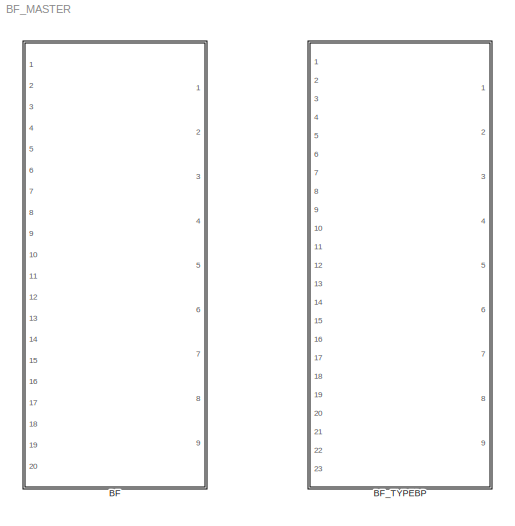
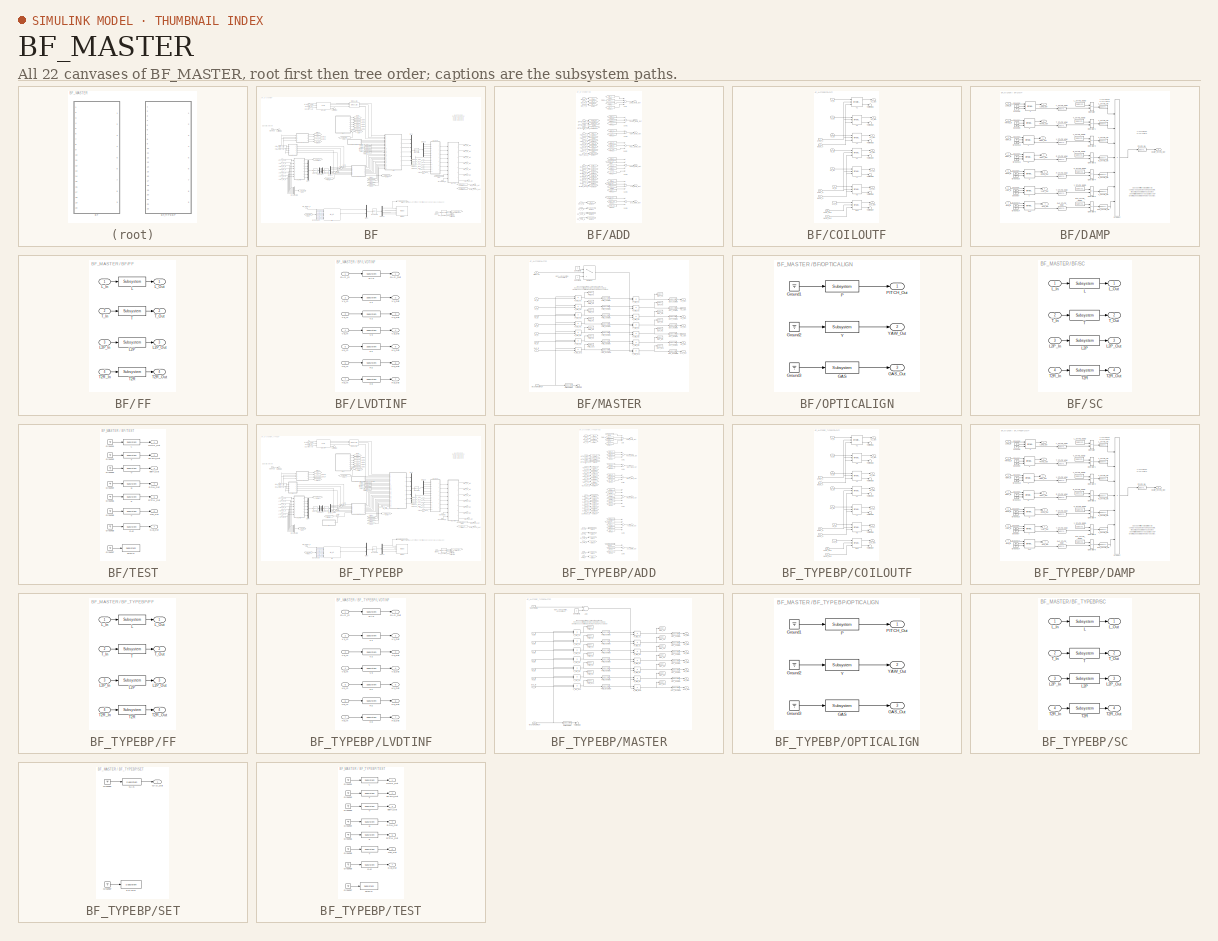
[diagram: thumbnail index - all 22 canvases of the model, root first then tree order]
MODEL BF_MASTER
KIND library
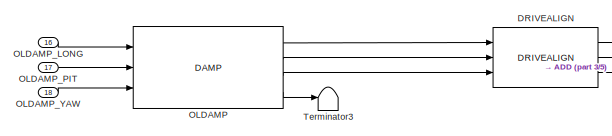
[diagram: BF - part 1/5, top left region]
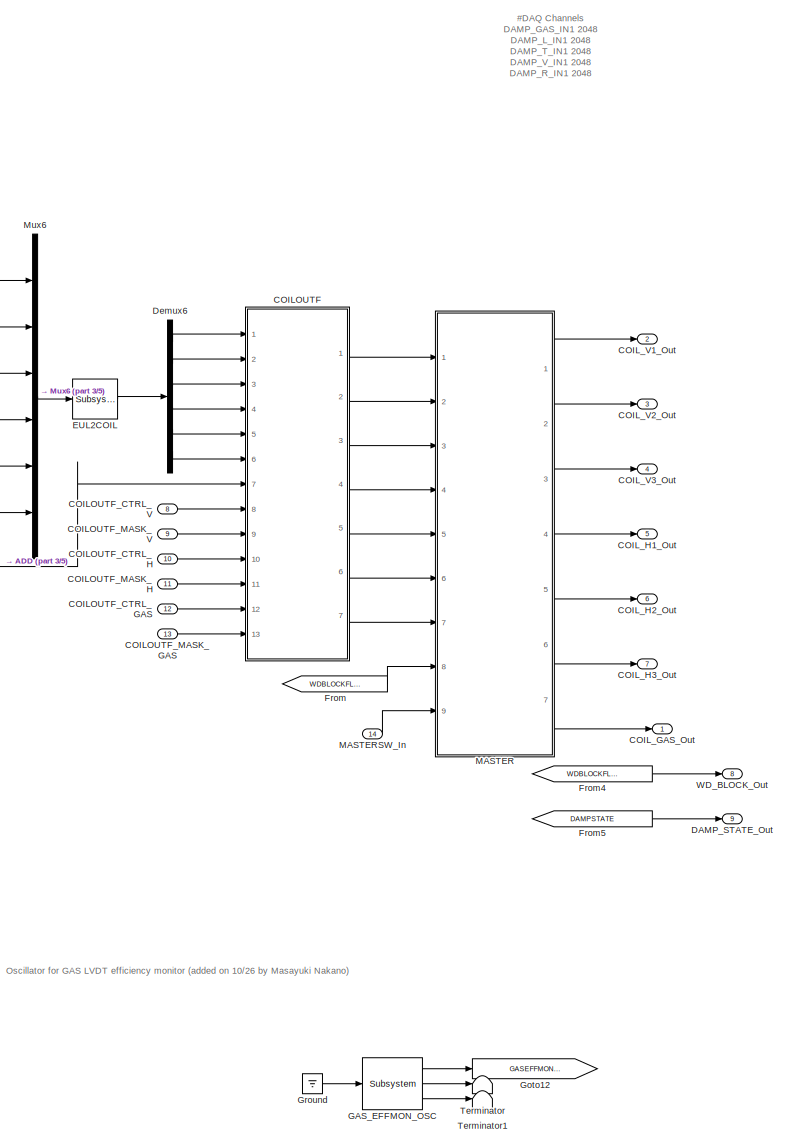
[diagram: BF - part 2/5, right side, full height]
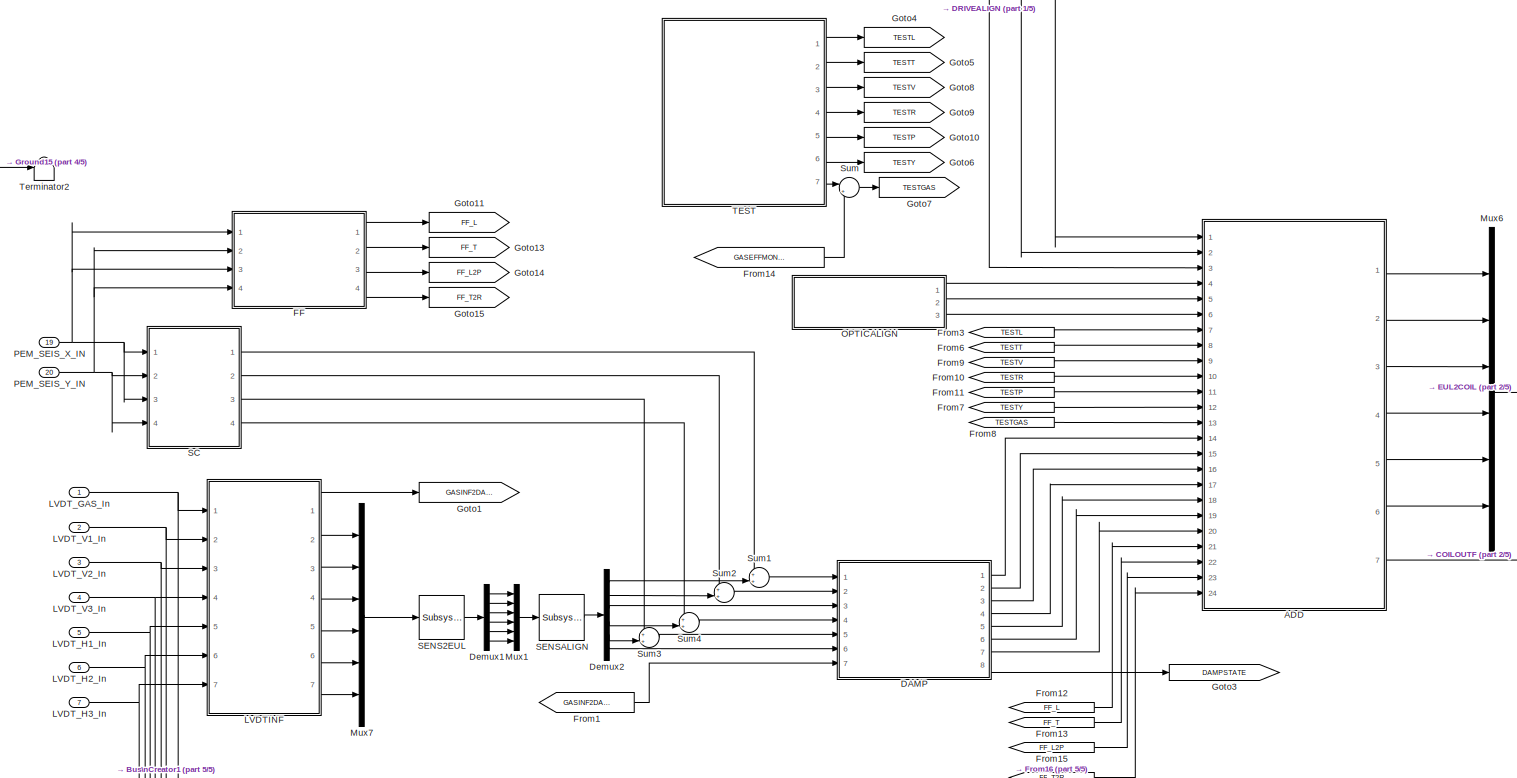
[diagram: BF - part 3/5, central region]
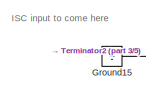
[diagram: BF - part 4/5, top left region]
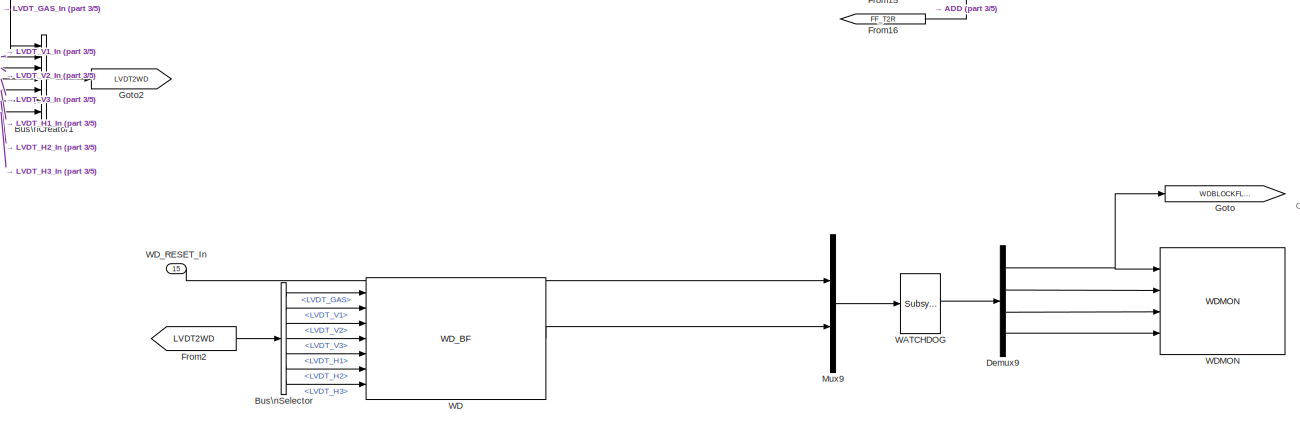
[diagram: BF - part 5/5, bottom center region]
BLOCK [SubSystem] BF
  Ports = [20, 9]
  RequestExecContextInheritance = off
  SID = 1
  Variant = off
BLOCK [SubSystem] BF/ADD
  Ports = [24, 7]
  RequestExecContextInheritance = off
  SID = 497
  Variant = off
BLOCK [Inport] BF/ADD/DAMP_GAS_In
  IconDisplay = Port number
  Port = 20
  SID = 571
BLOCK [Inport] BF/ADD/DAMP_L_In
  IconDisplay = Port number
  Port = 14
  SID = 511
BLOCK [Inport] BF/ADD/DAMP_P_In
  IconDisplay = Port number
  Port = 18
  SID = 561
BLOCK [Inport] BF/ADD/DAMP_R_In
  IconDisplay = Port number
  Port = 17
  SID = 514
BLOCK [Inport] BF/ADD/DAMP_T_In
  IconDisplay = Port number
  Port = 15
  SID = 512
BLOCK [Inport] BF/ADD/DAMP_V_In
  IconDisplay = Port number
  Port = 16
  SID = 513
BLOCK [Inport] BF/ADD/DAMP_Y_In
  IconDisplay = Port number
  Port = 19
  SID = 562
BLOCK [Inport] BF/ADD/FF_L2P_In
  IconDisplay = Port number
  Port = 23
  SID = 757
BLOCK [Inport] BF/ADD/FF_L_In
  IconDisplay = Port number
  Port = 21
  SID = 743
BLOCK [Inport] BF/ADD/FF_T2R_In
  IconDisplay = Port number
  Port = 24
  SID = 761
BLOCK [Inport] BF/ADD/FF_T_In
  IconDisplay = Port number
  Port = 22
  SID = 745
BLOCK [From] BF/ADD/From1
  CloseFcn = tagdialog Close
  GotoTag = TEST_L
  SID = 515
BLOCK [From] BF/ADD/From10
  CloseFcn = tagdialog Close
  GotoTag = DAMP_Y
  SID = 516
BLOCK [From] BF/ADD/From11
  CloseFcn = tagdialog Close
  GotoTag = OPTICALIGN_Y
  SID = 517
BLOCK [From] BF/ADD/From12
  CloseFcn = tagdialog Close
  GotoTag = TEST_R
  SID = 518
BLOCK [From] BF/ADD/From13
  CloseFcn = tagdialog Close
  GotoTag = DAMP_R
  SID = 519
BLOCK [From] BF/ADD/From14
  CloseFcn = tagdialog Close
  GotoTag = TEST_V
  SID = 520
BLOCK [From] BF/ADD/From15
  CloseFcn = tagdialog Close
  GotoTag = DAMP_V
  SID = 521
BLOCK [From] BF/ADD/From16
  CloseFcn = tagdialog Close
  GotoTag = TEST_T
  SID = 522
BLOCK [From] BF/ADD/From17
  CloseFcn = tagdialog Close
  GotoTag = DAMP_T
  SID = 523
BLOCK [From] BF/ADD/From18
  CloseFcn = tagdialog Close
  GotoTag = DAMP_GAS
  SID = 565
BLOCK [From] BF/ADD/From19
  CloseFcn = tagdialog Close
  GotoTag = OPTICALIGN_GAS
  SID = 566
BLOCK [From] BF/ADD/From2
  CloseFcn = tagdialog Close
  GotoTag = ISC_L
  SID = 524
BLOCK [From] BF/ADD/From20
  CloseFcn = tagdialog Close
  GotoTag = TEST_GAS
  SID = 567
BLOCK [From] BF/ADD/From21
  CloseFcn = tagdialog Close
  GotoTag = FF_L
  SID = 747
BLOCK [From] BF/ADD/From22
  CloseFcn = tagdialog Close
  GotoTag = FF_T
  SID = 748
BLOCK [From] BF/ADD/From23
  CloseFcn = tagdialog Close
  GotoTag = FF_T2R
  SID = 759
BLOCK [From] BF/ADD/From24
  CloseFcn = tagdialog Close
  GotoTag = FF_L2P
  SID = 760
BLOCK [From] BF/ADD/From3
  CloseFcn = tagdialog Close
  GotoTag = DAMP_L
  SID = 525
BLOCK [From] BF/ADD/From4
  CloseFcn = tagdialog Close
  GotoTag = TEST_P
  SID = 526
BLOCK [From] BF/ADD/From5
  CloseFcn = tagdialog Close
  GotoTag = ISC_P
  SID = 527
BLOCK [From] BF/ADD/From6
  CloseFcn = tagdialog Close
  GotoTag = DAMP_P
  SID = 528
BLOCK [From] BF/ADD/From7
  CloseFcn = tagdialog Close
  GotoTag = OPTICALIGN_P
  SID = 529
BLOCK [From] BF/ADD/From8
  CloseFcn = tagdialog Close
  GotoTag = TEST_Y
  SID = 530
BLOCK [From] BF/ADD/From9
  CloseFcn = tagdialog Close
  GotoTag = ISC_Y
  SID = 531
BLOCK [Outport] BF/ADD/GAS_Main_Out
  IconDisplay = Port number
  Port = 7
  SID = 570
BLOCK [Goto] BF/ADD/Goto
  GotoTag = ISC_L
  SID = 532
BLOCK [Goto] BF/ADD/Goto1
  GotoTag = ISC_P
  SID = 533
BLOCK [Goto] BF/ADD/Goto10
  GotoTag = TEST_V
  SID = 534
BLOCK [Goto] BF/ADD/Goto11
  GotoTag = DAMP_V
  SID = 535
BLOCK [Goto] BF/ADD/Goto12
  GotoTag = DAMP_L
  SID = 536
BLOCK [Goto] BF/ADD/Goto13
  GotoTag = DAMP_P
  SID = 537
BLOCK [Goto] BF/ADD/Goto14
  GotoTag = DAMP_Y
  SID = 538
BLOCK [Goto] BF/ADD/Goto15
  GotoTag = DAMP_T
  SID = 539
BLOCK [Goto] BF/ADD/Goto16
  GotoTag = DAMP_R
  SID = 540
BLOCK [Goto] BF/ADD/Goto17
  GotoTag = TEST_GAS
  SID = 563
BLOCK [Goto] BF/ADD/Goto18
  GotoTag = DAMP_GAS
  SID = 564
BLOCK [Goto] BF/ADD/Goto19
  GotoTag = OPTICALIGN_GAS
  SID = 572
BLOCK [Goto] BF/ADD/Goto2
  GotoTag = ISC_Y
  SID = 541
BLOCK [Goto] BF/ADD/Goto20
  GotoTag = FF_L
  SID = 744
BLOCK [Goto] BF/ADD/Goto21
  GotoTag = FF_T
  SID = 746
BLOCK [Goto] BF/ADD/Goto22
  GotoTag = FF_L2P
  SID = 758
BLOCK [Goto] BF/ADD/Goto23
  GotoTag = FF_T2R
  SID = 762
BLOCK [Goto] BF/ADD/Goto3
  GotoTag = TEST_L
  SID = 542
BLOCK [Goto] BF/ADD/Goto4
  GotoTag = OPTICALIGN_P
  SID = 543
BLOCK [Goto] BF/ADD/Goto5
  GotoTag = OPTICALIGN_Y
  SID = 544
BLOCK [Goto] BF/ADD/Goto6
  GotoTag = TEST_P
  SID = 545
BLOCK [Goto] BF/ADD/Goto7
  GotoTag = TEST_Y
  SID = 546
BLOCK [Goto] BF/ADD/Goto8
  GotoTag = TEST_T
  SID = 547
BLOCK [Goto] BF/ADD/Goto9
  GotoTag = TEST_R
  SID = 548
BLOCK [Inport] BF/ADD/ISC_L_In
  IconDisplay = Port number
  SID = 498
BLOCK [Inport] BF/ADD/ISC_P_In
  IconDisplay = Port number
  Port = 2
  SID = 499
BLOCK [Inport] BF/ADD/ISC_Y_In
  IconDisplay = Port number
  Port = 3
  SID = 500
BLOCK [Outport] BF/ADD/LONG_MAIN_Out
  IconDisplay = Port number
  SID = 555
BLOCK [Inport] BF/ADD/OPTICALIGN_GAS_In
  IconDisplay = Port number
  Port = 6
  SID = 503
BLOCK [Inport] BF/ADD/OPTICALIGN_P_In
  IconDisplay = Port number
  Port = 4
  SID = 501
BLOCK [Inport] BF/ADD/OPTICALIGN_Y_In
  IconDisplay = Port number
  Port = 5
  SID = 502
BLOCK [Outport] BF/ADD/PITCH_MAIN_Out
  IconDisplay = Port number
  Port = 5
  SID = 559
BLOCK [Outport] BF/ADD/ROLL_MAIN_Out
  IconDisplay = Port number
  Port = 4
  SID = 558
BLOCK [Sum] BF/ADD/Sum
  InputSameDT = off
  Inputs = ++++
  OutDataTypeStr = Inherit: Inherit via internal rule
  Ports = [4, 1]
  SID = 549
  SaturateOnIntegerOverflow = off
BLOCK [Sum] BF/ADD/Sum1
  InputSameDT = off
  Inputs = +++
  OutDataTypeStr = Inherit: Inherit via internal rule
  Ports = [3, 1]
  SID = 550
  SaturateOnIntegerOverflow = off
BLOCK [Sum] BF/ADD/Sum2
  InputSameDT = off
  OutDataTypeStr = Inherit: Inherit via internal rule
  Ports = [2, 1]
  SID = 551
  SaturateOnIntegerOverflow = off
BLOCK [Sum] BF/ADD/Sum3
  InputSameDT = off
  Inputs = ++++
  OutDataTypeStr = Inherit: Inherit via internal rule
  Ports = [4, 1]
  SID = 552
  SaturateOnIntegerOverflow = off
BLOCK [Sum] BF/ADD/Sum4
  InputSameDT = off
  Inputs = +++++
  OutDataTypeStr = Inherit: Inherit via internal rule
  Ports = [5, 1]
  SID = 553
  SaturateOnIntegerOverflow = off
BLOCK [Sum] BF/ADD/Sum5
  InputSameDT = off
  Inputs = +++
  OutDataTypeStr = Inherit: Inherit via internal rule
  Ports = [3, 1]
  SID = 554
  SaturateOnIntegerOverflow = off
BLOCK [Sum] BF/ADD/Sum6
  InputSameDT = off
  Inputs = +++
  OutDataTypeStr = Inherit: Inherit via internal rule
  Ports = [3, 1]
  SID = 569
  SaturateOnIntegerOverflow = off
BLOCK [Inport] BF/ADD/TEST_GAS_In
  IconDisplay = Port number
  Port = 13
  SID = 510
BLOCK [Inport] BF/ADD/TEST_L_In
  IconDisplay = Port number
  Port = 7
  SID = 504
BLOCK [Inport] BF/ADD/TEST_P_In
  IconDisplay = Port number
  Port = 11
  SID = 508
BLOCK [Inport] BF/ADD/TEST_R_In
  IconDisplay = Port number
  Port = 10
  SID = 507
BLOCK [Inport] BF/ADD/TEST_T_In
  IconDisplay = Port number
  Port = 8
  SID = 505
BLOCK [Inport] BF/ADD/TEST_V_In
  IconDisplay = Port number
  Port = 9
  SID = 506
BLOCK [Inport] BF/ADD/TEST_Y_In
  IconDisplay = Port number
  Port = 12
  SID = 509
BLOCK [Outport] BF/ADD/TRANS_MAIN_Out
  IconDisplay = Port number
  Port = 2
  SID = 556
BLOCK [Outport] BF/ADD/VERT_MAIN_Out
  IconDisplay = Port number
  Port = 3
  SID = 557
BLOCK [Outport] BF/ADD/YAW_MAIN_Out
  IconDisplay = Port number
  Port = 6
  SID = 560
BLOCK [BusCreator] BF/Bus\nCreator1
  DisplayOption = bar
  InheritFromInputs = on
  Inputs = 'LVDT_GAS','LVDT_V1','LVDT_V2','LVDT_V3','LVDT_H1','LVDT_H2','LVDT_H3'
  Ports = [7, 1]
  SID = 76
BLOCK [BusSelector] BF/Bus\nSelector
  OutputSignals = LVDT_GAS,LVDT_V1,LVDT_V2,LVDT_V3,LVDT_H1,LVDT_H2,LVDT_H3
  Ports = [1, 7]
  SID = 77
BLOCK [SubSystem] BF/COILOUTF
  Ports = [13, 7]
  RequestExecContextInheritance = off
  SID = 113
  Variant = off
BLOCK [Inport] BF/COILOUTF/CTRL_GAS
  IconDisplay = Port number
  Port = 12
  SID = 688
BLOCK [Inport] BF/COILOUTF/CTRL_H
  IconDisplay = Port number
  Port = 10
  SID = 686
BLOCK [Inport] BF/COILOUTF/CTRL_V
  IconDisplay = Port number
  Port = 8
  SID = 603
BLOCK [Reference] BF/COILOUTF/GAS  REF=cdsFiltCtrl/IIR FM with control
  AttributesFormatString = %<Tag>
  Description = cdsFiltCntrl is the standard IIR filter module (exactly the same as cdsFilt) but with added control data output 'Ctrl'. Filter module digital signal output appears on the first output, which is called 'Val'. 'Ctrl' output has a bit pattern encoding the state of filter's on/off switches (FM1 through FM10). The bit values are:\n                                                                        ...<+4621ch>  <repeated x28 — deduplicated; at blocks: GAS, H1, H2, H3, V1, V2, V3, L, P, R, T, V, Y>
  Ports = [3, 2]
  SID = 599
  SourceBlock = cdsFiltCtrl/IIR FM with control
  SourceType = SubSystem
  Tag = cdsFiltCtrl
BLOCK [Inport] BF/COILOUTF/GAS_IN
  IconDisplay = Port number
  Port = 7
  SID = 598
BLOCK [Outport] BF/COILOUTF/GAS_Out
  IconDisplay = Port number
  Port = 7
  SID = 602
BLOCK [Reference] BF/COILOUTF/H1  REF=cdsFiltCtrl/IIR FM with control
  AttributesFormatString = %<Tag>
  Ports = [3, 2]
  SID = 381
  SourceBlock = cdsFiltCtrl/IIR FM with control
  SourceType = SubSystem
  Tag = cdsFiltCtrl
BLOCK [Inport] BF/COILOUTF/H1_IN
  IconDisplay = Port number
  Port = 4
  SID = 379
BLOCK [Outport] BF/COILOUTF/H1_Out
  IconDisplay = Port number
  Port = 4
  SID = 383
BLOCK [Reference] BF/COILOUTF/H2  REF=cdsFiltCtrl/IIR FM with control
  AttributesFormatString = %<Tag>
  Ports = [3, 2]
  SID = 589
  SourceBlock = cdsFiltCtrl/IIR FM with control
  SourceType = SubSystem
  Tag = cdsFiltCtrl
BLOCK [Inport] BF/COILOUTF/H2_IN1
  IconDisplay = Port number
  Port = 5
  SID = 588
BLOCK [Outport] BF/COILOUTF/H2_Out
  IconDisplay = Port number
  Port = 5
  SID = 592
BLOCK [Reference] BF/COILOUTF/H3  REF=cdsFiltCtrl/IIR FM with control
  AttributesFormatString = %<Tag>
  Ports = [3, 2]
  SID = 594
  SourceBlock = cdsFiltCtrl/IIR FM with control
  SourceType = SubSystem
  Tag = cdsFiltCtrl
BLOCK [Inport] BF/COILOUTF/H3_IN
  IconDisplay = Port number
  Port = 6
  SID = 593
BLOCK [Outport] BF/COILOUTF/H3_Out
  IconDisplay = Port number
  Port = 6
  SID = 597
BLOCK [Inport] BF/COILOUTF/MASK_GAS
  IconDisplay = Port number
  Port = 13
  SID = 689
BLOCK [Inport] BF/COILOUTF/MASK_H
  IconDisplay = Port number
  Port = 11
  SID = 687
BLOCK [Inport] BF/COILOUTF/MASK_V
  IconDisplay = Port number
  Port = 9
  SID = 604
BLOCK [Terminator] BF/COILOUTF/Terminator1
  SID = 123
BLOCK [Terminator] BF/COILOUTF/Terminator2
  SID = 124
BLOCK [Terminator] BF/COILOUTF/Terminator3
  SID = 125
BLOCK [Terminator] BF/COILOUTF/Terminator4
  SID = 382
BLOCK [Terminator] BF/COILOUTF/Terminator5
  SID = 591
BLOCK [Terminator] BF/COILOUTF/Terminator6
  SID = 596
BLOCK [Terminator] BF/COILOUTF/Terminator7
  SID = 601
BLOCK [Reference] BF/COILOUTF/V1  REF=cdsFiltCtrl/IIR FM with control
  AttributesFormatString = %<Tag>
  Ports = [3, 2]
  SID = 120
  SourceBlock = cdsFiltCtrl/IIR FM with control
  SourceType = SubSystem
  Tag = cdsFiltCtrl
BLOCK [Inport] BF/COILOUTF/V1_IN
  IconDisplay = Port number
  SID = 114
BLOCK [Outport] BF/COILOUTF/V1_Out
  IconDisplay = Port number
  SID = 126
BLOCK [Reference] BF/COILOUTF/V2  REF=cdsFiltCtrl/IIR FM with control
  AttributesFormatString = %<Tag>
  Ports = [3, 2]
  SID = 121
  SourceBlock = cdsFiltCtrl/IIR FM with control
  SourceType = SubSystem
  Tag = cdsFiltCtrl
BLOCK [Inport] BF/COILOUTF/V2_IN
  IconDisplay = Port number
  Port = 2
  SID = 115
BLOCK [Outport] BF/COILOUTF/V2_Out
  IconDisplay = Port number
  Port = 2
  SID = 127
BLOCK [Reference] BF/COILOUTF/V3  REF=cdsFiltCtrl/IIR FM with control
  AttributesFormatString = %<Tag>
  Ports = [3, 2]
  SID = 122
  SourceBlock = cdsFiltCtrl/IIR FM with control
  SourceType = SubSystem
  Tag = cdsFiltCtrl
BLOCK [Inport] BF/COILOUTF/V3_IN
  IconDisplay = Port number
  Port = 3
  SID = 116
BLOCK [Outport] BF/COILOUTF/V3_Out
  IconDisplay = Port number
  Port = 3
  SID = 128
BLOCK [Inport] BF/COILOUTF_CTRL_GAS
  IconDisplay = Port number
  Port = 12
  SID = 692
BLOCK [Inport] BF/COILOUTF_CTRL_H
  IconDisplay = Port number
  Port = 10
  SID = 690
BLOCK [Inport] BF/COILOUTF_CTRL_V
  IconDisplay = Port number
  Port = 8
  SID = 314
BLOCK [Inport] BF/COILOUTF_MASK_GAS
  IconDisplay = Port number
  Port = 13
  SID = 693
BLOCK [Inport] BF/COILOUTF_MASK_H
  IconDisplay = Port number
  Port = 11
  SID = 691
BLOCK [Inport] BF/COILOUTF_MASK_V
  IconDisplay = Port number
  Port = 9
  SID = 315
BLOCK [Outport] BF/COIL_GAS_Out
  IconDisplay = Port number
  SID = 672
BLOCK [Outport] BF/COIL_H1_Out
  IconDisplay = Port number
  Port = 5
  SID = 320
BLOCK [Outport] BF/COIL_H2_Out
  IconDisplay = Port number
  Port = 6
  SID = 321
BLOCK [Outport] BF/COIL_H3_Out
  IconDisplay = Port number
  Port = 7
  SID = 392
BLOCK [Outport] BF/COIL_V1_Out
  IconDisplay = Port number
  Port = 2
  SID = 230
BLOCK [Outport] BF/COIL_V2_Out
  IconDisplay = Port number
  Port = 3
  SID = 231
BLOCK [Outport] BF/COIL_V3_Out
  IconDisplay = Port number
  Port = 4
  SID = 232
BLOCK [SubSystem] BF/DAMP
  Ports = [7, 8]
  RequestExecContextInheritance = off
  SID = 394
  Variant = off
BLOCK [Outport] BF/DAMP/DAMP_STATE_Out
  IconDisplay = Port number
  Port = 8
  SID = 469
BLOCK [Reference] BF/DAMP/GAS  REF=cdsFiltCtrl/IIR FM with control
  AttributesFormatString = %<Tag>
  Ports = [3, 2]
  SID = 465
  SourceBlock = cdsFiltCtrl/IIR FM with control
  SourceType = SubSystem
  Tag = cdsFiltCtrl
BLOCK [Inport] BF/DAMP/GAS_In
  IconDisplay = Port number
  Port = 7
  SID = 461
BLOCK [Outport] BF/DAMP/GAS_Out
  IconDisplay = Port number
  Port = 7
  SID = 456
BLOCK [Reference] BF/DAMP/GAS_STATE_GOOD  REF=cdsEpicsIn/Subsystem
  AttributesFormatString = %<Tag>
  Description = Purpose:                                                                              \nCreate an EPICS input channel connection to the FE realtime controls.                 \n                                                                                      \nOperation:                                                                            \nOutputs value from an EPICS ai record. Value is ...<+266ch>  <repeated x14 — deduplicated; at blocks: GAS_STATE_GOOD, L_STATE_GOOD, P_STATE_GOOD, R_STATE_GOOD, T_STATE_GOOD, V_STATE_GOOD, Y_STATE_GOOD>
  Ports = [0, 1]
  SID = 466
  SourceBlock = cdsEpicsIn/Subsystem
  SourceType = SubSystem
  Tag = cdsEpicsIn
BLOCK [Reference] BF/DAMP/GAS_STATE_NOW  REF=cdsEpicsOut/Subsystem
  AttributesFormatString = %<Tag>
  Description = Purpose:                                          \nOutput a FE signal to an EPICS channel.           \n                                                  \nOperation:                                        \nTakes input value and passes it to EPICS record.  \n                                                  \nUsage:                                            \nName the part with the desired EPICS...<+14ch>  <repeated x60 — deduplicated; at blocks: GAS_STATE_NOW, GAS_STATE_OK, L_STATE_NOW, L_STATE_OK, P_STATE_NOW, P_STATE_OK, R_STATE_NOW, R_STATE_OK, STATE_OK, T_STATE_NOW, T_STATE_OK, V_STATE_NOW, V_STATE_OK, Y_STATE_NOW, Y_STATE_OK, OUT_GASMON, +14 more>
  Ports = [1, 1]
  SID = 467
  SourceBlock = cdsEpicsOut/Subsystem
  SourceType = SubSystem
  Tag = cdsEpicsOutput
BLOCK [Reference] BF/DAMP/GAS_STATE_OK  REF=cdsEpicsOut/Subsystem
  AttributesFormatString = %<Tag>
  Ports = [1, 1]
  SID = 468
  SourceBlock = cdsEpicsOut/Subsystem
  SourceType = SubSystem
  Tag = cdsEpicsOutput
BLOCK [Ground] BF/DAMP/Ground1
  SID = 406
BLOCK [Ground] BF/DAMP/Ground10
  SID = 407
BLOCK [Ground] BF/DAMP/Ground11
  SID = 408
BLOCK [Ground] BF/DAMP/Ground12
  SID = 409
BLOCK [Ground] BF/DAMP/Ground13
  SID = 462
BLOCK [Ground] BF/DAMP/Ground14
  SID = 463
BLOCK [Ground] BF/DAMP/Ground2
  SID = 410
BLOCK [Ground] BF/DAMP/Ground3
  SID = 411
BLOCK [Ground] BF/DAMP/Ground4
  SID = 412
BLOCK [Ground] BF/DAMP/Ground5
  SID = 413
BLOCK [Ground] BF/DAMP/Ground6
  SID = 414
BLOCK [Ground] BF/DAMP/Ground7
  SID = 415
BLOCK [Ground] BF/DAMP/Ground8
  SID = 416
BLOCK [Ground] BF/DAMP/Ground9
  SID = 417
BLOCK [Reference] BF/DAMP/L  REF=cdsFiltCtrl/IIR FM with control
  AttributesFormatString = %<Tag>
  Ports = [3, 2]
  SID = 418
  SourceBlock = cdsFiltCtrl/IIR FM with control
  SourceType = SubSystem
  Tag = cdsFiltCtrl
BLOCK [Inport] BF/DAMP/LONG_In
  IconDisplay = Port number
  SID = 400
BLOCK [Outport] BF/DAMP/LONG_Out
  IconDisplay = Port number
  SID = 450
BLOCK [Reference] BF/DAMP/L_STATE_GOOD  REF=cdsEpicsIn/Subsystem
  AttributesFormatString = %<Tag>
  Ports = [0, 1]
  SID = 419
  SourceBlock = cdsEpicsIn/Subsystem
  SourceType = SubSystem
  Tag = cdsEpicsIn
BLOCK [Reference] BF/DAMP/L_STATE_NOW  REF=cdsEpicsOut/Subsystem
  AttributesFormatString = %<Tag>
  Ports = [1, 1]
  SID = 420
  SourceBlock = cdsEpicsOut/Subsystem
  SourceType = SubSystem
  Tag = cdsEpicsOutput
BLOCK [Reference] BF/DAMP/L_STATE_OK  REF=cdsEpicsOut/Subsystem
  AttributesFormatString = %<Tag>
  Ports = [1, 1]
  SID = 421
  SourceBlock = cdsEpicsOut/Subsystem
  SourceType = SubSystem
  Tag = cdsEpicsOutput
BLOCK [RelationalOperator] BF/DAMP/Operator
  InputSameDT = off
  Operator = ==
  OutDataTypeStr = boolean
  Ports = [2, 1]
  SID = 422
BLOCK [RelationalOperator] BF/DAMP/Operator1
  InputSameDT = off
  Operator = ==
  OutDataTypeStr = boolean
  Ports = [2, 1]
  SID = 423
BLOCK [RelationalOperator] BF/DAMP/Operator2
  InputSameDT = off
  Operator = ==
  OutDataTypeStr = boolean
  Ports = [2, 1]
  SID = 424
BLOCK [RelationalOperator] BF/DAMP/Operator3
  InputSameDT = off
  Operator = ==
  OutDataTypeStr = boolean
  Ports = [2, 1]
  SID = 425
BLOCK [RelationalOperator] BF/DAMP/Operator4
  InputSameDT = off
  Operator = ==
  OutDataTypeStr = boolean
  Ports = [2, 1]
  SID = 426
BLOCK [RelationalOperator] BF/DAMP/Operator5
  InputSameDT = off
  Operator = ==
  OutDataTypeStr = boolean
  Ports = [2, 1]
  SID = 427
BLOCK [RelationalOperator] BF/DAMP/Operator6
  InputSameDT = off
  Operator = ==
  OutDataTypeStr = boolean
  Ports = [2, 1]
  SID = 464
BLOCK [Reference] BF/DAMP/P  REF=cdsFiltCtrl/IIR FM with control
  AttributesFormatString = %<Tag>
  Ports = [3, 2]
  SID = 428
  SourceBlock = cdsFiltCtrl/IIR FM with control
  SourceType = SubSystem
  Tag = cdsFiltCtrl
BLOCK [Inport] BF/DAMP/PITCH_In
  IconDisplay = Port number
  Port = 5
  SID = 404
BLOCK [Outport] BF/DAMP/PITCH_Out
  IconDisplay = Port number
  Port = 5
  SID = 454
BLOCK [Reference] BF/DAMP/P_STATE_GOOD  REF=cdsEpicsIn/Subsystem
  AttributesFormatString = %<Tag>
  Ports = [0, 1]
  SID = 429
  SourceBlock = cdsEpicsIn/Subsystem
  SourceType = SubSystem
  Tag = cdsEpicsIn
BLOCK [Reference] BF/DAMP/P_STATE_NOW  REF=cdsEpicsOut/Subsystem
  AttributesFormatString = %<Tag>
  Ports = [1, 1]
  SID = 430
  SourceBlock = cdsEpicsOut/Subsystem
  SourceType = SubSystem
  Tag = cdsEpicsOutput
BLOCK [Reference] BF/DAMP/P_STATE_OK  REF=cdsEpicsOut/Subsystem
  AttributesFormatString = %<Tag>
  Ports = [1, 1]
  SID = 431
  SourceBlock = cdsEpicsOut/Subsystem
  SourceType = SubSystem
  Tag = cdsEpicsOutput
BLOCK [Product] BF/DAMP/Product
  InputSameDT = off
  Inputs = 7
  OutDataTypeStr = Inherit: Inherit via internal rule
  Ports = [7, 1]
  SID = 432
  SaturateOnIntegerOverflow = off
BLOCK [Reference] BF/DAMP/R  REF=cdsFiltCtrl/IIR FM with control
  AttributesFormatString = %<Tag>
  Ports = [3, 2]
  SID = 433
  SourceBlock = cdsFiltCtrl/IIR FM with control
  SourceType = SubSystem
  Tag = cdsFiltCtrl
BLOCK [Inport] BF/DAMP/ROLL_In
  IconDisplay = Port number
  Port = 4
  SID = 403
BLOCK [Outport] BF/DAMP/ROLL_Out
  IconDisplay = Port number
  Port = 4
  SID = 453
BLOCK [Reference] BF/DAMP/R_STATE_GOOD  REF=cdsEpicsIn/Subsystem
  AttributesFormatString = %<Tag>
  Ports = [0, 1]
  SID = 434
  SourceBlock = cdsEpicsIn/Subsystem
  SourceType = SubSystem
  Tag = cdsEpicsIn
BLOCK [Reference] BF/DAMP/R_STATE_NOW  REF=cdsEpicsOut/Subsystem
  AttributesFormatString = %<Tag>
  Ports = [1, 1]
  SID = 435
  SourceBlock = cdsEpicsOut/Subsystem
  SourceType = SubSystem
  Tag = cdsEpicsOutput
BLOCK [Reference] BF/DAMP/R_STATE_OK  REF=cdsEpicsOut/Subsystem
  AttributesFormatString = %<Tag>
  Ports = [1, 1]
  SID = 436
  SourceBlock = cdsEpicsOut/Subsystem
  SourceType = SubSystem
  Tag = cdsEpicsOutput
BLOCK [Reference] BF/DAMP/STATE_OK  REF=cdsEpicsOut/Subsystem
  AttributesFormatString = %<Tag>
  Ports = [1, 1]
  SID = 437
  SourceBlock = cdsEpicsOut/Subsystem
  SourceType = SubSystem
  Tag = cdsEpicsOutput
BLOCK [Reference] BF/DAMP/T  REF=cdsFiltCtrl/IIR FM with control
  AttributesFormatString = %<Tag>
  Ports = [3, 2]
  SID = 438
  SourceBlock = cdsFiltCtrl/IIR FM with control
  SourceType = SubSystem
  Tag = cdsFiltCtrl
BLOCK [Inport] BF/DAMP/TRANS_In
  IconDisplay = Port number
  Port = 2
  SID = 401
BLOCK [Outport] BF/DAMP/TRANS_Out
  IconDisplay = Port number
  Port = 2
  SID = 451
BLOCK [Reference] BF/DAMP/T_STATE_GOOD  REF=cdsEpicsIn/Subsystem
  AttributesFormatString = %<Tag>
  Ports = [0, 1]
  SID = 439
  SourceBlock = cdsEpicsIn/Subsystem
  SourceType = SubSystem
  Tag = cdsEpicsIn
BLOCK [Reference] BF/DAMP/T_STATE_NOW  REF=cdsEpicsOut/Subsystem
  AttributesFormatString = %<Tag>
  Ports = [1, 1]
  SID = 440
  SourceBlock = cdsEpicsOut/Subsystem
  SourceType = SubSystem
  Tag = cdsEpicsOutput
BLOCK [Reference] BF/DAMP/T_STATE_OK  REF=cdsEpicsOut/Subsystem
  AttributesFormatString = %<Tag>
  Ports = [1, 1]
  SID = 441
  SourceBlock = cdsEpicsOut/Subsystem
  SourceType = SubSystem
  Tag = cdsEpicsOutput
BLOCK [Reference] BF/DAMP/V  REF=cdsFiltCtrl/IIR FM with control
  AttributesFormatString = %<Tag>
  Ports = [3, 2]
  SID = 442
  SourceBlock = cdsFiltCtrl/IIR FM with control
  SourceType = SubSystem
  Tag = cdsFiltCtrl
BLOCK [Inport] BF/DAMP/VERT_In
  IconDisplay = Port number
  Port = 3
  SID = 402
BLOCK [Outport] BF/DAMP/VERT_Out
  IconDisplay = Port number
  Port = 3
  SID = 452
BLOCK [Reference] BF/DAMP/V_STATE_GOOD  REF=cdsEpicsIn/Subsystem
  AttributesFormatString = %<Tag>
  Ports = [0, 1]
  SID = 443
  SourceBlock = cdsEpicsIn/Subsystem
  SourceType = SubSystem
  Tag = cdsEpicsIn
BLOCK [Reference] BF/DAMP/V_STATE_NOW  REF=cdsEpicsOut/Subsystem
  AttributesFormatString = %<Tag>
  Ports = [1, 1]
  SID = 444
  SourceBlock = cdsEpicsOut/Subsystem
  SourceType = SubSystem
  Tag = cdsEpicsOutput
BLOCK [Reference] BF/DAMP/V_STATE_OK  REF=cdsEpicsOut/Subsystem
  AttributesFormatString = %<Tag>
  Ports = [1, 1]
  SID = 445
  SourceBlock = cdsEpicsOut/Subsystem
  SourceType = SubSystem
  Tag = cdsEpicsOutput
BLOCK [Reference] BF/DAMP/Y  REF=cdsFiltCtrl/IIR FM with control
  AttributesFormatString = %<Tag>
  Ports = [3, 2]
  SID = 446
  SourceBlock = cdsFiltCtrl/IIR FM with control
  SourceType = SubSystem
  Tag = cdsFiltCtrl
BLOCK [Inport] BF/DAMP/YAW_In
  IconDisplay = Port number
  Port = 6
  SID = 405
BLOCK [Outport] BF/DAMP/YAW_Out
  IconDisplay = Port number
  Port = 6
  SID = 455
BLOCK [Reference] BF/DAMP/Y_STATE_GOOD  REF=cdsEpicsIn/Subsystem
  AttributesFormatString = %<Tag>
  Ports = [0, 1]
  SID = 447
  SourceBlock = cdsEpicsIn/Subsystem
  SourceType = SubSystem
  Tag = cdsEpicsIn
BLOCK [Reference] BF/DAMP/Y_STATE_NOW  REF=cdsEpicsOut/Subsystem
  AttributesFormatString = %<Tag>
  Ports = [1, 1]
  SID = 448
  SourceBlock = cdsEpicsOut/Subsystem
  SourceType = SubSystem
  Tag = cdsEpicsOutput
BLOCK [Reference] BF/DAMP/Y_STATE_OK  REF=cdsEpicsOut/Subsystem
  AttributesFormatString = %<Tag>
  Ports = [1, 1]
  SID = 449
  SourceBlock = cdsEpicsOut/Subsystem
  SourceType = SubSystem
  Tag = cdsEpicsOutput
BLOCK [Outport] BF/DAMP_STATE_Out
  IconDisplay = Port number
  Port = 9
  SID = 674
BLOCK [Reference] BF/DRIVEALIGN  REF=CRYP_IM_MASTER/CRYP_IM_MASTER/DRIVEALIGN
  Ports = [3, 3]
  SID = 730
  SourceBlock = CRYP_IM_MASTER/CRYP_IM_MASTER/DRIVEALIGN
  SourceType = SubSystem
BLOCK [Demux] BF/Demux1
  DisplayOption = bar
  Outputs = 6
  Ports = [1, 6]
  SID = 395
BLOCK [Demux] BF/Demux2
  DisplayOption = bar
  Outputs = 6
  Ports = [1, 6]
  SID = 396
BLOCK [Demux] BF/Demux6
  DisplayOption = bar
  Outputs = 6
  Ports = [1, 6]
  SID = 130
BLOCK [Demux] BF/Demux9
  DisplayOption = bar
  Ports = [1, 4]
  SID = 132
BLOCK [Reference] BF/EUL2COIL  REF=cdsMuxMatrix/Subsystem
  AttributesFormatString = %<Tag>
  Description = ADL=SUS_INMATRIX.adl\nSCRIPT=generate_KisselButton.py 4 5 #CHANNEL# > #TARGET_DIR#/#FULL_PART_NAME#_KB.adl
  Ports = [1, 1]
  SID = 112
  SourceBlock = cdsMuxMatrix/Subsystem
  SourceType = SubSystem
  Tag = cdsMuxMatrix
BLOCK [SubSystem] BF/FF
  AncestorBlock = TYPEBP_MASTER/TYPEBPMASTER_TEST/SF/FF
  Ports = [4, 4]
  RequestExecContextInheritance = off
  SID = 742
  Variant = off
BLOCK [Reference] BF/FF/L  REF=cdsFilt/Subsystem
  AttributesFormatString = %<Tag>
  Description = Purpose:                                                                                                                                                                                                                                  \nStandard CDS IIR filter module.                                                                                                                                     ...<+1302ch>  <repeated x51 — deduplicated; at blocks: L, L2P, T, T2R, GAS, H1, H2, H3, V1, V2, V3, P, Y, R, V>
  Ports = [1, 1]
  SID = 742:246
  SourceBlock = cdsFilt/Subsystem
  SourceType = SubSystem
  Tag = cdsFilt
BLOCK [Reference] BF/FF/L2P  REF=cdsFilt/Subsystem
  AttributesFormatString = %<Tag>
  Ports = [1, 1]
  SID = 742:257
  SourceBlock = cdsFilt/Subsystem
  SourceType = SubSystem
  Tag = cdsFilt
BLOCK [Inport] BF/FF/L2P_In
  IconDisplay = Port number
  Port = 3
  SID = 742:256
BLOCK [Outport] BF/FF/L2P_Out
  IconDisplay = Port number
  Port = 3
  SID = 742:258
BLOCK [Inport] BF/FF/L_In
  IconDisplay = Port number
  SID = 742:244
BLOCK [Outport] BF/FF/L_Out
  IconDisplay = Port number
  SID = 742:248
BLOCK [Reference] BF/FF/T  REF=cdsFilt/Subsystem
  AttributesFormatString = %<Tag>
  Ports = [1, 1]
  SID = 742:247
  SourceBlock = cdsFilt/Subsystem
  SourceType = SubSystem
  Tag = cdsFilt
BLOCK [Reference] BF/FF/T2R  REF=cdsFilt/Subsystem
  AttributesFormatString = %<Tag>
  Ports = [1, 1]
  SID = 742:260
  SourceBlock = cdsFilt/Subsystem
  SourceType = SubSystem
  Tag = cdsFilt
BLOCK [Inport] BF/FF/T2R_In
  IconDisplay = Port number
  Port = 4
  SID = 742:259
BLOCK [Outport] BF/FF/T2R_Out
  IconDisplay = Port number
  Port = 4
  SID = 742:261
BLOCK [Inport] BF/FF/T_In
  IconDisplay = Port number
  Port = 2
  SID = 742:245
BLOCK [Outport] BF/FF/T_Out
  IconDisplay = Port number
  Port = 2
  SID = 742:249
BLOCK [From] BF/From
  GotoTag = WDBLOCKFLAG
  SID = 133
BLOCK [From] BF/From1
  GotoTag = GASINF2DAMP
  SID = 351
BLOCK [From] BF/From10
  GotoTag = TESTR
  SID = 574
BLOCK [From] BF/From11
  GotoTag = TESTP
  SID = 575
BLOCK [From] BF/From12
  GotoTag = FF_L
  SID = 751
BLOCK [From] BF/From13
  GotoTag = FF_T
  SID = 752
BLOCK [From] BF/From14
  GotoTag = GASEFFMON_LO
  SID = 718
BLOCK [From] BF/From15
  GotoTag = FF_L2P
  SID = 756
BLOCK [From] BF/From16
  GotoTag = FF_T2R
  SID = 764
BLOCK [From] BF/From2
  CloseFcn = tagdialog Close
  GotoTag = LVDT2WD
  SID = 134
BLOCK [From] BF/From3
  GotoTag = TESTL
  SID = 369
BLOCK [From] BF/From4
  CloseFcn = tagdialog Close
  GotoTag = WDBLOCKFLAG
  SID = 318
BLOCK [From] BF/From5
  CloseFcn = tagdialog Close
  GotoTag = DAMPSTATE
  SID = 319
BLOCK [From] BF/From6
  GotoTag = TESTT
  SID = 370
BLOCK [From] BF/From7
  GotoTag = TESTY
  SID = 371
BLOCK [From] BF/From8
  GotoTag = TESTGAS
  SID = 372
BLOCK [From] BF/From9
  GotoTag = TESTV
  SID = 573
BLOCK [Reference] BF/GAS_EFFMON_OSC  REF=cdsOsc/Subsystem
  AttributesFormatString = %<Tag>
  Description = Oscillator
  Ports = [1, 3]
  SID = 708
  SourceBlock = cdsOsc/Subsystem
  SourceType = SubSystem
  Tag = cdsOsc
BLOCK [Goto] BF/Goto
  GotoTag = WDBLOCKFLAG
  SID = 157
BLOCK [Goto] BF/Goto1
  GotoTag = GASINF2DAMP
  SID = 350
BLOCK [Goto] BF/Goto10
  GotoTag = TESTP
  SID = 496
BLOCK [Goto] BF/Goto11
  GotoTag = FF_L
  SID = 749
BLOCK [Goto] BF/Goto12
  GotoTag = GASEFFMON_LO
  SID = 713
BLOCK [Goto] BF/Goto13
  GotoTag = FF_T
  SID = 750
BLOCK [Goto] BF/Goto14
  GotoTag = FF_L2P
  SID = 754
BLOCK [Goto] BF/Goto15
  GotoTag = FF_T2R
  SID = 755
BLOCK [Goto] BF/Goto2
  GotoTag = LVDT2WD
  SID = 158
BLOCK [Goto] BF/Goto3
  GotoTag = DAMPSTATE
  SID = 288
BLOCK [Goto] BF/Goto4
  GotoTag = TESTL
  SID = 365
BLOCK [Goto] BF/Goto5
  GotoTag = TESTT
  SID = 366
BLOCK [Goto] BF/Goto6
  GotoTag = TESTY
  SID = 367
BLOCK [Goto] BF/Goto7
  GotoTag = TESTGAS
  SID = 368
BLOCK [Goto] BF/Goto8
  GotoTag = TESTV
  SID = 494
BLOCK [Goto] BF/Goto9
  GotoTag = TESTR
  SID = 495
BLOCK [Ground] BF/Ground
  SID = 721
BLOCK [Ground] BF/Ground15
  SID = 576
BLOCK [SubSystem] BF/LVDTINF
  Ports = [7, 7]
  RequestExecContextInheritance = off
  SID = 159
  Variant = off
BLOCK [Reference] BF/LVDTINF/GAS  REF=cdsFilt/Subsystem
  AttributesFormatString = %<Tag>
  Ports = [1, 1]
  SID = 334
  SourceBlock = cdsFilt/Subsystem
  SourceType = SubSystem
  Tag = cdsFilt
BLOCK [Inport] BF/LVDTINF/GAS_In
  IconDisplay = Port number
  SID = 160
BLOCK [Outport] BF/LVDTINF/GAS_Out
  IconDisplay = Port number
  SID = 172
BLOCK [Reference] BF/LVDTINF/H1  REF=cdsFilt/Subsystem
  AttributesFormatString = %<Tag>
  Ports = [1, 1]
  SID = 678
  SourceBlock = cdsFilt/Subsystem
  SourceType = SubSystem
  Tag = cdsFilt
BLOCK [Inport] BF/LVDTINF/H1_In
  IconDisplay = Port number
  Port = 5
  SID = 675
BLOCK [Outport] BF/LVDTINF/H1_Out
  IconDisplay = Port number
  Port = 5
  SID = 681
BLOCK [Reference] BF/LVDTINF/H2  REF=cdsFilt/Subsystem
  AttributesFormatString = %<Tag>
  Ports = [1, 1]
  SID = 679
  SourceBlock = cdsFilt/Subsystem
  SourceType = SubSystem
  Tag = cdsFilt
BLOCK [Inport] BF/LVDTINF/H2_In
  IconDisplay = Port number
  Port = 6
  SID = 676
BLOCK [Outport] BF/LVDTINF/H2_Out
  IconDisplay = Port number
  Port = 6
  SID = 682
BLOCK [Reference] BF/LVDTINF/H3  REF=cdsFilt/Subsystem
  AttributesFormatString = %<Tag>
  Ports = [1, 1]
  SID = 680
  SourceBlock = cdsFilt/Subsystem
  SourceType = SubSystem
  Tag = cdsFilt
BLOCK [Inport] BF/LVDTINF/H3_In
  IconDisplay = Port number
  Port = 7
  SID = 677
BLOCK [Outport] BF/LVDTINF/H3_Out
  IconDisplay = Port number
  Port = 7
  SID = 683
BLOCK [Reference] BF/LVDTINF/V1  REF=cdsFilt/Subsystem
  AttributesFormatString = %<Tag>
  Ports = [1, 1]
  SID = 276
  SourceBlock = cdsFilt/Subsystem
  SourceType = SubSystem
  Tag = cdsFilt
BLOCK [Inport] BF/LVDTINF/V1_In
  IconDisplay = Port number
  Port = 2
  SID = 161
BLOCK [Outport] BF/LVDTINF/V1_Out
  IconDisplay = Port number
  Port = 2
  SID = 173
BLOCK [Reference] BF/LVDTINF/V2  REF=cdsFilt/Subsystem
  AttributesFormatString = %<Tag>
  Ports = [1, 1]
  SID = 277
  SourceBlock = cdsFilt/Subsystem
  SourceType = SubSystem
  Tag = cdsFilt
BLOCK [Inport] BF/LVDTINF/V2_In
  IconDisplay = Port number
  Port = 3
  SID = 162
BLOCK [Outport] BF/LVDTINF/V2_Out
  IconDisplay = Port number
  Port = 3
  SID = 174
BLOCK [Reference] BF/LVDTINF/V3  REF=cdsFilt/Subsystem
  AttributesFormatString = %<Tag>
  Ports = [1, 1]
  SID = 278
  SourceBlock = cdsFilt/Subsystem
  SourceType = SubSystem
  Tag = cdsFilt
BLOCK [Inport] BF/LVDTINF/V3_In
  IconDisplay = Port number
  Port = 4
  SID = 335
BLOCK [Outport] BF/LVDTINF/V3_Out
  IconDisplay = Port number
  Port = 4
  SID = 336
BLOCK [Inport] BF/LVDT_GAS_In
  IconDisplay = Port number
  SID = 333
BLOCK [Inport] BF/LVDT_H1_In
  IconDisplay = Port number
  Port = 5
  SID = 5
BLOCK [Inport] BF/LVDT_H2_In
  IconDisplay = Port number
  Port = 6
  SID = 6
BLOCK [Inport] BF/LVDT_H3_In
  IconDisplay = Port number
  Port = 7
  SID = 7
BLOCK [Inport] BF/LVDT_V1_In
  IconDisplay = Port number
  Port = 2
  SID = 2
BLOCK [Inport] BF/LVDT_V2_In
  IconDisplay = Port number
  Port = 3
  SID = 3
BLOCK [Inport] BF/LVDT_V3_In
  IconDisplay = Port number
  Port = 4
  SID = 4
BLOCK [SubSystem] BF/MASTER
  Ports = [9, 7]
  RequestExecContextInheritance = off
  SID = 605
  Variant = off
BLOCK [Switch] BF/MASTER/Choice1
  Criteria = u2 ~= 0
  InputSameDT = off
  SID = 614
  SaturateOnIntegerOverflow = off
  Threshold = 0.5
BLOCK [Constant] BF/MASTER/Constant0
  SID = 615
  Value = 0
BLOCK [Constant] BF/MASTER/Constant1
  SID = 616
BLOCK [Inport] BF/MASTER/GAS_In
  IconDisplay = Port number
  Port = 7
  SID = 671
BLOCK [Outport] BF/MASTER/GAS_Out
  IconDisplay = Port number
  Port = 7
  SID = 670
BLOCK [Inport] BF/MASTER/H1_In
  IconDisplay = Port number
  Port = 4
  SID = 609
BLOCK [Outport] BF/MASTER/H1_Out
  IconDisplay = Port number
  Port = 4
  SID = 658
BLOCK [Inport] BF/MASTER/H2_In
  IconDisplay = Port number
  Port = 5
  SID = 610
BLOCK [Outport] BF/MASTER/H2_Out
  IconDisplay = Port number
  Port = 5
  SID = 659
BLOCK [Inport] BF/MASTER/H3_In
  IconDisplay = Port number
  Port = 6
  SID = 611
BLOCK [Outport] BF/MASTER/H3_Out
  IconDisplay = Port number
  Port = 6
  SID = 660
BLOCK [Inport] BF/MASTER/MASTERSWITCH
  IconDisplay = Port number
  Port = 9
  SID = 612
BLOCK [Reference] BF/MASTER/OUT_GAS  REF=cdsTP/Subsystem
  AttributesFormatString = %<Tag>
  Ports = [1]
  SID = 664
  SourceBlock = cdsTP/Subsystem
  SourceType = SubSystem
  Tag = Test Point
BLOCK [Reference] BF/MASTER/OUT_GASMON  REF=cdsEpicsOut/Subsystem
  AttributesFormatString = %<Tag>
  Ports = [1, 1]
  SID = 665
  SourceBlock = cdsEpicsOut/Subsystem
  SourceType = SubSystem
  Tag = cdsEpicsOutput
BLOCK [Reference] BF/MASTER/OUT_H1  REF=cdsTP/Subsystem
  AttributesFormatString = %<Tag>
  Ports = [1]
  SID = 617
  SourceBlock = cdsTP/Subsystem
  SourceType = SubSystem
  Tag = Test Point
BLOCK [Reference] BF/MASTER/OUT_H1MON  REF=cdsEpicsOut/Subsystem
  AttributesFormatString = %<Tag>
  Ports = [1, 1]
  SID = 618
  SourceBlock = cdsEpicsOut/Subsystem
  SourceType = SubSystem
  Tag = cdsEpicsOutput
BLOCK [Reference] BF/MASTER/OUT_H2  REF=cdsTP/Subsystem
  AttributesFormatString = %<Tag>
  Ports = [1]
  SID = 619
  SourceBlock = cdsTP/Subsystem
  SourceType = SubSystem
  Tag = Test Point
BLOCK [Reference] BF/MASTER/OUT_H2MON  REF=cdsEpicsOut/Subsystem
  AttributesFormatString = %<Tag>
  Ports = [1, 1]
  SID = 620
  SourceBlock = cdsEpicsOut/Subsystem
  SourceType = SubSystem
  Tag = cdsEpicsOutput
BLOCK [Reference] BF/MASTER/OUT_H3  REF=cdsTP/Subsystem
  AttributesFormatString = %<Tag>
  Ports = [1]
  SID = 621
  SourceBlock = cdsTP/Subsystem
  SourceType = SubSystem
  Tag = Test Point
BLOCK [Reference] BF/MASTER/OUT_H3MON  REF=cdsEpicsOut/Subsystem
  AttributesFormatString = %<Tag>
  Ports = [1, 1]
  SID = 622
  SourceBlock = cdsEpicsOut/Subsystem
  SourceType = SubSystem
  Tag = cdsEpicsOutput
BLOCK [Reference] BF/MASTER/OUT_V1  REF=cdsTP/Subsystem
  AttributesFormatString = %<Tag>
  Ports = [1]
  SID = 623
  SourceBlock = cdsTP/Subsystem
  SourceType = SubSystem
  Tag = Test Point
BLOCK [Reference] BF/MASTER/OUT_V1MON  REF=cdsEpicsOut/Subsystem
  AttributesFormatString = %<Tag>
  Ports = [1, 1]
  SID = 624
  SourceBlock = cdsEpicsOut/Subsystem
  SourceType = SubSystem
  Tag = cdsEpicsOutput
BLOCK [Reference] BF/MASTER/OUT_V2  REF=cdsTP/Subsystem
  AttributesFormatString = %<Tag>
  Ports = [1]
  SID = 625
  SourceBlock = cdsTP/Subsystem
  SourceType = SubSystem
  Tag = Test Point
BLOCK [Reference] BF/MASTER/OUT_V2MON  REF=cdsEpicsOut/Subsystem
  AttributesFormatString = %<Tag>
  Ports = [1, 1]
  SID = 626
  SourceBlock = cdsEpicsOut/Subsystem
  SourceType = SubSystem
  Tag = cdsEpicsOutput
BLOCK [Reference] BF/MASTER/OUT_V3  REF=cdsTP/Subsystem
  AttributesFormatString = %<Tag>
  Ports = [1]
  SID = 627
  SourceBlock = cdsTP/Subsystem
  SourceType = SubSystem
  Tag = Test Point
BLOCK [Reference] BF/MASTER/OUT_V3MON  REF=cdsEpicsOut/Subsystem
  AttributesFormatString = %<Tag>
  Ports = [1, 1]
  SID = 628
  SourceBlock = cdsEpicsOut/Subsystem
  SourceType = SubSystem
  Tag = cdsEpicsOutput
BLOCK [Reference] BF/MASTER/PWD_GAS  REF=cdsTP/Subsystem
  AttributesFormatString = %<Tag>
  Ports = [1]
  SID = 666
  SourceBlock = cdsTP/Subsystem
  SourceType = SubSystem
  Tag = Test Point
BLOCK [Reference] BF/MASTER/PWD_GASMON  REF=cdsEpicsOut/Subsystem
  AttributesFormatString = %<Tag>
  Ports = [1, 1]
  SID = 667
  SourceBlock = cdsEpicsOut/Subsystem
  SourceType = SubSystem
  Tag = cdsEpicsOutput
BLOCK [Reference] BF/MASTER/PWD_H1  REF=cdsTP/Subsystem
  AttributesFormatString = %<Tag>
  Ports = [1]
  SID = 629
  SourceBlock = cdsTP/Subsystem
  SourceType = SubSystem
  Tag = Test Point
BLOCK [Reference] BF/MASTER/PWD_H1MON  REF=cdsEpicsOut/Subsystem
  AttributesFormatString = %<Tag>
  Ports = [1, 1]
  SID = 630
  SourceBlock = cdsEpicsOut/Subsystem
  SourceType = SubSystem
  Tag = cdsEpicsOutput
BLOCK [Reference] BF/MASTER/PWD_H2  REF=cdsTP/Subsystem
  AttributesFormatString = %<Tag>
  Ports = [1]
  SID = 631
  SourceBlock = cdsTP/Subsystem
  SourceType = SubSystem
  Tag = Test Point
BLOCK [Reference] BF/MASTER/PWD_H2MON  REF=cdsEpicsOut/Subsystem
  AttributesFormatString = %<Tag>
  Ports = [1, 1]
  SID = 632
  SourceBlock = cdsEpicsOut/Subsystem
  SourceType = SubSystem
  Tag = cdsEpicsOutput
BLOCK [Reference] BF/MASTER/PWD_H3  REF=cdsTP/Subsystem
  AttributesFormatString = %<Tag>
  Ports = [1]
  SID = 633
  SourceBlock = cdsTP/Subsystem
  SourceType = SubSystem
  Tag = Test Point
BLOCK [Reference] BF/MASTER/PWD_H3MON  REF=cdsEpicsOut/Subsystem
  AttributesFormatString = %<Tag>
  Ports = [1, 1]
  SID = 634
  SourceBlock = cdsEpicsOut/Subsystem
  SourceType = SubSystem
  Tag = cdsEpicsOutput
BLOCK [Reference] BF/MASTER/PWD_V1  REF=cdsTP/Subsystem
  AttributesFormatString = %<Tag>
  Ports = [1]
  SID = 635
  SourceBlock = cdsTP/Subsystem
  SourceType = SubSystem
  Tag = Test Point
BLOCK [Reference] BF/MASTER/PWD_V1MON  REF=cdsEpicsOut/Subsystem
  AttributesFormatString = %<Tag>
  Ports = [1, 1]
  SID = 636
  SourceBlock = cdsEpicsOut/Subsystem
  SourceType = SubSystem
  Tag = cdsEpicsOutput
BLOCK [Reference] BF/MASTER/PWD_V2  REF=cdsTP/Subsystem
  AttributesFormatString = %<Tag>
  Ports = [1]
  SID = 637
  SourceBlock = cdsTP/Subsystem
  SourceType = SubSystem
  Tag = Test Point
BLOCK [Reference] BF/MASTER/PWD_V2MON  REF=cdsEpicsOut/Subsystem
  AttributesFormatString = %<Tag>
  Ports = [1, 1]
  SID = 638
  SourceBlock = cdsEpicsOut/Subsystem
  SourceType = SubSystem
  Tag = cdsEpicsOutput
BLOCK [Reference] BF/MASTER/PWD_V3  REF=cdsTP/Subsystem
  AttributesFormatString = %<Tag>
  Ports = [1]
  SID = 639
  SourceBlock = cdsTP/Subsystem
  SourceType = SubSystem
  Tag = Test Point
BLOCK [Reference] BF/MASTER/PWD_V3MON  REF=cdsEpicsOut/Subsystem
  AttributesFormatString = %<Tag>
  Ports = [1, 1]
  SID = 640
  SourceBlock = cdsEpicsOut/Subsystem
  SourceType = SubSystem
  Tag = cdsEpicsOutput
BLOCK [Product] BF/MASTER/P_MS_GAS
  InputSameDT = off
  OutDataTypeStr = Inherit: Inherit via internal rule
  Ports = [2, 1]
  SID = 668
  SaturateOnIntegerOverflow = off
BLOCK [Product] BF/MASTER/P_MS_H1
  InputSameDT = off
  OutDataTypeStr = Inherit: Inherit via internal rule
  Ports = [2, 1]
  SID = 641
  SaturateOnIntegerOverflow = off
BLOCK [Product] BF/MASTER/P_MS_H2
  InputSameDT = off
  OutDataTypeStr = Inherit: Inherit via internal rule
  Ports = [2, 1]
  SID = 642
  SaturateOnIntegerOverflow = off
BLOCK [Product] BF/MASTER/P_MS_H3
  InputSameDT = off
  OutDataTypeStr = Inherit: Inherit via internal rule
  Ports = [2, 1]
  SID = 643
  SaturateOnIntegerOverflow = off
BLOCK [Product] BF/MASTER/P_MS_V1
  InputSameDT = off
  OutDataTypeStr = Inherit: Inherit via internal rule
  Ports = [2, 1]
  SID = 644
  SaturateOnIntegerOverflow = off
BLOCK [Product] BF/MASTER/P_MS_V2
  InputSameDT = off
  OutDataTypeStr = Inherit: Inherit via internal rule
  Ports = [2, 1]
  SID = 645
  SaturateOnIntegerOverflow = off
BLOCK [Product] BF/MASTER/P_MS_V3
  InputSameDT = off
  OutDataTypeStr = Inherit: Inherit via internal rule
  Ports = [2, 1]
  SID = 646
  SaturateOnIntegerOverflow = off
BLOCK [Product] BF/MASTER/P_WD_GAS
  InputSameDT = off
  OutDataTypeStr = Inherit: Inherit via internal rule
  Ports = [2, 1]
  SID = 669
  SaturateOnIntegerOverflow = off
BLOCK [Product] BF/MASTER/P_WD_H1
  InputSameDT = off
  OutDataTypeStr = Inherit: Inherit via internal rule
  Ports = [2, 1]
  SID = 647
  SaturateOnIntegerOverflow = off
BLOCK [Product] BF/MASTER/P_WD_H2
  InputSameDT = off
  OutDataTypeStr = Inherit: Inherit via internal rule
  Ports = [2, 1]
  SID = 648
  SaturateOnIntegerOverflow = off
BLOCK [Product] BF/MASTER/P_WD_H3
  InputSameDT = off
  OutDataTypeStr = Inherit: Inherit via internal rule
  Ports = [2, 1]
  SID = 649
  SaturateOnIntegerOverflow = off
BLOCK [Product] BF/MASTER/P_WD_V1
  InputSameDT = off
  OutDataTypeStr = Inherit: Inherit via internal rule
  Ports = [2, 1]
  SID = 650
  SaturateOnIntegerOverflow = off
BLOCK [Product] BF/MASTER/P_WD_V2
  InputSameDT = off
  OutDataTypeStr = Inherit: Inherit via internal rule
  Ports = [2, 1]
  SID = 651
  SaturateOnIntegerOverflow = off
BLOCK [Product] BF/MASTER/P_WD_V3
  InputSameDT = off
  OutDataTypeStr = Inherit: Inherit via internal rule
  Ports = [2, 1]
  SID = 652
  SaturateOnIntegerOverflow = off
BLOCK [Reference] BF/MASTER/SWITCHMON  REF=cdsEpicsOut/Subsystem
  AttributesFormatString = %<Tag>
  Ports = [1, 1]
  SID = 653
  SourceBlock = cdsEpicsOut/Subsystem
  SourceType = SubSystem
  Tag = cdsEpicsOutput
BLOCK [Terminator] BF/MASTER/Terminator2
  SID = 654
BLOCK [Inport] BF/MASTER/V1_In
  IconDisplay = Port number
  SID = 606
BLOCK [Outport] BF/MASTER/V1_Out
  IconDisplay = Port number
  SID = 655
BLOCK [Inport] BF/MASTER/V2_In
  IconDisplay = Port number
  Port = 2
  SID = 607
BLOCK [Outport] BF/MASTER/V2_Out
  IconDisplay = Port number
  Port = 2
  SID = 656
BLOCK [Inport] BF/MASTER/V3_In
  IconDisplay = Port number
  Port = 3
  SID = 608
BLOCK [Outport] BF/MASTER/V3_Out
  IconDisplay = Port number
  Port = 3
  SID = 657
BLOCK [Inport] BF/MASTER/WDFLAG
  IconDisplay = Port number
  Port = 8
  SID = 613
BLOCK [Inport] BF/MASTERSW_In
  IconDisplay = Port number
  Port = 14
  SID = 8
BLOCK [Mux] BF/Mux1
  DisplayOption = bar
  Inputs = 6
  Ports = [6, 1]
  SID = 397
BLOCK [Mux] BF/Mux6
  DisplayOption = bar
  Inputs = 6
  Ports = [6, 1]
  SID = 177
BLOCK [Mux] BF/Mux7
  DisplayOption = bar
  Inputs = 6
  Ports = [6, 1]
  SID = 178
BLOCK [Mux] BF/Mux9
  DisplayOption = bar
  Inputs = 2
  Ports = [2, 1]
  SID = 179
BLOCK [Reference] BF/OLDAMP  REF=VIS_LIB/DAMP
  Ports = [3, 4]
  SID = 727
  SourceBlock = VIS_LIB/DAMP
  SourceType = SubSystem
BLOCK [Inport] BF/OLDAMP_LONG
  IconDisplay = Port number
  Port = 16
  SID = 724
BLOCK [Inport] BF/OLDAMP_PIT
  IconDisplay = Port number
  Port = 17
  SID = 725
BLOCK [Inport] BF/OLDAMP_YAW
  IconDisplay = Port number
  Port = 18
  SID = 726
BLOCK [SubSystem] BF/OPTICALIGN
  Ports = [0, 3]
  RequestExecContextInheritance = off
  SID = 578
  Variant = off
BLOCK [Reference] BF/OPTICALIGN/GAS  REF=cdsFilt/Subsystem
  AttributesFormatString = %<Tag>
  Ports = [1, 1]
  SID = 586
  SourceBlock = cdsFilt/Subsystem
  SourceType = SubSystem
  Tag = cdsFilt
BLOCK [Outport] BF/OPTICALIGN/GAS_Out
  IconDisplay = Port number
  Port = 3
  SID = 587
BLOCK [Ground] BF/OPTICALIGN/Ground1
  SID = 579
BLOCK [Ground] BF/OPTICALIGN/Ground2
  SID = 580
BLOCK [Ground] BF/OPTICALIGN/Ground3
  SID = 585
BLOCK [Reference] BF/OPTICALIGN/P  REF=cdsFilt/Subsystem
  AttributesFormatString = %<Tag>
  Ports = [1, 1]
  SID = 581
  SourceBlock = cdsFilt/Subsystem
  SourceType = SubSystem
  Tag = cdsFilt
BLOCK [Outport] BF/OPTICALIGN/PITCH_Out
  IconDisplay = Port number
  SID = 583
BLOCK [Reference] BF/OPTICALIGN/Y  REF=cdsFilt/Subsystem
  AttributesFormatString = %<Tag>
  Ports = [1, 1]
  SID = 582
  SourceBlock = cdsFilt/Subsystem
  SourceType = SubSystem
  Tag = cdsFilt
BLOCK [Outport] BF/OPTICALIGN/YAW_Out
  IconDisplay = Port number
  Port = 2
  SID = 584
BLOCK [Inport] BF/PEM_SEIS_X_IN
  IconDisplay = Port number
  Port = 19
  SID = 731
BLOCK [Inport] BF/PEM_SEIS_Y_IN
  IconDisplay = Port number
  Port = 20
  SID = 740
BLOCK [SubSystem] BF/SC
  Ports = [4, 4]
  RequestExecContextInheritance = off
  SID = 732
  Variant = off
BLOCK [Reference] BF/SC/L  REF=cdsFilt/Subsystem
  AttributesFormatString = %<Tag>
  Ports = [1, 1]
  SID = 735
  SourceBlock = cdsFilt/Subsystem
  SourceType = SubSystem
  Tag = cdsFilt
BLOCK [Reference] BF/SC/L2P  REF=cdsFilt/Subsystem
  AttributesFormatString = %<Tag>
  Ports = [1, 1]
  SID = 767
  SourceBlock = cdsFilt/Subsystem
  SourceType = SubSystem
  Tag = cdsFilt
BLOCK [Inport] BF/SC/L2P_In
  IconDisplay = Port number
  Port = 3
  SID = 766
BLOCK [Outport] BF/SC/L2P_Out
  IconDisplay = Port number
  Port = 3
  SID = 768
BLOCK [Inport] BF/SC/L_In
  IconDisplay = Port number
  SID = 734
BLOCK [Outport] BF/SC/L_Out
  IconDisplay = Port number
  SID = 736
BLOCK [Reference] BF/SC/T  REF=cdsFilt/Subsystem
  AttributesFormatString = %<Tag>
  Ports = [1, 1]
  SID = 738
  SourceBlock = cdsFilt/Subsystem
  SourceType = SubSystem
  Tag = cdsFilt
BLOCK [Reference] BF/SC/T2R  REF=cdsFilt/Subsystem
  AttributesFormatString = %<Tag>
  Ports = [1, 1]
  SID = 770
  SourceBlock = cdsFilt/Subsystem
  SourceType = SubSystem
  Tag = cdsFilt
BLOCK [Inport] BF/SC/T2R_In
  IconDisplay = Port number
  Port = 4
  SID = 769
BLOCK [Outport] BF/SC/T2R_Out
  IconDisplay = Port number
  Port = 4
  SID = 771
BLOCK [Inport] BF/SC/T_In
  IconDisplay = Port number
  Port = 2
  SID = 737
BLOCK [Outport] BF/SC/T_Out
  IconDisplay = Port number
  Port = 2
  SID = 739
BLOCK [Reference] BF/SENS2EUL  REF=cdsMuxMatrix/Subsystem
  AttributesFormatString = %<Tag>
  Description = Any size matrix. Inputs and outputs must be connected using Mux and Demux parts.
  Ports = [1, 1]
  SID = 398
  SourceBlock = cdsMuxMatrix/Subsystem
  SourceType = SubSystem
  Tag = cdsMuxMatrix
BLOCK [Reference] BF/SENSALIGN  REF=cdsMuxMatrix/Subsystem
  AttributesFormatString = %<Tag>
  Description = Any size matrix. Inputs and outputs must be connected using Mux and Demux parts.
  Ports = [1, 1]
  SID = 399
  SourceBlock = cdsMuxMatrix/Subsystem
  SourceType = SubSystem
  Tag = cdsMuxMatrix
BLOCK [Sum] BF/Sum
  IconShape = round
  InputSameDT = off
  Inputs = |++
  OutDataTypeStr = Inherit: Inherit via internal rule
  Ports = [2, 1]
  SID = 716
  SaturateOnIntegerOverflow = off
BLOCK [Sum] BF/Sum1
  IconShape = round
  InputSameDT = off
  Inputs = ++|
  OutDataTypeStr = Inherit: Inherit via internal rule
  Ports = [2, 1]
  SID = 733
  SaturateOnIntegerOverflow = off
BLOCK [Sum] BF/Sum2
  IconShape = round
  InputSameDT = off
  Inputs = ++|
  OutDataTypeStr = Inherit: Inherit via internal rule
  Ports = [2, 1]
  SID = 741
  SaturateOnIntegerOverflow = off
BLOCK [Sum] BF/Sum3
  IconShape = round
  InputSameDT = off
  Inputs = ++|
  OutDataTypeStr = Inherit: Inherit via internal rule
  Ports = [2, 1]
  SID = 772
  SaturateOnIntegerOverflow = off
BLOCK [Sum] BF/Sum4
  IconShape = round
  InputSameDT = off
  Inputs = ++|
  OutDataTypeStr = Inherit: Inherit via internal rule
  Ports = [2, 1]
  SID = 773
  SaturateOnIntegerOverflow = off
BLOCK [SubSystem] BF/TEST
  Ports = [0, 7]
  RequestExecContextInheritance = off
  SID = 470
  Variant = off
BLOCK [Reference] BF/TEST/GAS  REF=cdsFilt/Subsystem
  AttributesFormatString = %<Tag>
  Ports = [1, 1]
  SID = 492
  SourceBlock = cdsFilt/Subsystem
  SourceType = SubSystem
  Tag = cdsFilt
BLOCK [Outport] BF/TEST/GAS_Out
  IconDisplay = Port number
  Port = 7
  SID = 493
BLOCK [Ground] BF/TEST/Ground1
  SID = 471
BLOCK [Ground] BF/TEST/Ground2
  SID = 472
BLOCK [Ground] BF/TEST/Ground3
  SID = 473
BLOCK [Ground] BF/TEST/Ground4
  SID = 474
BLOCK [Ground] BF/TEST/Ground5
  SID = 475
BLOCK [Ground] BF/TEST/Ground6
  SID = 476
BLOCK [Ground] BF/TEST/Ground7
  SID = 477
BLOCK [Ground] BF/TEST/Ground8
  SID = 491
BLOCK [Reference] BF/TEST/L  REF=cdsFilt/Subsystem
  AttributesFormatString = %<Tag>
  Ports = [1, 1]
  SID = 478
  SourceBlock = cdsFilt/Subsystem
  SourceType = SubSystem
  Tag = cdsFilt
BLOCK [Outport] BF/TEST/LONG_Out
  IconDisplay = Port number
  SID = 485
BLOCK [Reference] BF/TEST/P  REF=cdsFilt/Subsystem
  AttributesFormatString = %<Tag>
  Ports = [1, 1]
  SID = 479
  SourceBlock = cdsFilt/Subsystem
  SourceType = SubSystem
  Tag = cdsFilt
BLOCK [Outport] BF/TEST/PITCH_Out
  IconDisplay = Port number
  Port = 5
  SID = 489
BLOCK [Reference] BF/TEST/R  REF=cdsFilt/Subsystem
  AttributesFormatString = %<Tag>
  Ports = [1, 1]
  SID = 480
  SourceBlock = cdsFilt/Subsystem
  SourceType = SubSystem
  Tag = cdsFilt
BLOCK [Outport] BF/TEST/ROLL_Out
  IconDisplay = Port number
  Port = 4
  SID = 488
BLOCK [Reference] BF/TEST/STATUS  REF=cdsEpicsBinIn/Subsystem
  AttributesFormatString = %<Tag>
  Description = Purpose:                                                                            \nCreate an EPICS binary (0 or 1) input channel to the FE realtime controls.          \n                                                                                    \nOperation:                                                                          \nOutputs value from an EPICS ai record. Value is binary i...<+252ch>  <repeated x3 — deduplicated; at blocks: STATUS>
  Ports = [1, 1]
  SID = 481
  SourceBlock = cdsEpicsBinIn/Subsystem
  SourceType = SubSystem
  Tag = cdsEpicsBinIn
BLOCK [Reference] BF/TEST/T  REF=cdsFilt/Subsystem
  AttributesFormatString = %<Tag>
  Ports = [1, 1]
  SID = 482
  SourceBlock = cdsFilt/Subsystem
  SourceType = SubSystem
  Tag = cdsFilt
BLOCK [Outport] BF/TEST/TRANS_Out
  IconDisplay = Port number
  Port = 2
  SID = 486
BLOCK [Reference] BF/TEST/V  REF=cdsFilt/Subsystem
  AttributesFormatString = %<Tag>
  Ports = [1, 1]
  SID = 483
  SourceBlock = cdsFilt/Subsystem
  SourceType = SubSystem
  Tag = cdsFilt
BLOCK [Outport] BF/TEST/VERT_Out
  IconDisplay = Port number
  Port = 3
  SID = 487
BLOCK [Reference] BF/TEST/Y  REF=cdsFilt/Subsystem
  AttributesFormatString = %<Tag>
  Ports = [1, 1]
  SID = 484
  SourceBlock = cdsFilt/Subsystem
  SourceType = SubSystem
  Tag = cdsFilt
BLOCK [Outport] BF/TEST/YAW_Out
  IconDisplay = Port number
  Port = 6
  SID = 490
BLOCK [Terminator] BF/Terminator
  SID = 722
BLOCK [Terminator] BF/Terminator1
  SID = 723
BLOCK [Terminator] BF/Terminator2
  SID = 729
BLOCK [Terminator] BF/Terminator3
  SID = 728
BLOCK [Reference] BF/WATCHDOG  REF=cdsFunctionCall/Subsystem
  AttributesFormatString = %<Tag>\\n%<Description>
  Description = inline OSEMWATCHDOG <path>
  Ports = [1, 1]
  SID = 227
  SourceBlock = cdsFunctionCall/Subsystem
  SourceType = SubSystem
  Tag = cdsFunctionCall
BLOCK [Reference] BF/WD  REF=VIS_LIB/WD_BF
  Ports = [7, 1]
  SID = 393
  SourceBlock = VIS_LIB/WD_BF
  SourceType = SubSystem
BLOCK [Reference] BF/WDMON  REF=SIXOSEM_F_STAGE_MASTER/SIXOSEM_F_STAGE_MASTER/WDMON
  Ports = [4]
  SID = 229
  SourceBlock = SIXOSEM_F_STAGE_MASTER/SIXOSEM_F_STAGE_MASTER/WDMON
  SourceType = SubSystem
BLOCK [Outport] BF/WD_BLOCK_Out
  IconDisplay = Port number
  Port = 8
  SID = 673
BLOCK [Inport] BF/WD_RESET_In
  IconDisplay = Port number
  Port = 15
  SID = 9
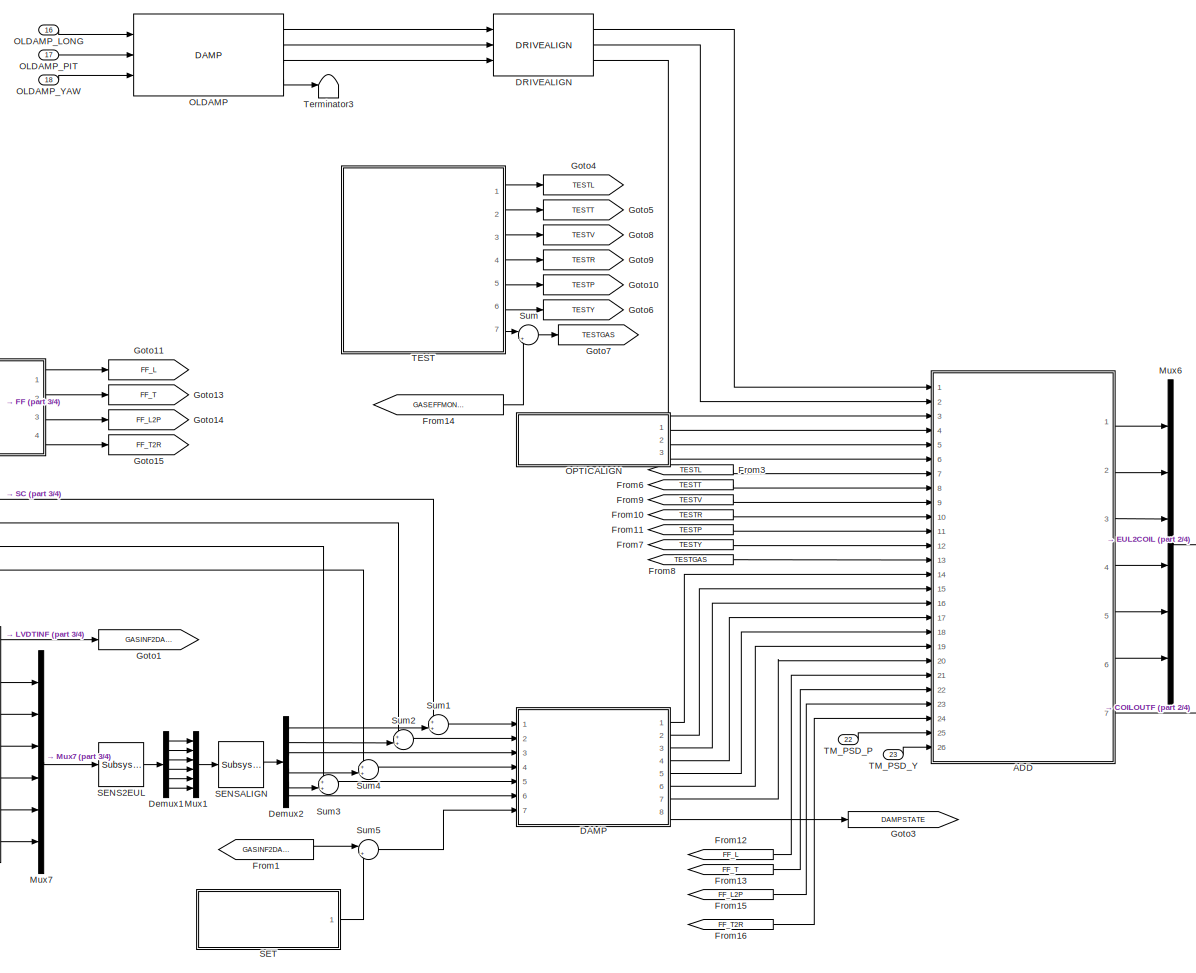
[diagram: BF_TYPEBP - part 1/4, central region]
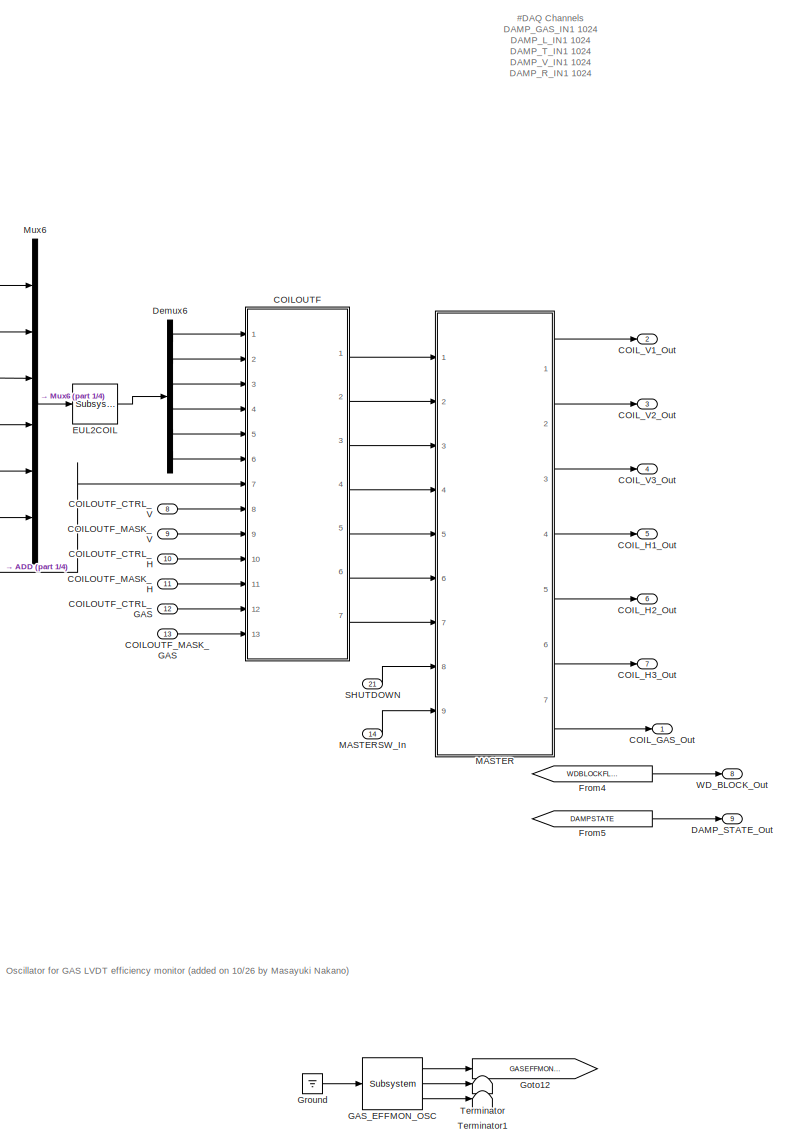
[diagram: BF_TYPEBP - part 2/4, right side, full height]
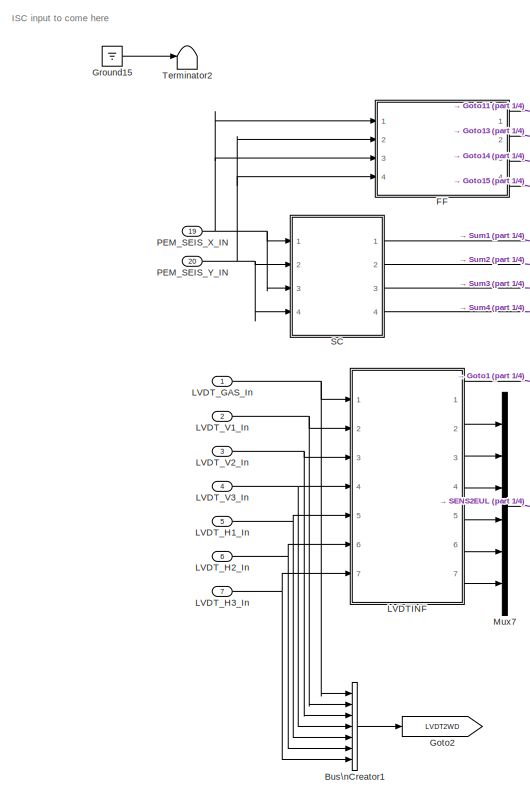
[diagram: BF_TYPEBP - part 3/4, middle left region]
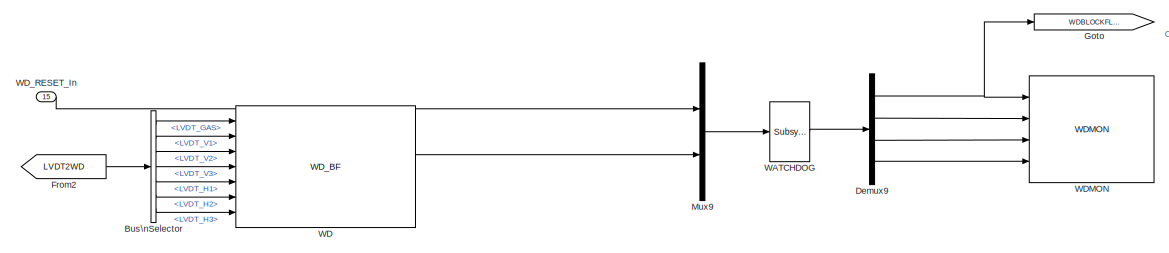
[diagram: BF_TYPEBP - part 4/4, bottom center region]
BLOCK [SubSystem] BF_TYPEBP
  Ports = [23, 9]
  RequestExecContextInheritance = off
  SID = 774
  Variant = off
BLOCK [SubSystem] BF_TYPEBP/ADD
  Ports = [26, 7]
  RequestExecContextInheritance = off
  SID = 795
  Variant = off
BLOCK [Inport] BF_TYPEBP/ADD/DAMP_GAS_In
  IconDisplay = Port number
  Port = 20
  SID = 815
BLOCK [Inport] BF_TYPEBP/ADD/DAMP_L_In
  IconDisplay = Port number
  Port = 14
  SID = 809
BLOCK [Inport] BF_TYPEBP/ADD/DAMP_P_In
  IconDisplay = Port number
  Port = 18
  SID = 813
BLOCK [Inport] BF_TYPEBP/ADD/DAMP_R_In
  IconDisplay = Port number
  Port = 17
  SID = 812
BLOCK [Inport] BF_TYPEBP/ADD/DAMP_T_In
  IconDisplay = Port number
  Port = 15
  SID = 810
BLOCK [Inport] BF_TYPEBP/ADD/DAMP_V_In
  IconDisplay = Port number
  Port = 16
  SID = 811
BLOCK [Inport] BF_TYPEBP/ADD/DAMP_Y_In
  IconDisplay = Port number
  Port = 19
  SID = 814
BLOCK [Inport] BF_TYPEBP/ADD/FF_L2P_In
  IconDisplay = Port number
  Port = 23
  SID = 818
BLOCK [Inport] BF_TYPEBP/ADD/FF_L_In
  IconDisplay = Port number
  Port = 21
  SID = 816
BLOCK [Inport] BF_TYPEBP/ADD/FF_T2R_In
  IconDisplay = Port number
  Port = 24
  SID = 819
BLOCK [Inport] BF_TYPEBP/ADD/FF_T_In
  IconDisplay = Port number
  Port = 22
  SID = 817
BLOCK [From] BF_TYPEBP/ADD/From1
  CloseFcn = tagdialog Close
  GotoTag = TEST_L
  SID = 820
BLOCK [From] BF_TYPEBP/ADD/From10
  CloseFcn = tagdialog Close
  GotoTag = DAMP_Y
  SID = 821
BLOCK [From] BF_TYPEBP/ADD/From11
  CloseFcn = tagdialog Close
  GotoTag = OPTICALIGN_Y
  SID = 822
BLOCK [From] BF_TYPEBP/ADD/From12
  CloseFcn = tagdialog Close
  GotoTag = TEST_R
  SID = 823
BLOCK [From] BF_TYPEBP/ADD/From13
  CloseFcn = tagdialog Close
  GotoTag = DAMP_R
  SID = 824
BLOCK [From] BF_TYPEBP/ADD/From14
  CloseFcn = tagdialog Close
  GotoTag = TEST_V
  SID = 825
BLOCK [From] BF_TYPEBP/ADD/From15
  CloseFcn = tagdialog Close
  GotoTag = DAMP_V
  SID = 826
BLOCK [From] BF_TYPEBP/ADD/From16
  CloseFcn = tagdialog Close
  GotoTag = TEST_T
  SID = 827
BLOCK [From] BF_TYPEBP/ADD/From17
  CloseFcn = tagdialog Close
  GotoTag = DAMP_T
  SID = 828
BLOCK [From] BF_TYPEBP/ADD/From18
  CloseFcn = tagdialog Close
  GotoTag = DAMP_GAS
  SID = 829
BLOCK [From] BF_TYPEBP/ADD/From19
  CloseFcn = tagdialog Close
  GotoTag = OPTICALIGN_GAS
  SID = 830
BLOCK [From] BF_TYPEBP/ADD/From2
  CloseFcn = tagdialog Close
  GotoTag = ISC_L
  SID = 831
BLOCK [From] BF_TYPEBP/ADD/From20
  CloseFcn = tagdialog Close
  GotoTag = TEST_GAS
  SID = 832
BLOCK [From] BF_TYPEBP/ADD/From21
  CloseFcn = tagdialog Close
  GotoTag = FF_L
  SID = 833
BLOCK [From] BF_TYPEBP/ADD/From22
  CloseFcn = tagdialog Close
  GotoTag = FF_T
  SID = 834
BLOCK [From] BF_TYPEBP/ADD/From23
  CloseFcn = tagdialog Close
  GotoTag = FF_T2R
  SID = 835
BLOCK [From] BF_TYPEBP/ADD/From24
  CloseFcn = tagdialog Close
  GotoTag = FF_L2P
  SID = 836
BLOCK [From] BF_TYPEBP/ADD/From25
  CloseFcn = tagdialog Close
  GotoTag = PSD_P
  SID = 1225
BLOCK [From] BF_TYPEBP/ADD/From26
  CloseFcn = tagdialog Close
  GotoTag = PSD_Y
  SID = 1226
BLOCK [From] BF_TYPEBP/ADD/From3
  CloseFcn = tagdialog Close
  GotoTag = DAMP_L
  SID = 837
BLOCK [From] BF_TYPEBP/ADD/From4
  CloseFcn = tagdialog Close
  GotoTag = TEST_P
  SID = 838
BLOCK [From] BF_TYPEBP/ADD/From5
  CloseFcn = tagdialog Close
  GotoTag = ISC_P
  SID = 839
BLOCK [From] BF_TYPEBP/ADD/From6
  CloseFcn = tagdialog Close
  GotoTag = DAMP_P
  SID = 840
BLOCK [From] BF_TYPEBP/ADD/From7
  CloseFcn = tagdialog Close
  GotoTag = OPTICALIGN_P
  SID = 841
BLOCK [From] BF_TYPEBP/ADD/From8
  CloseFcn = tagdialog Close
  GotoTag = TEST_Y
  SID = 842
BLOCK [From] BF_TYPEBP/ADD/From9
  CloseFcn = tagdialog Close
  GotoTag = ISC_Y
  SID = 843
BLOCK [Outport] BF_TYPEBP/ADD/GAS_Main_Out
  IconDisplay = Port number
  Port = 7
  SID = 881
BLOCK [Goto] BF_TYPEBP/ADD/Goto
  GotoTag = ISC_L
  SID = 844
BLOCK [Goto] BF_TYPEBP/ADD/Goto1
  GotoTag = ISC_P
  SID = 845
BLOCK [Goto] BF_TYPEBP/ADD/Goto10
  GotoTag = TEST_V
  SID = 846
BLOCK [Goto] BF_TYPEBP/ADD/Goto11
  GotoTag = DAMP_V
  SID = 847
BLOCK [Goto] BF_TYPEBP/ADD/Goto12
  GotoTag = DAMP_L
  SID = 848
BLOCK [Goto] BF_TYPEBP/ADD/Goto13
  GotoTag = DAMP_P
  SID = 849
BLOCK [Goto] BF_TYPEBP/ADD/Goto14
  GotoTag = DAMP_Y
  SID = 850
BLOCK [Goto] BF_TYPEBP/ADD/Goto15
  GotoTag = DAMP_T
  SID = 851
BLOCK [Goto] BF_TYPEBP/ADD/Goto16
  GotoTag = DAMP_R
  SID = 852
BLOCK [Goto] BF_TYPEBP/ADD/Goto17
  GotoTag = TEST_GAS
  SID = 853
BLOCK [Goto] BF_TYPEBP/ADD/Goto18
  GotoTag = DAMP_GAS
  SID = 854
BLOCK [Goto] BF_TYPEBP/ADD/Goto19
  GotoTag = OPTICALIGN_GAS
  SID = 855
BLOCK [Goto] BF_TYPEBP/ADD/Goto2
  GotoTag = ISC_Y
  SID = 856
BLOCK [Goto] BF_TYPEBP/ADD/Goto20
  GotoTag = FF_L
  SID = 857
BLOCK [Goto] BF_TYPEBP/ADD/Goto21
  GotoTag = FF_T
  SID = 858
BLOCK [Goto] BF_TYPEBP/ADD/Goto22
  GotoTag = FF_L2P
  SID = 859
BLOCK [Goto] BF_TYPEBP/ADD/Goto23
  GotoTag = FF_T2R
  SID = 860
BLOCK [Goto] BF_TYPEBP/ADD/Goto24
  GotoTag = PSD_P
  SID = 1223
BLOCK [Goto] BF_TYPEBP/ADD/Goto25
  GotoTag = PSD_Y
  SID = 1224
BLOCK [Goto] BF_TYPEBP/ADD/Goto3
  GotoTag = TEST_L
  SID = 861
BLOCK [Goto] BF_TYPEBP/ADD/Goto4
  GotoTag = OPTICALIGN_P
  SID = 862
BLOCK [Goto] BF_TYPEBP/ADD/Goto5
  GotoTag = OPTICALIGN_Y
  SID = 863
BLOCK [Goto] BF_TYPEBP/ADD/Goto6
  GotoTag = TEST_P
  SID = 864
BLOCK [Goto] BF_TYPEBP/ADD/Goto7
  GotoTag = TEST_Y
  SID = 865
BLOCK [Goto] BF_TYPEBP/ADD/Goto8
  GotoTag = TEST_T
  SID = 866
BLOCK [Goto] BF_TYPEBP/ADD/Goto9
  GotoTag = TEST_R
  SID = 867
BLOCK [Inport] BF_TYPEBP/ADD/ISC_L_In
  IconDisplay = Port number
  SID = 796
BLOCK [Inport] BF_TYPEBP/ADD/ISC_P_In
  IconDisplay = Port number
  Port = 2
  SID = 797
BLOCK [Inport] BF_TYPEBP/ADD/ISC_Y_In
  IconDisplay = Port number
  Port = 3
  SID = 798
BLOCK [Outport] BF_TYPEBP/ADD/LONG_MAIN_Out
  IconDisplay = Port number
  SID = 875
BLOCK [Inport] BF_TYPEBP/ADD/OPTICALIGN_GAS_In
  IconDisplay = Port number
  Port = 6
  SID = 801
BLOCK [Inport] BF_TYPEBP/ADD/OPTICALIGN_P_In
  IconDisplay = Port number
  Port = 4
  SID = 799
BLOCK [Inport] BF_TYPEBP/ADD/OPTICALIGN_Y_In
  IconDisplay = Port number
  Port = 5
  SID = 800
BLOCK [Outport] BF_TYPEBP/ADD/PITCH_MAIN_Out
  IconDisplay = Port number
  Port = 5
  SID = 879
BLOCK [Inport] BF_TYPEBP/ADD/PSD_P
  IconDisplay = Port number
  Port = 25
  SID = 1221
BLOCK [Inport] BF_TYPEBP/ADD/PSD_Y
  IconDisplay = Port number
  Port = 26
  SID = 1222
BLOCK [Outport] BF_TYPEBP/ADD/ROLL_MAIN_Out
  IconDisplay = Port number
  Port = 4
  SID = 878
BLOCK [Sum] BF_TYPEBP/ADD/Sum
  InputSameDT = off
  Inputs = ++++
  OutDataTypeStr = Inherit: Inherit via internal rule
  Ports = [4, 1]
  SID = 868
  SaturateOnIntegerOverflow = off
BLOCK [Sum] BF_TYPEBP/ADD/Sum1
  InputSameDT = off
  Inputs = +++
  OutDataTypeStr = Inherit: Inherit via internal rule
  Ports = [3, 1]
  SID = 869
  SaturateOnIntegerOverflow = off
BLOCK [Sum] BF_TYPEBP/ADD/Sum2
  InputSameDT = off
  OutDataTypeStr = Inherit: Inherit via internal rule
  Ports = [2, 1]
  SID = 870
  SaturateOnIntegerOverflow = off
BLOCK [Sum] BF_TYPEBP/ADD/Sum3
  InputSameDT = off
  Inputs = +++++
  OutDataTypeStr = Inherit: Inherit via internal rule
  Ports = [5, 1]
  SID = 871
  SaturateOnIntegerOverflow = off
BLOCK [Sum] BF_TYPEBP/ADD/Sum4
  InputSameDT = off
  Inputs = ++++++
  OutDataTypeStr = Inherit: Inherit via internal rule
  Ports = [6, 1]
  SID = 872
  SaturateOnIntegerOverflow = off
BLOCK [Sum] BF_TYPEBP/ADD/Sum5
  InputSameDT = off
  Inputs = +++
  OutDataTypeStr = Inherit: Inherit via internal rule
  Ports = [3, 1]
  SID = 873
  SaturateOnIntegerOverflow = off
BLOCK [Sum] BF_TYPEBP/ADD/Sum6
  InputSameDT = off
  Inputs = +++
  OutDataTypeStr = Inherit: Inherit via internal rule
  Ports = [3, 1]
  SID = 874
  SaturateOnIntegerOverflow = off
BLOCK [Inport] BF_TYPEBP/ADD/TEST_GAS_In
  IconDisplay = Port number
  Port = 13
  SID = 808
BLOCK [Inport] BF_TYPEBP/ADD/TEST_L_In
  IconDisplay = Port number
  Port = 7
  SID = 802
BLOCK [Inport] BF_TYPEBP/ADD/TEST_P_In
  IconDisplay = Port number
  Port = 11
  SID = 806
BLOCK [Inport] BF_TYPEBP/ADD/TEST_R_In
  IconDisplay = Port number
  Port = 10
  SID = 805
BLOCK [Inport] BF_TYPEBP/ADD/TEST_T_In
  IconDisplay = Port number
  Port = 8
  SID = 803
BLOCK [Inport] BF_TYPEBP/ADD/TEST_V_In
  IconDisplay = Port number
  Port = 9
  SID = 804
BLOCK [Inport] BF_TYPEBP/ADD/TEST_Y_In
  IconDisplay = Port number
  Port = 12
  SID = 807
BLOCK [Outport] BF_TYPEBP/ADD/TRANS_MAIN_Out
  IconDisplay = Port number
  Port = 2
  SID = 876
BLOCK [Outport] BF_TYPEBP/ADD/VERT_MAIN_Out
  IconDisplay = Port number
  Port = 3
  SID = 877
BLOCK [Outport] BF_TYPEBP/ADD/YAW_MAIN_Out
  IconDisplay = Port number
  Port = 6
  SID = 880
BLOCK [BusCreator] BF_TYPEBP/Bus\nCreator1
  DisplayOption = bar
  InheritFromInputs = on
  Inputs = 'LVDT_GAS','LVDT_V1','LVDT_V2','LVDT_V3','LVDT_H1','LVDT_H2','LVDT_H3'
  Ports = [7, 1]
  SID = 882
BLOCK [BusSelector] BF_TYPEBP/Bus\nSelector
  OutputSignals = LVDT_GAS,LVDT_V1,LVDT_V2,LVDT_V3,LVDT_H1,LVDT_H2,LVDT_H3
  Ports = [1, 7]
  SID = 883
BLOCK [SubSystem] BF_TYPEBP/COILOUTF
  Ports = [13, 7]
  RequestExecContextInheritance = off
  SID = 884
  Variant = off
BLOCK [Inport] BF_TYPEBP/COILOUTF/CTRL_GAS
  IconDisplay = Port number
  Port = 12
  SID = 896
BLOCK [Inport] BF_TYPEBP/COILOUTF/CTRL_H
  IconDisplay = Port number
  Port = 10
  SID = 894
BLOCK [Inport] BF_TYPEBP/COILOUTF/CTRL_V
  IconDisplay = Port number
  Port = 8
  SID = 892
BLOCK [Reference] BF_TYPEBP/COILOUTF/GAS  REF=cdsFiltCtrl/IIR FM with control
  AttributesFormatString = %<Tag>
  Ports = [3, 2]
  SID = 898
  SourceBlock = cdsFiltCtrl/IIR FM with control
  SourceType = SubSystem
  Tag = cdsFiltCtrl
BLOCK [Inport] BF_TYPEBP/COILOUTF/GAS_IN
  IconDisplay = Port number
  Port = 7
  SID = 891
BLOCK [Outport] BF_TYPEBP/COILOUTF/GAS_Out
  IconDisplay = Port number
  Port = 7
  SID = 918
BLOCK [Reference] BF_TYPEBP/COILOUTF/H1  REF=cdsFiltCtrl/IIR FM with control
  AttributesFormatString = %<Tag>
  Ports = [3, 2]
  SID = 899
  SourceBlock = cdsFiltCtrl/IIR FM with control
  SourceType = SubSystem
  Tag = cdsFiltCtrl
BLOCK [Inport] BF_TYPEBP/COILOUTF/H1_IN
  IconDisplay = Port number
  Port = 4
  SID = 888
BLOCK [Outport] BF_TYPEBP/COILOUTF/H1_Out
  IconDisplay = Port number
  Port = 4
  SID = 915
BLOCK [Reference] BF_TYPEBP/COILOUTF/H2  REF=cdsFiltCtrl/IIR FM with control
  AttributesFormatString = %<Tag>
  Ports = [3, 2]
  SID = 900
  SourceBlock = cdsFiltCtrl/IIR FM with control
  SourceType = SubSystem
  Tag = cdsFiltCtrl
BLOCK [Inport] BF_TYPEBP/COILOUTF/H2_IN1
  IconDisplay = Port number
  Port = 5
  SID = 889
BLOCK [Outport] BF_TYPEBP/COILOUTF/H2_Out
  IconDisplay = Port number
  Port = 5
  SID = 916
BLOCK [Reference] BF_TYPEBP/COILOUTF/H3  REF=cdsFiltCtrl/IIR FM with control
  AttributesFormatString = %<Tag>
  Ports = [3, 2]
  SID = 901
  SourceBlock = cdsFiltCtrl/IIR FM with control
  SourceType = SubSystem
  Tag = cdsFiltCtrl
BLOCK [Inport] BF_TYPEBP/COILOUTF/H3_IN
  IconDisplay = Port number
  Port = 6
  SID = 890
BLOCK [Outport] BF_TYPEBP/COILOUTF/H3_Out
  IconDisplay = Port number
  Port = 6
  SID = 917
BLOCK [Inport] BF_TYPEBP/COILOUTF/MASK_GAS
  IconDisplay = Port number
  Port = 13
  SID = 897
BLOCK [Inport] BF_TYPEBP/COILOUTF/MASK_H
  IconDisplay = Port number
  Port = 11
  SID = 895
BLOCK [Inport] BF_TYPEBP/COILOUTF/MASK_V
  IconDisplay = Port number
  Port = 9
  SID = 893
BLOCK [Terminator] BF_TYPEBP/COILOUTF/Terminator1
  SID = 902
BLOCK [Terminator] BF_TYPEBP/COILOUTF/Terminator2
  SID = 903
BLOCK [Terminator] BF_TYPEBP/COILOUTF/Terminator3
  SID = 904
BLOCK [Terminator] BF_TYPEBP/COILOUTF/Terminator4
  SID = 905
BLOCK [Terminator] BF_TYPEBP/COILOUTF/Terminator5
  SID = 906
BLOCK [Terminator] BF_TYPEBP/COILOUTF/Terminator6
  SID = 907
BLOCK [Terminator] BF_TYPEBP/COILOUTF/Terminator7
  SID = 908
BLOCK [Reference] BF_TYPEBP/COILOUTF/V1  REF=cdsFiltCtrl/IIR FM with control
  AttributesFormatString = %<Tag>
  Ports = [3, 2]
  SID = 909
  SourceBlock = cdsFiltCtrl/IIR FM with control
  SourceType = SubSystem
  Tag = cdsFiltCtrl
BLOCK [Inport] BF_TYPEBP/COILOUTF/V1_IN
  IconDisplay = Port number
  SID = 885
BLOCK [Outport] BF_TYPEBP/COILOUTF/V1_Out
  IconDisplay = Port number
  SID = 912
BLOCK [Reference] BF_TYPEBP/COILOUTF/V2  REF=cdsFiltCtrl/IIR FM with control
  AttributesFormatString = %<Tag>
  Ports = [3, 2]
  SID = 910
  SourceBlock = cdsFiltCtrl/IIR FM with control
  SourceType = SubSystem
  Tag = cdsFiltCtrl
BLOCK [Inport] BF_TYPEBP/COILOUTF/V2_IN
  IconDisplay = Port number
  Port = 2
  SID = 886
BLOCK [Outport] BF_TYPEBP/COILOUTF/V2_Out
  IconDisplay = Port number
  Port = 2
  SID = 913
BLOCK [Reference] BF_TYPEBP/COILOUTF/V3  REF=cdsFiltCtrl/IIR FM with control
  AttributesFormatString = %<Tag>
  Ports = [3, 2]
  SID = 911
  SourceBlock = cdsFiltCtrl/IIR FM with control
  SourceType = SubSystem
  Tag = cdsFiltCtrl
BLOCK [Inport] BF_TYPEBP/COILOUTF/V3_IN
  IconDisplay = Port number
  Port = 3
  SID = 887
BLOCK [Outport] BF_TYPEBP/COILOUTF/V3_Out
  IconDisplay = Port number
  Port = 3
  SID = 914
BLOCK [Inport] BF_TYPEBP/COILOUTF_CTRL_GAS
  IconDisplay = Port number
  Port = 12
  SID = 786
BLOCK [Inport] BF_TYPEBP/COILOUTF_CTRL_H
  IconDisplay = Port number
  Port = 10
  SID = 784
BLOCK [Inport] BF_TYPEBP/COILOUTF_CTRL_V
  IconDisplay = Port number
  Port = 8
  SID = 782
BLOCK [Inport] BF_TYPEBP/COILOUTF_MASK_GAS
  IconDisplay = Port number
  Port = 13
  SID = 787
BLOCK [Inport] BF_TYPEBP/COILOUTF_MASK_H
  IconDisplay = Port number
  Port = 11
  SID = 785
BLOCK [Inport] BF_TYPEBP/COILOUTF_MASK_V
  IconDisplay = Port number
  Port = 9
  SID = 783
BLOCK [Outport] BF_TYPEBP/COIL_GAS_Out
  IconDisplay = Port number
  SID = 1187
BLOCK [Outport] BF_TYPEBP/COIL_H1_Out
  IconDisplay = Port number
  Port = 5
  SID = 1191
BLOCK [Outport] BF_TYPEBP/COIL_H2_Out
  IconDisplay = Port number
  Port = 6
  SID = 1192
BLOCK [Outport] BF_TYPEBP/COIL_H3_Out
  IconDisplay = Port number
  Port = 7
  SID = 1193
BLOCK [Outport] BF_TYPEBP/COIL_V1_Out
  IconDisplay = Port number
  Port = 2
  SID = 1188
BLOCK [Outport] BF_TYPEBP/COIL_V2_Out
  IconDisplay = Port number
  Port = 3
  SID = 1189
BLOCK [Outport] BF_TYPEBP/COIL_V3_Out
  IconDisplay = Port number
  Port = 4
  SID = 1190
BLOCK [SubSystem] BF_TYPEBP/DAMP
  Ports = [7, 8]
  RequestExecContextInheritance = off
  SID = 919
  Variant = off
BLOCK [Outport] BF_TYPEBP/DAMP/DAMP_STATE_Out
  IconDisplay = Port number
  Port = 8
  SID = 985
BLOCK [Reference] BF_TYPEBP/DAMP/GAS  REF=cdsFiltCtrl/IIR FM with control
  AttributesFormatString = %<Tag>
  Ports = [3, 2]
  SID = 927
  SourceBlock = cdsFiltCtrl/IIR FM with control
  SourceType = SubSystem
  Tag = cdsFiltCtrl
BLOCK [Inport] BF_TYPEBP/DAMP/GAS_In
  IconDisplay = Port number
  Port = 7
  SID = 926
BLOCK [Outport] BF_TYPEBP/DAMP/GAS_Out
  IconDisplay = Port number
  Port = 7
  SID = 984
BLOCK [Reference] BF_TYPEBP/DAMP/GAS_STATE_GOOD  REF=cdsEpicsIn/Subsystem
  AttributesFormatString = %<Tag>
  Ports = [0, 1]
  SID = 928
  SourceBlock = cdsEpicsIn/Subsystem
  SourceType = SubSystem
  Tag = cdsEpicsIn
BLOCK [Reference] BF_TYPEBP/DAMP/GAS_STATE_NOW  REF=cdsEpicsOut/Subsystem
  AttributesFormatString = %<Tag>
  Ports = [1, 1]
  SID = 929
  SourceBlock = cdsEpicsOut/Subsystem
  SourceType = SubSystem
  Tag = cdsEpicsOutput
BLOCK [Reference] BF_TYPEBP/DAMP/GAS_STATE_OK  REF=cdsEpicsOut/Subsystem
  AttributesFormatString = %<Tag>
  Ports = [1, 1]
  SID = 930
  SourceBlock = cdsEpicsOut/Subsystem
  SourceType = SubSystem
  Tag = cdsEpicsOutput
BLOCK [Ground] BF_TYPEBP/DAMP/Ground1
  SID = 931
BLOCK [Ground] BF_TYPEBP/DAMP/Ground10
  SID = 932
BLOCK [Ground] BF_TYPEBP/DAMP/Ground11
  SID = 933
BLOCK [Ground] BF_TYPEBP/DAMP/Ground12
  SID = 934
BLOCK [Ground] BF_TYPEBP/DAMP/Ground13
  SID = 935
BLOCK [Ground] BF_TYPEBP/DAMP/Ground14
  SID = 936
BLOCK [Ground] BF_TYPEBP/DAMP/Ground2
  SID = 937
BLOCK [Ground] BF_TYPEBP/DAMP/Ground3
  SID = 938
BLOCK [Ground] BF_TYPEBP/DAMP/Ground4
  SID = 939
BLOCK [Ground] BF_TYPEBP/DAMP/Ground5
  SID = 940
BLOCK [Ground] BF_TYPEBP/DAMP/Ground6
  SID = 941
BLOCK [Ground] BF_TYPEBP/DAMP/Ground7
  SID = 942
BLOCK [Ground] BF_TYPEBP/DAMP/Ground8
  SID = 943
BLOCK [Ground] BF_TYPEBP/DAMP/Ground9
  SID = 944
BLOCK [Reference] BF_TYPEBP/DAMP/L  REF=cdsFiltCtrl/IIR FM with control
  AttributesFormatString = %<Tag>
  Ports = [3, 2]
  SID = 945
  SourceBlock = cdsFiltCtrl/IIR FM with control
  SourceType = SubSystem
  Tag = cdsFiltCtrl
BLOCK [Inport] BF_TYPEBP/DAMP/LONG_In
  IconDisplay = Port number
  SID = 920
BLOCK [Outport] BF_TYPEBP/DAMP/LONG_Out
  IconDisplay = Port number
  SID = 978
BLOCK [Reference] BF_TYPEBP/DAMP/L_STATE_GOOD  REF=cdsEpicsIn/Subsystem
  AttributesFormatString = %<Tag>
  Ports = [0, 1]
  SID = 946
  SourceBlock = cdsEpicsIn/Subsystem
  SourceType = SubSystem
  Tag = cdsEpicsIn
BLOCK [Reference] BF_TYPEBP/DAMP/L_STATE_NOW  REF=cdsEpicsOut/Subsystem
  AttributesFormatString = %<Tag>
  Ports = [1, 1]
  SID = 947
  SourceBlock = cdsEpicsOut/Subsystem
  SourceType = SubSystem
  Tag = cdsEpicsOutput
BLOCK [Reference] BF_TYPEBP/DAMP/L_STATE_OK  REF=cdsEpicsOut/Subsystem
  AttributesFormatString = %<Tag>
  Ports = [1, 1]
  SID = 948
  SourceBlock = cdsEpicsOut/Subsystem
  SourceType = SubSystem
  Tag = cdsEpicsOutput
BLOCK [RelationalOperator] BF_TYPEBP/DAMP/Operator
  InputSameDT = off
  Operator = ==
  OutDataTypeStr = boolean
  Ports = [2, 1]
  SID = 949
BLOCK [RelationalOperator] BF_TYPEBP/DAMP/Operator1
  InputSameDT = off
  Operator = ==
  OutDataTypeStr = boolean
  Ports = [2, 1]
  SID = 950
BLOCK [RelationalOperator] BF_TYPEBP/DAMP/Operator2
  InputSameDT = off
  Operator = ==
  OutDataTypeStr = boolean
  Ports = [2, 1]
  SID = 951
BLOCK [RelationalOperator] BF_TYPEBP/DAMP/Operator3
  InputSameDT = off
  Operator = ==
  OutDataTypeStr = boolean
  Ports = [2, 1]
  SID = 952
BLOCK [RelationalOperator] BF_TYPEBP/DAMP/Operator4
  InputSameDT = off
  Operator = ==
  OutDataTypeStr = boolean
  Ports = [2, 1]
  SID = 953
BLOCK [RelationalOperator] BF_TYPEBP/DAMP/Operator5
  InputSameDT = off
  Operator = ==
  OutDataTypeStr = boolean
  Ports = [2, 1]
  SID = 954
BLOCK [RelationalOperator] BF_TYPEBP/DAMP/Operator6
  InputSameDT = off
  Operator = ==
  OutDataTypeStr = boolean
  Ports = [2, 1]
  SID = 955
BLOCK [Reference] BF_TYPEBP/DAMP/P  REF=cdsFiltCtrl/IIR FM with control
  AttributesFormatString = %<Tag>
  Ports = [3, 2]
  SID = 956
  SourceBlock = cdsFiltCtrl/IIR FM with control
  SourceType = SubSystem
  Tag = cdsFiltCtrl
BLOCK [Inport] BF_TYPEBP/DAMP/PITCH_In
  IconDisplay = Port number
  Port = 5
  SID = 924
BLOCK [Outport] BF_TYPEBP/DAMP/PITCH_Out
  IconDisplay = Port number
  Port = 5
  SID = 982
BLOCK [Reference] BF_TYPEBP/DAMP/P_STATE_GOOD  REF=cdsEpicsIn/Subsystem
  AttributesFormatString = %<Tag>
  Ports = [0, 1]
  SID = 957
  SourceBlock = cdsEpicsIn/Subsystem
  SourceType = SubSystem
  Tag = cdsEpicsIn
BLOCK [Reference] BF_TYPEBP/DAMP/P_STATE_NOW  REF=cdsEpicsOut/Subsystem
  AttributesFormatString = %<Tag>
  Ports = [1, 1]
  SID = 958
  SourceBlock = cdsEpicsOut/Subsystem
  SourceType = SubSystem
  Tag = cdsEpicsOutput
BLOCK [Reference] BF_TYPEBP/DAMP/P_STATE_OK  REF=cdsEpicsOut/Subsystem
  AttributesFormatString = %<Tag>
  Ports = [1, 1]
  SID = 959
  SourceBlock = cdsEpicsOut/Subsystem
  SourceType = SubSystem
  Tag = cdsEpicsOutput
BLOCK [Product] BF_TYPEBP/DAMP/Product
  InputSameDT = off
  Inputs = 7
  OutDataTypeStr = Inherit: Inherit via internal rule
  Ports = [7, 1]
  SID = 960
  SaturateOnIntegerOverflow = off
BLOCK [Reference] BF_TYPEBP/DAMP/R  REF=cdsFiltCtrl/IIR FM with control
  AttributesFormatString = %<Tag>
  Ports = [3, 2]
  SID = 961
  SourceBlock = cdsFiltCtrl/IIR FM with control
  SourceType = SubSystem
  Tag = cdsFiltCtrl
BLOCK [Inport] BF_TYPEBP/DAMP/ROLL_In
  IconDisplay = Port number
  Port = 4
  SID = 923
BLOCK [Outport] BF_TYPEBP/DAMP/ROLL_Out
  IconDisplay = Port number
  Port = 4
  SID = 981
BLOCK [Reference] BF_TYPEBP/DAMP/R_STATE_GOOD  REF=cdsEpicsIn/Subsystem
  AttributesFormatString = %<Tag>
  Ports = [0, 1]
  SID = 962
  SourceBlock = cdsEpicsIn/Subsystem
  SourceType = SubSystem
  Tag = cdsEpicsIn
BLOCK [Reference] BF_TYPEBP/DAMP/R_STATE_NOW  REF=cdsEpicsOut/Subsystem
  AttributesFormatString = %<Tag>
  Ports = [1, 1]
  SID = 963
  SourceBlock = cdsEpicsOut/Subsystem
  SourceType = SubSystem
  Tag = cdsEpicsOutput
BLOCK [Reference] BF_TYPEBP/DAMP/R_STATE_OK  REF=cdsEpicsOut/Subsystem
  AttributesFormatString = %<Tag>
  Ports = [1, 1]
  SID = 964
  SourceBlock = cdsEpicsOut/Subsystem
  SourceType = SubSystem
  Tag = cdsEpicsOutput
BLOCK [Reference] BF_TYPEBP/DAMP/STATE_OK  REF=cdsEpicsOut/Subsystem
  AttributesFormatString = %<Tag>
  Ports = [1, 1]
  SID = 965
  SourceBlock = cdsEpicsOut/Subsystem
  SourceType = SubSystem
  Tag = cdsEpicsOutput
BLOCK [Reference] BF_TYPEBP/DAMP/T  REF=cdsFiltCtrl/IIR FM with control
  AttributesFormatString = %<Tag>
  Ports = [3, 2]
  SID = 966
  SourceBlock = cdsFiltCtrl/IIR FM with control
  SourceType = SubSystem
  Tag = cdsFiltCtrl
BLOCK [Inport] BF_TYPEBP/DAMP/TRANS_In
  IconDisplay = Port number
  Port = 2
  SID = 921
BLOCK [Outport] BF_TYPEBP/DAMP/TRANS_Out
  IconDisplay = Port number
  Port = 2
  SID = 979
BLOCK [Reference] BF_TYPEBP/DAMP/T_STATE_GOOD  REF=cdsEpicsIn/Subsystem
  AttributesFormatString = %<Tag>
  Ports = [0, 1]
  SID = 967
  SourceBlock = cdsEpicsIn/Subsystem
  SourceType = SubSystem
  Tag = cdsEpicsIn
BLOCK [Reference] BF_TYPEBP/DAMP/T_STATE_NOW  REF=cdsEpicsOut/Subsystem
  AttributesFormatString = %<Tag>
  Ports = [1, 1]
  SID = 968
  SourceBlock = cdsEpicsOut/Subsystem
  SourceType = SubSystem
  Tag = cdsEpicsOutput
BLOCK [Reference] BF_TYPEBP/DAMP/T_STATE_OK  REF=cdsEpicsOut/Subsystem
  AttributesFormatString = %<Tag>
  Ports = [1, 1]
  SID = 969
  SourceBlock = cdsEpicsOut/Subsystem
  SourceType = SubSystem
  Tag = cdsEpicsOutput
BLOCK [Reference] BF_TYPEBP/DAMP/V  REF=cdsFiltCtrl/IIR FM with control
  AttributesFormatString = %<Tag>
  Ports = [3, 2]
  SID = 970
  SourceBlock = cdsFiltCtrl/IIR FM with control
  SourceType = SubSystem
  Tag = cdsFiltCtrl
BLOCK [Inport] BF_TYPEBP/DAMP/VERT_In
  IconDisplay = Port number
  Port = 3
  SID = 922
BLOCK [Outport] BF_TYPEBP/DAMP/VERT_Out
  IconDisplay = Port number
  Port = 3
  SID = 980
BLOCK [Reference] BF_TYPEBP/DAMP/V_STATE_GOOD  REF=cdsEpicsIn/Subsystem
  AttributesFormatString = %<Tag>
  Ports = [0, 1]
  SID = 971
  SourceBlock = cdsEpicsIn/Subsystem
  SourceType = SubSystem
  Tag = cdsEpicsIn
BLOCK [Reference] BF_TYPEBP/DAMP/V_STATE_NOW  REF=cdsEpicsOut/Subsystem
  AttributesFormatString = %<Tag>
  Ports = [1, 1]
  SID = 972
  SourceBlock = cdsEpicsOut/Subsystem
  SourceType = SubSystem
  Tag = cdsEpicsOutput
BLOCK [Reference] BF_TYPEBP/DAMP/V_STATE_OK  REF=cdsEpicsOut/Subsystem
  AttributesFormatString = %<Tag>
  Ports = [1, 1]
  SID = 973
  SourceBlock = cdsEpicsOut/Subsystem
  SourceType = SubSystem
  Tag = cdsEpicsOutput
BLOCK [Reference] BF_TYPEBP/DAMP/Y  REF=cdsFiltCtrl/IIR FM with control
  AttributesFormatString = %<Tag>
  Ports = [3, 2]
  SID = 974
  SourceBlock = cdsFiltCtrl/IIR FM with control
  SourceType = SubSystem
  Tag = cdsFiltCtrl
BLOCK [Inport] BF_TYPEBP/DAMP/YAW_In
  IconDisplay = Port number
  Port = 6
  SID = 925
BLOCK [Outport] BF_TYPEBP/DAMP/YAW_Out
  IconDisplay = Port number
  Port = 6
  SID = 983
BLOCK [Reference] BF_TYPEBP/DAMP/Y_STATE_GOOD  REF=cdsEpicsIn/Subsystem
  AttributesFormatString = %<Tag>
  Ports = [0, 1]
  SID = 975
  SourceBlock = cdsEpicsIn/Subsystem
  SourceType = SubSystem
  Tag = cdsEpicsIn
BLOCK [Reference] BF_TYPEBP/DAMP/Y_STATE_NOW  REF=cdsEpicsOut/Subsystem
  AttributesFormatString = %<Tag>
  Ports = [1, 1]
  SID = 976
  SourceBlock = cdsEpicsOut/Subsystem
  SourceType = SubSystem
  Tag = cdsEpicsOutput
BLOCK [Reference] BF_TYPEBP/DAMP/Y_STATE_OK  REF=cdsEpicsOut/Subsystem
  AttributesFormatString = %<Tag>
  Ports = [1, 1]
  SID = 977
  SourceBlock = cdsEpicsOut/Subsystem
  SourceType = SubSystem
  Tag = cdsEpicsOutput
BLOCK [Outport] BF_TYPEBP/DAMP_STATE_Out
  IconDisplay = Port number
  Port = 9
  SID = 1195
BLOCK [Reference] BF_TYPEBP/DRIVEALIGN  REF=VIS_LIB/DRIVEALIGN
  Ports = [3, 3]
  SID = 1213
  SourceBlock = VIS_LIB/DRIVEALIGN
  SourceType = SubSystem
BLOCK [Demux] BF_TYPEBP/Demux1
  DisplayOption = bar
  Outputs = 6
  Ports = [1, 6]
  SID = 991
BLOCK [Demux] BF_TYPEBP/Demux2
  DisplayOption = bar
  Outputs = 6
  Ports = [1, 6]
  SID = 992
BLOCK [Demux] BF_TYPEBP/Demux6
  DisplayOption = bar
  Outputs = 6
  Ports = [1, 6]
  SID = 993
BLOCK [Demux] BF_TYPEBP/Demux9
  DisplayOption = bar
  Ports = [1, 4]
  SID = 994
BLOCK [Reference] BF_TYPEBP/EUL2COIL  REF=cdsMuxMatrix/Subsystem
  AttributesFormatString = %<Tag>
  Description = ADL=SUS_INMATRIX.adl\nSCRIPT=generate_KisselButton.py 4 5 #CHANNEL# > #TARGET_DIR#/#FULL_PART_NAME#_KB.adl
  Ports = [1, 1]
  SID = 995
  SourceBlock = cdsMuxMatrix/Subsystem
  SourceType = SubSystem
  Tag = cdsMuxMatrix
BLOCK [SubSystem] BF_TYPEBP/FF
  Ports = [4, 4]
  RequestExecContextInheritance = off
  SID = 996
  Variant = off
BLOCK [Reference] BF_TYPEBP/FF/L  REF=cdsFilt/Subsystem
  AttributesFormatString = %<Tag>
  Ports = [1, 1]
  SID = 1205
  SourceBlock = cdsFilt/Subsystem
  SourceType = SubSystem
  Tag = cdsFilt
BLOCK [Reference] BF_TYPEBP/FF/L2P  REF=cdsFilt/Subsystem
  AttributesFormatString = %<Tag>
  Ports = [1, 1]
  SID = 1206
  SourceBlock = cdsFilt/Subsystem
  SourceType = SubSystem
  Tag = cdsFilt
BLOCK [Inport] BF_TYPEBP/FF/L2P_In
  IconDisplay = Port number
  Port = 3
  SID = 1203
BLOCK [Outport] BF_TYPEBP/FF/L2P_Out
  IconDisplay = Port number
  Port = 3
  SID = 1211
BLOCK [Inport] BF_TYPEBP/FF/L_In
  IconDisplay = Port number
  SID = 1201
BLOCK [Outport] BF_TYPEBP/FF/L_Out
  IconDisplay = Port number
  SID = 1209
BLOCK [Reference] BF_TYPEBP/FF/T  REF=cdsFilt/Subsystem
  AttributesFormatString = %<Tag>
  Ports = [1, 1]
  SID = 1207
  SourceBlock = cdsFilt/Subsystem
  SourceType = SubSystem
  Tag = cdsFilt
BLOCK [Reference] BF_TYPEBP/FF/T2R  REF=cdsFilt/Subsystem
  AttributesFormatString = %<Tag>
  Ports = [1, 1]
  SID = 1208
  SourceBlock = cdsFilt/Subsystem
  SourceType = SubSystem
  Tag = cdsFilt
BLOCK [Inport] BF_TYPEBP/FF/T2R_In
  IconDisplay = Port number
  Port = 4
  SID = 1204
BLOCK [Outport] BF_TYPEBP/FF/T2R_Out
  IconDisplay = Port number
  Port = 4
  SID = 1212
BLOCK [Inport] BF_TYPEBP/FF/T_In
  IconDisplay = Port number
  Port = 2
  SID = 1202
BLOCK [Outport] BF_TYPEBP/FF/T_Out
  IconDisplay = Port number
  Port = 2
  SID = 1210
BLOCK [From] BF_TYPEBP/From1
  GotoTag = GASINF2DAMP
  SID = 998
BLOCK [From] BF_TYPEBP/From10
  GotoTag = TESTR
  SID = 999
BLOCK [From] BF_TYPEBP/From11
  GotoTag = TESTP
  SID = 1000
BLOCK [From] BF_TYPEBP/From12
  GotoTag = FF_L
  SID = 1001
BLOCK [From] BF_TYPEBP/From13
  GotoTag = FF_T
  SID = 1002
BLOCK [From] BF_TYPEBP/From14
  GotoTag = GASEFFMON_LO
  SID = 1003
BLOCK [From] BF_TYPEBP/From15
  GotoTag = FF_L2P
  SID = 1004
BLOCK [From] BF_TYPEBP/From16
  GotoTag = FF_T2R
  SID = 1005
BLOCK [From] BF_TYPEBP/From2
  CloseFcn = tagdialog Close
  GotoTag = LVDT2WD
  SID = 1006
BLOCK [From] BF_TYPEBP/From3
  GotoTag = TESTL
  SID = 1007
BLOCK [From] BF_TYPEBP/From4
  CloseFcn = tagdialog Close
  GotoTag = WDBLOCKFLAG
  SID = 1008
BLOCK [From] BF_TYPEBP/From5
  CloseFcn = tagdialog Close
  GotoTag = DAMPSTATE
  SID = 1009
BLOCK [From] BF_TYPEBP/From6
  GotoTag = TESTT
  SID = 1010
BLOCK [From] BF_TYPEBP/From7
  GotoTag = TESTY
  SID = 1011
BLOCK [From] BF_TYPEBP/From8
  GotoTag = TESTGAS
  SID = 1012
BLOCK [From] BF_TYPEBP/From9
  GotoTag = TESTV
  SID = 1013
BLOCK [Reference] BF_TYPEBP/GAS_EFFMON_OSC  REF=cdsOsc/Subsystem
  AttributesFormatString = %<Tag>
  Description = Oscillator
  Ports = [1, 3]
  SID = 1014
  SourceBlock = cdsOsc/Subsystem
  SourceType = SubSystem
  Tag = cdsOsc
BLOCK [Goto] BF_TYPEBP/Goto
  GotoTag = WDBLOCKFLAG
  SID = 1015
BLOCK [Goto] BF_TYPEBP/Goto1
  GotoTag = GASINF2DAMP
  SID = 1016
BLOCK [Goto] BF_TYPEBP/Goto10
  GotoTag = TESTP
  SID = 1017
BLOCK [Goto] BF_TYPEBP/Goto11
  GotoTag = FF_L
  SID = 1018
BLOCK [Goto] BF_TYPEBP/Goto12
  GotoTag = GASEFFMON_LO
  SID = 1019
BLOCK [Goto] BF_TYPEBP/Goto13
  GotoTag = FF_T
  SID = 1020
BLOCK [Goto] BF_TYPEBP/Goto14
  GotoTag = FF_L2P
  SID = 1021
BLOCK [Goto] BF_TYPEBP/Goto15
  GotoTag = FF_T2R
  SID = 1022
BLOCK [Goto] BF_TYPEBP/Goto2
  GotoTag = LVDT2WD
  SID = 1023
BLOCK [Goto] BF_TYPEBP/Goto3
  GotoTag = DAMPSTATE
  SID = 1024
BLOCK [Goto] BF_TYPEBP/Goto4
  GotoTag = TESTL
  SID = 1025
BLOCK [Goto] BF_TYPEBP/Goto5
  GotoTag = TESTT
  SID = 1026
BLOCK [Goto] BF_TYPEBP/Goto6
  GotoTag = TESTY
  SID = 1027
BLOCK [Goto] BF_TYPEBP/Goto7
  GotoTag = TESTGAS
  SID = 1028
BLOCK [Goto] BF_TYPEBP/Goto8
  GotoTag = TESTV
  SID = 1029
BLOCK [Goto] BF_TYPEBP/Goto9
  GotoTag = TESTR
  SID = 1030
BLOCK [Ground] BF_TYPEBP/Ground
  SID = 1031
BLOCK [Ground] BF_TYPEBP/Ground15
  SID = 1032
BLOCK [SubSystem] BF_TYPEBP/LVDTINF
  Ports = [7, 7]
  RequestExecContextInheritance = off
  SID = 1033
  Variant = off
BLOCK [Reference] BF_TYPEBP/LVDTINF/GAS  REF=cdsFilt/Subsystem
  AttributesFormatString = %<Tag>
  Ports = [1, 1]
  SID = 1041
  SourceBlock = cdsFilt/Subsystem
  SourceType = SubSystem
  Tag = cdsFilt
BLOCK [Inport] BF_TYPEBP/LVDTINF/GAS_In
  IconDisplay = Port number
  SID = 1034
BLOCK [Outport] BF_TYPEBP/LVDTINF/GAS_Out
  IconDisplay = Port number
  SID = 1048
BLOCK [Reference] BF_TYPEBP/LVDTINF/H1  REF=cdsFilt/Subsystem
  AttributesFormatString = %<Tag>
  Ports = [1, 1]
  SID = 1042
  SourceBlock = cdsFilt/Subsystem
  SourceType = SubSystem
  Tag = cdsFilt
BLOCK [Inport] BF_TYPEBP/LVDTINF/H1_In
  IconDisplay = Port number
  Port = 5
  SID = 1038
BLOCK [Outport] BF_TYPEBP/LVDTINF/H1_Out
  IconDisplay = Port number
  Port = 5
  SID = 1052
BLOCK [Reference] BF_TYPEBP/LVDTINF/H2  REF=cdsFilt/Subsystem
  AttributesFormatString = %<Tag>
  Ports = [1, 1]
  SID = 1043
  SourceBlock = cdsFilt/Subsystem
  SourceType = SubSystem
  Tag = cdsFilt
BLOCK [Inport] BF_TYPEBP/LVDTINF/H2_In
  IconDisplay = Port number
  Port = 6
  SID = 1039
BLOCK [Outport] BF_TYPEBP/LVDTINF/H2_Out
  IconDisplay = Port number
  Port = 6
  SID = 1053
BLOCK [Reference] BF_TYPEBP/LVDTINF/H3  REF=cdsFilt/Subsystem
  AttributesFormatString = %<Tag>
  Ports = [1, 1]
  SID = 1044
  SourceBlock = cdsFilt/Subsystem
  SourceType = SubSystem
  Tag = cdsFilt
BLOCK [Inport] BF_TYPEBP/LVDTINF/H3_In
  IconDisplay = Port number
  Port = 7
  SID = 1040
BLOCK [Outport] BF_TYPEBP/LVDTINF/H3_Out
  IconDisplay = Port number
  Port = 7
  SID = 1054
BLOCK [Reference] BF_TYPEBP/LVDTINF/V1  REF=cdsFilt/Subsystem
  AttributesFormatString = %<Tag>
  Ports = [1, 1]
  SID = 1045
  SourceBlock = cdsFilt/Subsystem
  SourceType = SubSystem
  Tag = cdsFilt
BLOCK [Inport] BF_TYPEBP/LVDTINF/V1_In
  IconDisplay = Port number
  Port = 2
  SID = 1035
BLOCK [Outport] BF_TYPEBP/LVDTINF/V1_Out
  IconDisplay = Port number
  Port = 2
  SID = 1049
BLOCK [Reference] BF_TYPEBP/LVDTINF/V2  REF=cdsFilt/Subsystem
  AttributesFormatString = %<Tag>
  Ports = [1, 1]
  SID = 1046
  SourceBlock = cdsFilt/Subsystem
  SourceType = SubSystem
  Tag = cdsFilt
BLOCK [Inport] BF_TYPEBP/LVDTINF/V2_In
  IconDisplay = Port number
  Port = 3
  SID = 1036
BLOCK [Outport] BF_TYPEBP/LVDTINF/V2_Out
  IconDisplay = Port number
  Port = 3
  SID = 1050
BLOCK [Reference] BF_TYPEBP/LVDTINF/V3  REF=cdsFilt/Subsystem
  AttributesFormatString = %<Tag>
  Ports = [1, 1]
  SID = 1047
  SourceBlock = cdsFilt/Subsystem
  SourceType = SubSystem
  Tag = cdsFilt
BLOCK [Inport] BF_TYPEBP/LVDTINF/V3_In
  IconDisplay = Port number
  Port = 4
  SID = 1037
BLOCK [Outport] BF_TYPEBP/LVDTINF/V3_Out
  IconDisplay = Port number
  Port = 4
  SID = 1051
BLOCK [Inport] BF_TYPEBP/LVDT_GAS_In
  IconDisplay = Port number
  SID = 775
BLOCK [Inport] BF_TYPEBP/LVDT_H1_In
  IconDisplay = Port number
  Port = 5
  SID = 779
BLOCK [Inport] BF_TYPEBP/LVDT_H2_In
  IconDisplay = Port number
  Port = 6
  SID = 780
BLOCK [Inport] BF_TYPEBP/LVDT_H3_In
  IconDisplay = Port number
  Port = 7
  SID = 781
BLOCK [Inport] BF_TYPEBP/LVDT_V1_In
  IconDisplay = Port number
  Port = 2
  SID = 776
BLOCK [Inport] BF_TYPEBP/LVDT_V2_In
  IconDisplay = Port number
  Port = 3
  SID = 777
BLOCK [Inport] BF_TYPEBP/LVDT_V3_In
  IconDisplay = Port number
  Port = 4
  SID = 778
BLOCK [SubSystem] BF_TYPEBP/MASTER
  Ports = [9, 7]
  RequestExecContextInheritance = off
  SID = 1055
  Variant = off
BLOCK [Sum] BF_TYPEBP/MASTER/Add
  InputSameDT = off
  Inputs = -+
  OutDataTypeStr = Inherit: Inherit via internal rule
  Ports = [2, 1]
  SID = 1200
  SaturateOnIntegerOverflow = off
BLOCK [Constant] BF_TYPEBP/MASTER/Constant1
  SID = 1067
BLOCK [Inport] BF_TYPEBP/MASTER/GAS_In
  IconDisplay = Port number
  Port = 7
  SID = 1062
BLOCK [Outport] BF_TYPEBP/MASTER/GAS_Out
  IconDisplay = Port number
  Port = 7
  SID = 1118
BLOCK [Inport] BF_TYPEBP/MASTER/H1_In
  IconDisplay = Port number
  Port = 4
  SID = 1059
BLOCK [Outport] BF_TYPEBP/MASTER/H1_Out
  IconDisplay = Port number
  Port = 4
  SID = 1115
BLOCK [Inport] BF_TYPEBP/MASTER/H2_In
  IconDisplay = Port number
  Port = 5
  SID = 1060
BLOCK [Outport] BF_TYPEBP/MASTER/H2_Out
  IconDisplay = Port number
  Port = 5
  SID = 1116
BLOCK [Inport] BF_TYPEBP/MASTER/H3_In
  IconDisplay = Port number
  Port = 6
  SID = 1061
BLOCK [Outport] BF_TYPEBP/MASTER/H3_Out
  IconDisplay = Port number
  Port = 6
  SID = 1117
BLOCK [Inport] BF_TYPEBP/MASTER/MASTERSWITCH
  IconDisplay = Port number
  Port = 9
  SID = 1064
BLOCK [Reference] BF_TYPEBP/MASTER/OUT_GAS  REF=cdsTP/Subsystem
  AttributesFormatString = %<Tag>
  Ports = [1]
  SID = 1068
  SourceBlock = cdsTP/Subsystem
  SourceType = SubSystem
  Tag = Test Point
BLOCK [Reference] BF_TYPEBP/MASTER/OUT_GASMON  REF=cdsEpicsOut/Subsystem
  AttributesFormatString = %<Tag>
  Ports = [1, 1]
  SID = 1069
  SourceBlock = cdsEpicsOut/Subsystem
  SourceType = SubSystem
  Tag = cdsEpicsOutput
BLOCK [Reference] BF_TYPEBP/MASTER/OUT_H1  REF=cdsTP/Subsystem
  AttributesFormatString = %<Tag>
  Ports = [1]
  SID = 1070
  SourceBlock = cdsTP/Subsystem
  SourceType = SubSystem
  Tag = Test Point
BLOCK [Reference] BF_TYPEBP/MASTER/OUT_H1MON  REF=cdsEpicsOut/Subsystem
  AttributesFormatString = %<Tag>
  Ports = [1, 1]
  SID = 1071
  SourceBlock = cdsEpicsOut/Subsystem
  SourceType = SubSystem
  Tag = cdsEpicsOutput
BLOCK [Reference] BF_TYPEBP/MASTER/OUT_H2  REF=cdsTP/Subsystem
  AttributesFormatString = %<Tag>
  Ports = [1]
  SID = 1072
  SourceBlock = cdsTP/Subsystem
  SourceType = SubSystem
  Tag = Test Point
BLOCK [Reference] BF_TYPEBP/MASTER/OUT_H2MON  REF=cdsEpicsOut/Subsystem
  AttributesFormatString = %<Tag>
  Ports = [1, 1]
  SID = 1073
  SourceBlock = cdsEpicsOut/Subsystem
  SourceType = SubSystem
  Tag = cdsEpicsOutput
BLOCK [Reference] BF_TYPEBP/MASTER/OUT_H3  REF=cdsTP/Subsystem
  AttributesFormatString = %<Tag>
  Ports = [1]
  SID = 1074
  SourceBlock = cdsTP/Subsystem
  SourceType = SubSystem
  Tag = Test Point
BLOCK [Reference] BF_TYPEBP/MASTER/OUT_H3MON  REF=cdsEpicsOut/Subsystem
  AttributesFormatString = %<Tag>
  Ports = [1, 1]
  SID = 1075
  SourceBlock = cdsEpicsOut/Subsystem
  SourceType = SubSystem
  Tag = cdsEpicsOutput
BLOCK [Reference] BF_TYPEBP/MASTER/OUT_V1  REF=cdsTP/Subsystem
  AttributesFormatString = %<Tag>
  Ports = [1]
  SID = 1076
  SourceBlock = cdsTP/Subsystem
  SourceType = SubSystem
  Tag = Test Point
BLOCK [Reference] BF_TYPEBP/MASTER/OUT_V1MON  REF=cdsEpicsOut/Subsystem
  AttributesFormatString = %<Tag>
  Ports = [1, 1]
  SID = 1077
  SourceBlock = cdsEpicsOut/Subsystem
  SourceType = SubSystem
  Tag = cdsEpicsOutput
BLOCK [Reference] BF_TYPEBP/MASTER/OUT_V2  REF=cdsTP/Subsystem
  AttributesFormatString = %<Tag>
  Ports = [1]
  SID = 1078
  SourceBlock = cdsTP/Subsystem
  SourceType = SubSystem
  Tag = Test Point
BLOCK [Reference] BF_TYPEBP/MASTER/OUT_V2MON  REF=cdsEpicsOut/Subsystem
  AttributesFormatString = %<Tag>
  Ports = [1, 1]
  SID = 1079
  SourceBlock = cdsEpicsOut/Subsystem
  SourceType = SubSystem
  Tag = cdsEpicsOutput
BLOCK [Reference] BF_TYPEBP/MASTER/OUT_V3  REF=cdsTP/Subsystem
  AttributesFormatString = %<Tag>
  Ports = [1]
  SID = 1080
  SourceBlock = cdsTP/Subsystem
  SourceType = SubSystem
  Tag = Test Point
BLOCK [Reference] BF_TYPEBP/MASTER/OUT_V3MON  REF=cdsEpicsOut/Subsystem
  AttributesFormatString = %<Tag>
  Ports = [1, 1]
  SID = 1081
  SourceBlock = cdsEpicsOut/Subsystem
  SourceType = SubSystem
  Tag = cdsEpicsOutput
BLOCK [Reference] BF_TYPEBP/MASTER/PWD_GAS  REF=cdsTP/Subsystem
  AttributesFormatString = %<Tag>
  Ports = [1]
  SID = 1082
  SourceBlock = cdsTP/Subsystem
  SourceType = SubSystem
  Tag = Test Point
BLOCK [Reference] BF_TYPEBP/MASTER/PWD_GASMON  REF=cdsEpicsOut/Subsystem
  AttributesFormatString = %<Tag>
  Ports = [1, 1]
  SID = 1083
  SourceBlock = cdsEpicsOut/Subsystem
  SourceType = SubSystem
  Tag = cdsEpicsOutput
BLOCK [Reference] BF_TYPEBP/MASTER/PWD_H1  REF=cdsTP/Subsystem
  AttributesFormatString = %<Tag>
  Ports = [1]
  SID = 1084
  SourceBlock = cdsTP/Subsystem
  SourceType = SubSystem
  Tag = Test Point
BLOCK [Reference] BF_TYPEBP/MASTER/PWD_H1MON  REF=cdsEpicsOut/Subsystem
  AttributesFormatString = %<Tag>
  Ports = [1, 1]
  SID = 1085
  SourceBlock = cdsEpicsOut/Subsystem
  SourceType = SubSystem
  Tag = cdsEpicsOutput
BLOCK [Reference] BF_TYPEBP/MASTER/PWD_H2  REF=cdsTP/Subsystem
  AttributesFormatString = %<Tag>
  Ports = [1]
  SID = 1086
  SourceBlock = cdsTP/Subsystem
  SourceType = SubSystem
  Tag = Test Point
BLOCK [Reference] BF_TYPEBP/MASTER/PWD_H2MON  REF=cdsEpicsOut/Subsystem
  AttributesFormatString = %<Tag>
  Ports = [1, 1]
  SID = 1087
  SourceBlock = cdsEpicsOut/Subsystem
  SourceType = SubSystem
  Tag = cdsEpicsOutput
BLOCK [Reference] BF_TYPEBP/MASTER/PWD_H3  REF=cdsTP/Subsystem
  AttributesFormatString = %<Tag>
  Ports = [1]
  SID = 1088
  SourceBlock = cdsTP/Subsystem
  SourceType = SubSystem
  Tag = Test Point
BLOCK [Reference] BF_TYPEBP/MASTER/PWD_H3MON  REF=cdsEpicsOut/Subsystem
  AttributesFormatString = %<Tag>
  Ports = [1, 1]
  SID = 1089
  SourceBlock = cdsEpicsOut/Subsystem
  SourceType = SubSystem
  Tag = cdsEpicsOutput
BLOCK [Reference] BF_TYPEBP/MASTER/PWD_V1  REF=cdsTP/Subsystem
  AttributesFormatString = %<Tag>
  Ports = [1]
  SID = 1090
  SourceBlock = cdsTP/Subsystem
  SourceType = SubSystem
  Tag = Test Point
BLOCK [Reference] BF_TYPEBP/MASTER/PWD_V1MON  REF=cdsEpicsOut/Subsystem
  AttributesFormatString = %<Tag>
  Ports = [1, 1]
  SID = 1091
  SourceBlock = cdsEpicsOut/Subsystem
  SourceType = SubSystem
  Tag = cdsEpicsOutput
BLOCK [Reference] BF_TYPEBP/MASTER/PWD_V2  REF=cdsTP/Subsystem
  AttributesFormatString = %<Tag>
  Ports = [1]
  SID = 1092
  SourceBlock = cdsTP/Subsystem
  SourceType = SubSystem
  Tag = Test Point
BLOCK [Reference] BF_TYPEBP/MASTER/PWD_V2MON  REF=cdsEpicsOut/Subsystem
  AttributesFormatString = %<Tag>
  Ports = [1, 1]
  SID = 1093
  SourceBlock = cdsEpicsOut/Subsystem
  SourceType = SubSystem
  Tag = cdsEpicsOutput
BLOCK [Reference] BF_TYPEBP/MASTER/PWD_V3  REF=cdsTP/Subsystem
  AttributesFormatString = %<Tag>
  Ports = [1]
  SID = 1094
  SourceBlock = cdsTP/Subsystem
  SourceType = SubSystem
  Tag = Test Point
BLOCK [Reference] BF_TYPEBP/MASTER/PWD_V3MON  REF=cdsEpicsOut/Subsystem
  AttributesFormatString = %<Tag>
  Ports = [1, 1]
  SID = 1095
  SourceBlock = cdsEpicsOut/Subsystem
  SourceType = SubSystem
  Tag = cdsEpicsOutput
BLOCK [Product] BF_TYPEBP/MASTER/P_MS_GAS
  InputSameDT = off
  OutDataTypeStr = Inherit: Inherit via internal rule
  Ports = [2, 1]
  SID = 1096
  SaturateOnIntegerOverflow = off
BLOCK [Product] BF_TYPEBP/MASTER/P_MS_H1
  InputSameDT = off
  OutDataTypeStr = Inherit: Inherit via internal rule
  Ports = [2, 1]
  SID = 1097
  SaturateOnIntegerOverflow = off
BLOCK [Product] BF_TYPEBP/MASTER/P_MS_H2
  InputSameDT = off
  OutDataTypeStr = Inherit: Inherit via internal rule
  Ports = [2, 1]
  SID = 1098
  SaturateOnIntegerOverflow = off
BLOCK [Product] BF_TYPEBP/MASTER/P_MS_H3
  InputSameDT = off
  OutDataTypeStr = Inherit: Inherit via internal rule
  Ports = [2, 1]
  SID = 1099
  SaturateOnIntegerOverflow = off
BLOCK [Product] BF_TYPEBP/MASTER/P_MS_V1
  InputSameDT = off
  OutDataTypeStr = Inherit: Inherit via internal rule
  Ports = [2, 1]
  SID = 1100
  SaturateOnIntegerOverflow = off
BLOCK [Product] BF_TYPEBP/MASTER/P_MS_V2
  InputSameDT = off
  OutDataTypeStr = Inherit: Inherit via internal rule
  Ports = [2, 1]
  SID = 1101
  SaturateOnIntegerOverflow = off
BLOCK [Product] BF_TYPEBP/MASTER/P_MS_V3
  InputSameDT = off
  OutDataTypeStr = Inherit: Inherit via internal rule
  Ports = [2, 1]
  SID = 1102
  SaturateOnIntegerOverflow = off
BLOCK [Product] BF_TYPEBP/MASTER/P_WD_GAS
  InputSameDT = off
  OutDataTypeStr = Inherit: Inherit via internal rule
  Ports = [2, 1]
  SID = 1103
  SaturateOnIntegerOverflow = off
BLOCK [Product] BF_TYPEBP/MASTER/P_WD_H1
  InputSameDT = off
  OutDataTypeStr = Inherit: Inherit via internal rule
  Ports = [2, 1]
  SID = 1104
  SaturateOnIntegerOverflow = off
BLOCK [Product] BF_TYPEBP/MASTER/P_WD_H2
  InputSameDT = off
  OutDataTypeStr = Inherit: Inherit via internal rule
  Ports = [2, 1]
  SID = 1105
  SaturateOnIntegerOverflow = off
BLOCK [Product] BF_TYPEBP/MASTER/P_WD_H3
  InputSameDT = off
  OutDataTypeStr = Inherit: Inherit via internal rule
  Ports = [2, 1]
  SID = 1106
  SaturateOnIntegerOverflow = off
BLOCK [Product] BF_TYPEBP/MASTER/P_WD_V1
  InputSameDT = off
  OutDataTypeStr = Inherit: Inherit via internal rule
  Ports = [2, 1]
  SID = 1107
  SaturateOnIntegerOverflow = off
BLOCK [Product] BF_TYPEBP/MASTER/P_WD_V2
  InputSameDT = off
  OutDataTypeStr = Inherit: Inherit via internal rule
  Ports = [2, 1]
  SID = 1108
  SaturateOnIntegerOverflow = off
BLOCK [Product] BF_TYPEBP/MASTER/P_WD_V3
  InputSameDT = off
  OutDataTypeStr = Inherit: Inherit via internal rule
  Ports = [2, 1]
  SID = 1109
  SaturateOnIntegerOverflow = off
BLOCK [Inport] BF_TYPEBP/MASTER/SHUTDOWN
  IconDisplay = Port number
  Port = 8
  SID = 1063
BLOCK [Reference] BF_TYPEBP/MASTER/SWITCHMON  REF=cdsEpicsOut/Subsystem
  AttributesFormatString = %<Tag>
  Ports = [1, 1]
  SID = 1110
  SourceBlock = cdsEpicsOut/Subsystem
  SourceType = SubSystem
  Tag = cdsEpicsOutput
BLOCK [Terminator] BF_TYPEBP/MASTER/Terminator2
  SID = 1111
BLOCK [Inport] BF_TYPEBP/MASTER/V1_In
  IconDisplay = Port number
  SID = 1056
BLOCK [Outport] BF_TYPEBP/MASTER/V1_Out
  IconDisplay = Port number
  SID = 1112
BLOCK [Inport] BF_TYPEBP/MASTER/V2_In
  IconDisplay = Port number
  Port = 2
  SID = 1057
BLOCK [Outport] BF_TYPEBP/MASTER/V2_Out
  IconDisplay = Port number
  Port = 2
  SID = 1113
BLOCK [Inport] BF_TYPEBP/MASTER/V3_In
  IconDisplay = Port number
  Port = 3
  SID = 1058
BLOCK [Outport] BF_TYPEBP/MASTER/V3_Out
  IconDisplay = Port number
  Port = 3
  SID = 1114
BLOCK [Inport] BF_TYPEBP/MASTERSW_In
  IconDisplay = Port number
  Port = 14
  SID = 788
BLOCK [Mux] BF_TYPEBP/Mux1
  DisplayOption = bar
  Inputs = 6
  Ports = [6, 1]
  SID = 1121
BLOCK [Mux] BF_TYPEBP/Mux6
  DisplayOption = bar
  Inputs = 6
  Ports = [6, 1]
  SID = 1122
BLOCK [Mux] BF_TYPEBP/Mux7
  DisplayOption = bar
  Inputs = 6
  Ports = [6, 1]
  SID = 1123
BLOCK [Mux] BF_TYPEBP/Mux9
  DisplayOption = bar
  Inputs = 2
  Ports = [2, 1]
  SID = 1124
BLOCK [Reference] BF_TYPEBP/OLDAMP  REF=VIS_LIB/DAMP
  Ports = [3, 4]
  SID = 1125
  SourceBlock = VIS_LIB/DAMP
  SourceType = SubSystem
BLOCK [Inport] BF_TYPEBP/OLDAMP_LONG
  IconDisplay = Port number
  Port = 16
  SID = 790
BLOCK [Inport] BF_TYPEBP/OLDAMP_PIT
  IconDisplay = Port number
  Port = 17
  SID = 791
BLOCK [Inport] BF_TYPEBP/OLDAMP_YAW
  IconDisplay = Port number
  Port = 18
  SID = 792
BLOCK [SubSystem] BF_TYPEBP/OPTICALIGN
  Ports = [0, 3]
  RequestExecContextInheritance = off
  SID = 1126
  Variant = off
BLOCK [Reference] BF_TYPEBP/OPTICALIGN/GAS  REF=cdsFilt/Subsystem
  AttributesFormatString = %<Tag>
  Ports = [1, 1]
  SID = 1127
  SourceBlock = cdsFilt/Subsystem
  SourceType = SubSystem
  Tag = cdsFilt
BLOCK [Outport] BF_TYPEBP/OPTICALIGN/GAS_Out
  IconDisplay = Port number
  Port = 3
  SID = 1135
BLOCK [Ground] BF_TYPEBP/OPTICALIGN/Ground1
  SID = 1128
BLOCK [Ground] BF_TYPEBP/OPTICALIGN/Ground2
  SID = 1129
BLOCK [Ground] BF_TYPEBP/OPTICALIGN/Ground3
  SID = 1130
BLOCK [Reference] BF_TYPEBP/OPTICALIGN/P  REF=cdsFilt/Subsystem
  AttributesFormatString = %<Tag>
  Ports = [1, 1]
  SID = 1131
  SourceBlock = cdsFilt/Subsystem
  SourceType = SubSystem
  Tag = cdsFilt
BLOCK [Outport] BF_TYPEBP/OPTICALIGN/PITCH_Out
  IconDisplay = Port number
  SID = 1133
BLOCK [Reference] BF_TYPEBP/OPTICALIGN/Y  REF=cdsFilt/Subsystem
  AttributesFormatString = %<Tag>
  Ports = [1, 1]
  SID = 1132
  SourceBlock = cdsFilt/Subsystem
  SourceType = SubSystem
  Tag = cdsFilt
BLOCK [Outport] BF_TYPEBP/OPTICALIGN/YAW_Out
  IconDisplay = Port number
  Port = 2
  SID = 1134
BLOCK [Inport] BF_TYPEBP/PEM_SEIS_X_IN
  IconDisplay = Port number
  Port = 19
  SID = 793
BLOCK [Inport] BF_TYPEBP/PEM_SEIS_Y_IN
  IconDisplay = Port number
  Port = 20
  SID = 794
BLOCK [SubSystem] BF_TYPEBP/SC
  Ports = [4, 4]
  RequestExecContextInheritance = off
  SID = 1136
  Variant = off
BLOCK [Reference] BF_TYPEBP/SC/L  REF=cdsFilt/Subsystem
  AttributesFormatString = %<Tag>
  Ports = [1, 1]
  SID = 1141
  SourceBlock = cdsFilt/Subsystem
  SourceType = SubSystem
  Tag = cdsFilt
BLOCK [Reference] BF_TYPEBP/SC/L2P  REF=cdsFilt/Subsystem
  AttributesFormatString = %<Tag>
  Ports = [1, 1]
  SID = 1142
  SourceBlock = cdsFilt/Subsystem
  SourceType = SubSystem
  Tag = cdsFilt
BLOCK [Inport] BF_TYPEBP/SC/L2P_In
  IconDisplay = Port number
  Port = 3
  SID = 1139
BLOCK [Outport] BF_TYPEBP/SC/L2P_Out
  IconDisplay = Port number
  Port = 3
  SID = 1147
BLOCK [Inport] BF_TYPEBP/SC/L_In
  IconDisplay = Port number
  SID = 1137
BLOCK [Outport] BF_TYPEBP/SC/L_Out
  IconDisplay = Port number
  SID = 1145
BLOCK [Reference] BF_TYPEBP/SC/T  REF=cdsFilt/Subsystem
  AttributesFormatString = %<Tag>
  Ports = [1, 1]
  SID = 1143
  SourceBlock = cdsFilt/Subsystem
  SourceType = SubSystem
  Tag = cdsFilt
BLOCK [Reference] BF_TYPEBP/SC/T2R  REF=cdsFilt/Subsystem
  AttributesFormatString = %<Tag>
  Ports = [1, 1]
  SID = 1144
  SourceBlock = cdsFilt/Subsystem
  SourceType = SubSystem
  Tag = cdsFilt
BLOCK [Inport] BF_TYPEBP/SC/T2R_In
  IconDisplay = Port number
  Port = 4
  SID = 1140
BLOCK [Outport] BF_TYPEBP/SC/T2R_Out
  IconDisplay = Port number
  Port = 4
  SID = 1148
BLOCK [Inport] BF_TYPEBP/SC/T_In
  IconDisplay = Port number
  Port = 2
  SID = 1138
BLOCK [Outport] BF_TYPEBP/SC/T_Out
  IconDisplay = Port number
  Port = 2
  SID = 1146
BLOCK [Reference] BF_TYPEBP/SENS2EUL  REF=cdsMuxMatrix/Subsystem
  AttributesFormatString = %<Tag>
  Description = Any size matrix. Inputs and outputs must be connected using Mux and Demux parts.
  Ports = [1, 1]
  SID = 1149
  SourceBlock = cdsMuxMatrix/Subsystem
  SourceType = SubSystem
  Tag = cdsMuxMatrix
BLOCK [Reference] BF_TYPEBP/SENSALIGN  REF=cdsMuxMatrix/Subsystem
  AttributesFormatString = %<Tag>
  Description = Any size matrix. Inputs and outputs must be connected using Mux and Demux parts.
  Ports = [1, 1]
  SID = 1150
  SourceBlock = cdsMuxMatrix/Subsystem
  SourceType = SubSystem
  Tag = cdsMuxMatrix
BLOCK [SubSystem] BF_TYPEBP/SET
  Ports = [0, 1]
  RequestExecContextInheritance = off
  SID = 1214
  Variant = off
BLOCK [Reference] BF_TYPEBP/SET/GAS  REF=cdsFilt/Subsystem
  AttributesFormatString = %<Tag>
  Ports = [1, 1]
  SID = 1215
  SourceBlock = cdsFilt/Subsystem
  SourceType = SubSystem
  Tag = cdsFilt
BLOCK [Outport] BF_TYPEBP/SET/GAS_Out
  IconDisplay = Port number
  SID = 1219
BLOCK [Ground] BF_TYPEBP/SET/Ground1
  SID = 1216
BLOCK [Ground] BF_TYPEBP/SET/Ground7
  SID = 1217
BLOCK [Reference] BF_TYPEBP/SET/STATUS  REF=cdsEpicsBinIn/Subsystem
  AttributesFormatString = %<Tag>
  Ports = [1, 1]
  SID = 1218
  SourceBlock = cdsEpicsBinIn/Subsystem
  SourceType = SubSystem
  Tag = cdsEpicsBinIn
BLOCK [Inport] BF_TYPEBP/SHUTDOWN
  IconDisplay = Port number
  Port = 21
  SID = 1199
BLOCK [Sum] BF_TYPEBP/Sum
  IconShape = round
  InputSameDT = off
  Inputs = |++
  OutDataTypeStr = Inherit: Inherit via internal rule
  Ports = [2, 1]
  SID = 1151
  SaturateOnIntegerOverflow = off
BLOCK [Sum] BF_TYPEBP/Sum1
  IconShape = round
  InputSameDT = off
  Inputs = ++|
  OutDataTypeStr = Inherit: Inherit via internal rule
  Ports = [2, 1]
  SID = 1152
  SaturateOnIntegerOverflow = off
BLOCK [Sum] BF_TYPEBP/Sum2
  IconShape = round
  InputSameDT = off
  Inputs = ++|
  OutDataTypeStr = Inherit: Inherit via internal rule
  Ports = [2, 1]
  SID = 1153
  SaturateOnIntegerOverflow = off
BLOCK [Sum] BF_TYPEBP/Sum3
  IconShape = round
  InputSameDT = off
  Inputs = ++|
  OutDataTypeStr = Inherit: Inherit via internal rule
  Ports = [2, 1]
  SID = 1154
  SaturateOnIntegerOverflow = off
BLOCK [Sum] BF_TYPEBP/Sum4
  IconShape = round
  InputSameDT = off
  Inputs = ++|
  OutDataTypeStr = Inherit: Inherit via internal rule
  Ports = [2, 1]
  SID = 1155
  SaturateOnIntegerOverflow = off
BLOCK [Sum] BF_TYPEBP/Sum5
  IconShape = round
  InputSameDT = off
  Inputs = |+-
  OutDataTypeStr = Inherit: Inherit via internal rule
  Ports = [2, 1]
  SID = 1220
  SaturateOnIntegerOverflow = off
BLOCK [SubSystem] BF_TYPEBP/TEST
  Ports = [0, 7]
  RequestExecContextInheritance = off
  SID = 1156
  Variant = off
BLOCK [Reference] BF_TYPEBP/TEST/GAS  REF=cdsFilt/Subsystem
  AttributesFormatString = %<Tag>
  Ports = [1, 1]
  SID = 1157
  SourceBlock = cdsFilt/Subsystem
  SourceType = SubSystem
  Tag = cdsFilt
BLOCK [Outport] BF_TYPEBP/TEST/GAS_Out
  IconDisplay = Port number
  Port = 7
  SID = 1179
BLOCK [Ground] BF_TYPEBP/TEST/Ground1
  SID = 1158
BLOCK [Ground] BF_TYPEBP/TEST/Ground2
  SID = 1159
BLOCK [Ground] BF_TYPEBP/TEST/Ground3
  SID = 1160
BLOCK [Ground] BF_TYPEBP/TEST/Ground4
  SID = 1161
BLOCK [Ground] BF_TYPEBP/TEST/Ground5
  SID = 1162
BLOCK [Ground] BF_TYPEBP/TEST/Ground6
  SID = 1163
BLOCK [Ground] BF_TYPEBP/TEST/Ground7
  SID = 1164
BLOCK [Ground] BF_TYPEBP/TEST/Ground8
  SID = 1165
BLOCK [Reference] BF_TYPEBP/TEST/L  REF=cdsFilt/Subsystem
  AttributesFormatString = %<Tag>
  Ports = [1, 1]
  SID = 1166
  SourceBlock = cdsFilt/Subsystem
  SourceType = SubSystem
  Tag = cdsFilt
BLOCK [Outport] BF_TYPEBP/TEST/LONG_Out
  IconDisplay = Port number
  SID = 1173
BLOCK [Reference] BF_TYPEBP/TEST/P  REF=cdsFilt/Subsystem
  AttributesFormatString = %<Tag>
  Ports = [1, 1]
  SID = 1167
  SourceBlock = cdsFilt/Subsystem
  SourceType = SubSystem
  Tag = cdsFilt
BLOCK [Outport] BF_TYPEBP/TEST/PITCH_Out
  IconDisplay = Port number
  Port = 5
  SID = 1177
BLOCK [Reference] BF_TYPEBP/TEST/R  REF=cdsFilt/Subsystem
  AttributesFormatString = %<Tag>
  Ports = [1, 1]
  SID = 1168
  SourceBlock = cdsFilt/Subsystem
  SourceType = SubSystem
  Tag = cdsFilt
BLOCK [Outport] BF_TYPEBP/TEST/ROLL_Out
  IconDisplay = Port number
  Port = 4
  SID = 1176
BLOCK [Reference] BF_TYPEBP/TEST/STATUS  REF=cdsEpicsBinIn/Subsystem
  AttributesFormatString = %<Tag>
  Ports = [1, 1]
  SID = 1169
  SourceBlock = cdsEpicsBinIn/Subsystem
  SourceType = SubSystem
  Tag = cdsEpicsBinIn
BLOCK [Reference] BF_TYPEBP/TEST/T  REF=cdsFilt/Subsystem
  AttributesFormatString = %<Tag>
  Ports = [1, 1]
  SID = 1170
  SourceBlock = cdsFilt/Subsystem
  SourceType = SubSystem
  Tag = cdsFilt
BLOCK [Outport] BF_TYPEBP/TEST/TRANS_Out
  IconDisplay = Port number
  Port = 2
  SID = 1174
BLOCK [Reference] BF_TYPEBP/TEST/V  REF=cdsFilt/Subsystem
  AttributesFormatString = %<Tag>
  Ports = [1, 1]
  SID = 1171
  SourceBlock = cdsFilt/Subsystem
  SourceType = SubSystem
  Tag = cdsFilt
BLOCK [Outport] BF_TYPEBP/TEST/VERT_Out
  IconDisplay = Port number
  Port = 3
  SID = 1175
BLOCK [Reference] BF_TYPEBP/TEST/Y  REF=cdsFilt/Subsystem
  AttributesFormatString = %<Tag>
  Ports = [1, 1]
  SID = 1172
  SourceBlock = cdsFilt/Subsystem
  SourceType = SubSystem
  Tag = cdsFilt
BLOCK [Outport] BF_TYPEBP/TEST/YAW_Out
  IconDisplay = Port number
  Port = 6
  SID = 1178
BLOCK [Inport] BF_TYPEBP/TM_PSD_P
  IconDisplay = Port number
  Port = 22
  SID = 1227
BLOCK [Inport] BF_TYPEBP/TM_PSD_Y
  IconDisplay = Port number
  Port = 23
  SID = 1228
BLOCK [Terminator] BF_TYPEBP/Terminator
  SID = 1180
BLOCK [Terminator] BF_TYPEBP/Terminator1
  SID = 1181
BLOCK [Terminator] BF_TYPEBP/Terminator2
  SID = 1182
BLOCK [Terminator] BF_TYPEBP/Terminator3
  SID = 1183
BLOCK [Reference] BF_TYPEBP/WATCHDOG  REF=cdsFunctionCall/Subsystem
  AttributesFormatString = %<Tag>\\n%<Description>
  Description = inline OSEMWATCHDOG <path>
  Ports = [1, 1]
  SID = 1184
  SourceBlock = cdsFunctionCall/Subsystem
  SourceType = SubSystem
  Tag = cdsFunctionCall
BLOCK [Reference] BF_TYPEBP/WD  REF=VIS_LIB/WD_BF
  Ports = [7, 1]
  SID = 1185
  SourceBlock = VIS_LIB/WD_BF
  SourceType = SubSystem
BLOCK [Reference] BF_TYPEBP/WDMON  REF=SIXOSEM_F_STAGE_MASTER/SIXOSEM_F_STAGE_MASTER/WDMON
  Ports = [4]
  SID = 1186
  SourceBlock = SIXOSEM_F_STAGE_MASTER/SIXOSEM_F_STAGE_MASTER/WDMON
  SourceType = SubSystem
BLOCK [Outport] BF_TYPEBP/WD_BLOCK_Out
  IconDisplay = Port number
  Port = 8
  SID = 1194
BLOCK [Inport] BF_TYPEBP/WD_RESET_In
  IconDisplay = Port number
  Port = 15
  SID = 789
ANNOTATION BF: #DAQ Channels\nDAMP_GAS_IN1 2048\nDAMP_L_IN1 2048\nDAMP_T_IN1 2048\nDAMP_V_IN1 2048\nDAMP_R_IN1 2048\nDAMP_P_IN1 2048\nDAMP_Y_IN1 2048\nLVDTINF_GAS_IN1 2048
ANNOTATION BF: ISC input to come here
ANNOTATION BF: Oscillator for GAS LVDT efficiency monitor (added on 10/26 by Masayuki Nakano)
ANNOTATION BF/DAMP: 1 (one) if GOOD\n0 (zero) if BAD
ANNOTATION BF/DAMP: Each DAMP filter output bitword is \ncompared against a known good state.\nIf equal to good state, then a 1 is output \nand multiplied into the product. So, if any DOF\nis not in its good state, the whole product is 0.
ANNOTATION BF/MASTER: If second input (WDFLAG) is not equal to zero, \nthen pass out first argument (Constant 0 -- Block Output), \notherwise pass out third argument (Constant 1 -- Pass Output)
ANNOTATION BF/MASTER: WDFLAG is 0 (zero) if OK,\nNon-zero if BAD
ANNOTATION BF_TYPEBP: #DAQ Channels\nDAMP_GAS_IN1 1024\nDAMP_L_IN1 1024\nDAMP_T_IN1 1024\nDAMP_V_IN1 1024\nDAMP_R_IN1 1024\nDAMP_P_IN1 1024\nDAMP_Y_IN1 1024
ANNOTATION BF_TYPEBP: ISC input to come here
ANNOTATION BF_TYPEBP: Oscillator for GAS LVDT efficiency monitor (added on 10/26 by Masayuki Nakano)
ANNOTATION BF_TYPEBP/DAMP: 1 (one) if GOOD\n0 (zero) if BAD
ANNOTATION BF_TYPEBP/DAMP: Each DAMP filter output bitword is \ncompared against a known good state.\nIf equal to good state, then a 1 is output \nand multiplied into the product. So, if any DOF\nis not in its good state, the whole product is 0.
ANNOTATION BF_TYPEBP/MASTER: If second input (WDFLAG) is not equal to zero, \nthen pass out first argument (Constant 0 -- Block Output), \notherwise pass out third argument (Constant 1 -- Pass Output)
ANNOTATION BF_TYPEBP/MASTER: WDFLAG is 0 (zero) if OK,\nNon-zero if BAD
LINE BF/ADD/DAMP_GAS_In:1 -> BF/ADD/Goto18:1
LINE BF/ADD/DAMP_L_In:1 -> BF/ADD/Goto12:1
LINE BF/ADD/DAMP_P_In:1 -> BF/ADD/Goto13:1
LINE BF/ADD/DAMP_R_In:1 -> BF/ADD/Goto16:1
LINE BF/ADD/DAMP_T_In:1 -> BF/ADD/Goto15:1
LINE BF/ADD/DAMP_V_In:1 -> BF/ADD/Goto11:1
LINE BF/ADD/DAMP_Y_In:1 -> BF/ADD/Goto14:1
LINE BF/ADD/FF_L2P_In:1 -> BF/ADD/Goto22:1
LINE BF/ADD/FF_L_In:1 -> BF/ADD/Goto20:1
LINE BF/ADD/FF_T2R_In:1 -> BF/ADD/Goto23:1
LINE BF/ADD/FF_T_In:1 -> BF/ADD/Goto21:1
LINE BF/ADD/From10:1 -> BF/ADD/Sum3:4
LINE BF/ADD/From11:1 -> BF/ADD/Sum3:2
LINE BF/ADD/From12:1 -> BF/ADD/Sum5:1
LINE BF/ADD/From13:1 -> BF/ADD/Sum5:2
LINE BF/ADD/From14:1 -> BF/ADD/Sum2:1
LINE BF/ADD/From15:1 -> BF/ADD/Sum2:2
LINE BF/ADD/From16:1 -> BF/ADD/Sum1:1
LINE BF/ADD/From17:1 -> BF/ADD/Sum1:2
LINE BF/ADD/From18:1 -> BF/ADD/Sum6:3
LINE BF/ADD/From19:1 -> BF/ADD/Sum6:1
LINE BF/ADD/From1:1 -> BF/ADD/Sum:2
LINE BF/ADD/From20:1 -> BF/ADD/Sum6:2
LINE BF/ADD/From21:1 -> BF/ADD/Sum:4
LINE BF/ADD/From22:1 -> BF/ADD/Sum1:3
LINE BF/ADD/From23:1 -> BF/ADD/Sum5:3
LINE BF/ADD/From24:1 -> BF/ADD/Sum4:5
LINE BF/ADD/From2:1 -> BF/ADD/Sum:1
LINE BF/ADD/From3:1 -> BF/ADD/Sum:3
LINE BF/ADD/From4:1 -> BF/ADD/Sum4:3
LINE BF/ADD/From5:1 -> BF/ADD/Sum4:1
LINE BF/ADD/From6:1 -> BF/ADD/Sum4:4
LINE BF/ADD/From7:1 -> BF/ADD/Sum4:2
LINE BF/ADD/From8:1 -> BF/ADD/Sum3:3
LINE BF/ADD/From9:1 -> BF/ADD/Sum3:1
LINE BF/ADD/ISC_L_In:1 -> BF/ADD/Goto:1
LINE BF/ADD/ISC_P_In:1 -> BF/ADD/Goto1:1
LINE BF/ADD/ISC_Y_In:1 -> BF/ADD/Goto2:1
LINE BF/ADD/OPTICALIGN_GAS_In:1 -> BF/ADD/Goto19:1
LINE BF/ADD/OPTICALIGN_P_In:1 -> BF/ADD/Goto4:1
LINE BF/ADD/OPTICALIGN_Y_In:1 -> BF/ADD/Goto5:1
LINE BF/ADD/Sum1:1 -> BF/ADD/TRANS_MAIN_Out:1
LINE BF/ADD/Sum2:1 -> BF/ADD/VERT_MAIN_Out:1
LINE BF/ADD/Sum3:1 -> BF/ADD/YAW_MAIN_Out:1
LINE BF/ADD/Sum4:1 -> BF/ADD/PITCH_MAIN_Out:1
LINE BF/ADD/Sum5:1 -> BF/ADD/ROLL_MAIN_Out:1
LINE BF/ADD/Sum6:1 -> BF/ADD/GAS_Main_Out:1
LINE BF/ADD/Sum:1 -> BF/ADD/LONG_MAIN_Out:1
LINE BF/ADD/TEST_GAS_In:1 -> BF/ADD/Goto17:1
LINE BF/ADD/TEST_L_In:1 -> BF/ADD/Goto3:1
LINE BF/ADD/TEST_P_In:1 -> BF/ADD/Goto6:1
LINE BF/ADD/TEST_R_In:1 -> BF/ADD/Goto9:1
LINE BF/ADD/TEST_T_In:1 -> BF/ADD/Goto8:1
LINE BF/ADD/TEST_V_In:1 -> BF/ADD/Goto10:1
LINE BF/ADD/TEST_Y_In:1 -> BF/ADD/Goto7:1
LINE BF/ADD:1 -> BF/Mux6:1
LINE BF/ADD:2 -> BF/Mux6:2
LINE BF/ADD:3 -> BF/Mux6:3
LINE BF/ADD:4 -> BF/Mux6:4
LINE BF/ADD:5 -> BF/Mux6:5
LINE BF/ADD:6 -> BF/Mux6:6
LINE BF/ADD:7 -> BF/COILOUTF:7
LINE BF/Bus\nCreator1:1 -> BF/Goto2:1
LINE BF/Bus\nSelector:1 -> BF/WD:1
LINE BF/Bus\nSelector:2 -> BF/WD:2
LINE BF/Bus\nSelector:3 -> BF/WD:3
LINE BF/Bus\nSelector:4 -> BF/WD:4
LINE BF/Bus\nSelector:5 -> BF/WD:5
LINE BF/Bus\nSelector:6 -> BF/WD:6
LINE BF/Bus\nSelector:7 -> BF/WD:7
LINE BF/COILOUTF/CTRL_GAS:1 -> BF/COILOUTF/GAS:2
NET BF/COILOUTF/CTRL_H:1 -> BF/COILOUTF/H1:2, BF/COILOUTF/H2:2, BF/COILOUTF/H3:2
NET BF/COILOUTF/CTRL_V:1 -> BF/COILOUTF/V1:2, BF/COILOUTF/V2:2, BF/COILOUTF/V3:2
LINE BF/COILOUTF/GAS:1 -> BF/COILOUTF/GAS_Out:1
LINE BF/COILOUTF/GAS:2 -> BF/COILOUTF/Terminator7:1
LINE BF/COILOUTF/GAS_IN:1 -> BF/COILOUTF/GAS:1
LINE BF/COILOUTF/H1:1 -> BF/COILOUTF/H1_Out:1
LINE BF/COILOUTF/H1:2 -> BF/COILOUTF/Terminator4:1
LINE BF/COILOUTF/H1_IN:1 -> BF/COILOUTF/H1:1
LINE BF/COILOUTF/H2:1 -> BF/COILOUTF/H2_Out:1
LINE BF/COILOUTF/H2:2 -> BF/COILOUTF/Terminator5:1
LINE BF/COILOUTF/H2_IN1:1 -> BF/COILOUTF/H2:1
LINE BF/COILOUTF/H3:1 -> BF/COILOUTF/H3_Out:1
LINE BF/COILOUTF/H3:2 -> BF/COILOUTF/Terminator6:1
LINE BF/COILOUTF/H3_IN:1 -> BF/COILOUTF/H3:1
LINE BF/COILOUTF/MASK_GAS:1 -> BF/COILOUTF/GAS:3
NET BF/COILOUTF/MASK_H:1 -> BF/COILOUTF/H1:3, BF/COILOUTF/H2:3, BF/COILOUTF/H3:3
NET BF/COILOUTF/MASK_V:1 -> BF/COILOUTF/V1:3, BF/COILOUTF/V2:3, BF/COILOUTF/V3:3
LINE BF/COILOUTF/V1:1 -> BF/COILOUTF/V1_Out:1
LINE BF/COILOUTF/V1:2 -> BF/COILOUTF/Terminator1:1
LINE BF/COILOUTF/V1_IN:1 -> BF/COILOUTF/V1:1
LINE BF/COILOUTF/V2:1 -> BF/COILOUTF/V2_Out:1
LINE BF/COILOUTF/V2:2 -> BF/COILOUTF/Terminator2:1
LINE BF/COILOUTF/V2_IN:1 -> BF/COILOUTF/V2:1
LINE BF/COILOUTF/V3:1 -> BF/COILOUTF/V3_Out:1
LINE BF/COILOUTF/V3:2 -> BF/COILOUTF/Terminator3:1
LINE BF/COILOUTF/V3_IN:1 -> BF/COILOUTF/V3:1
LINE BF/COILOUTF:1 -> BF/MASTER:1
LINE BF/COILOUTF:2 -> BF/MASTER:2
LINE BF/COILOUTF:3 -> BF/MASTER:3
LINE BF/COILOUTF:4 -> BF/MASTER:4
LINE BF/COILOUTF:5 -> BF/MASTER:5
LINE BF/COILOUTF:6 -> BF/MASTER:6
LINE BF/COILOUTF:7 -> BF/MASTER:7
LINE BF/COILOUTF_CTRL_GAS:1 -> BF/COILOUTF:12
LINE BF/COILOUTF_CTRL_H:1 -> BF/COILOUTF:10
LINE BF/COILOUTF_CTRL_V:1 -> BF/COILOUTF:8
LINE BF/COILOUTF_MASK_GAS:1 -> BF/COILOUTF:13
LINE BF/COILOUTF_MASK_H:1 -> BF/COILOUTF:11
LINE BF/COILOUTF_MASK_V:1 -> BF/COILOUTF:9
LINE BF/DAMP/GAS:1 -> BF/DAMP/GAS_Out:1
LINE BF/DAMP/GAS:2 -> BF/DAMP/GAS_STATE_NOW:1
LINE BF/DAMP/GAS_In:1 -> BF/DAMP/GAS:1
LINE BF/DAMP/GAS_STATE_GOOD:1 -> BF/DAMP/Operator6:1
LINE BF/DAMP/GAS_STATE_NOW:1 -> BF/DAMP/Operator6:2
LINE BF/DAMP/GAS_STATE_OK:1 -> BF/DAMP/Product:7
LINE BF/DAMP/Ground10:1 -> BF/DAMP/P:3
LINE BF/DAMP/Ground11:1 -> BF/DAMP/R:3
LINE BF/DAMP/Ground12:1 -> BF/DAMP/V:3
LINE BF/DAMP/Ground13:1 -> BF/DAMP/GAS:2
LINE BF/DAMP/Ground14:1 -> BF/DAMP/GAS:3
LINE BF/DAMP/Ground1:1 -> BF/DAMP/T:2
LINE BF/DAMP/Ground2:1 -> BF/DAMP/V:2
LINE BF/DAMP/Ground3:1 -> BF/DAMP/R:2
LINE BF/DAMP/Ground4:1 -> BF/DAMP/P:2
LINE BF/DAMP/Ground5:1 -> BF/DAMP/Y:2
LINE BF/DAMP/Ground6:1 -> BF/DAMP/L:2
LINE BF/DAMP/Ground7:1 -> BF/DAMP/Y:3
LINE BF/DAMP/Ground8:1 -> BF/DAMP/L:3
LINE BF/DAMP/Ground9:1 -> BF/DAMP/T:3
LINE BF/DAMP/L:1 -> BF/DAMP/LONG_Out:1
LINE BF/DAMP/L:2 -> BF/DAMP/L_STATE_NOW:1
LINE BF/DAMP/LONG_In:1 -> BF/DAMP/L:1
LINE BF/DAMP/L_STATE_GOOD:1 -> BF/DAMP/Operator:1
LINE BF/DAMP/L_STATE_NOW:1 -> BF/DAMP/Operator:2
LINE BF/DAMP/L_STATE_OK:1 -> BF/DAMP/Product:1
LINE BF/DAMP/Operator1:1 -> BF/DAMP/T_STATE_OK:1
LINE BF/DAMP/Operator2:1 -> BF/DAMP/V_STATE_OK:1
LINE BF/DAMP/Operator3:1 -> BF/DAMP/R_STATE_OK:1
LINE BF/DAMP/Operator4:1 -> BF/DAMP/P_STATE_OK:1
LINE BF/DAMP/Operator5:1 -> BF/DAMP/Y_STATE_OK:1
LINE BF/DAMP/Operator6:1 -> BF/DAMP/GAS_STATE_OK:1
LINE BF/DAMP/Operator:1 -> BF/DAMP/L_STATE_OK:1
LINE BF/DAMP/P:1 -> BF/DAMP/PITCH_Out:1
LINE BF/DAMP/P:2 -> BF/DAMP/P_STATE_NOW:1
LINE BF/DAMP/PITCH_In:1 -> BF/DAMP/P:1
LINE BF/DAMP/P_STATE_GOOD:1 -> BF/DAMP/Operator4:1
LINE BF/DAMP/P_STATE_NOW:1 -> BF/DAMP/Operator4:2
LINE BF/DAMP/P_STATE_OK:1 -> BF/DAMP/Product:5
LINE BF/DAMP/Product:1 -> BF/DAMP/STATE_OK:1
LINE BF/DAMP/R:1 -> BF/DAMP/ROLL_Out:1
LINE BF/DAMP/R:2 -> BF/DAMP/R_STATE_NOW:1
LINE BF/DAMP/ROLL_In:1 -> BF/DAMP/R:1
LINE BF/DAMP/R_STATE_GOOD:1 -> BF/DAMP/Operator3:1
LINE BF/DAMP/R_STATE_NOW:1 -> BF/DAMP/Operator3:2
LINE BF/DAMP/R_STATE_OK:1 -> BF/DAMP/Product:4
LINE BF/DAMP/STATE_OK:1 -> BF/DAMP/DAMP_STATE_Out:1
LINE BF/DAMP/T:1 -> BF/DAMP/TRANS_Out:1
LINE BF/DAMP/T:2 -> BF/DAMP/T_STATE_NOW:1
LINE BF/DAMP/TRANS_In:1 -> BF/DAMP/T:1
LINE BF/DAMP/T_STATE_GOOD:1 -> BF/DAMP/Operator1:1
LINE BF/DAMP/T_STATE_NOW:1 -> BF/DAMP/Operator1:2
LINE BF/DAMP/T_STATE_OK:1 -> BF/DAMP/Product:2
LINE BF/DAMP/V:1 -> BF/DAMP/VERT_Out:1
LINE BF/DAMP/V:2 -> BF/DAMP/V_STATE_NOW:1
LINE BF/DAMP/VERT_In:1 -> BF/DAMP/V:1
LINE BF/DAMP/V_STATE_GOOD:1 -> BF/DAMP/Operator2:1
LINE BF/DAMP/V_STATE_NOW:1 -> BF/DAMP/Operator2:2
LINE BF/DAMP/V_STATE_OK:1 -> BF/DAMP/Product:3
LINE BF/DAMP/Y:1 -> BF/DAMP/YAW_Out:1
LINE BF/DAMP/Y:2 -> BF/DAMP/Y_STATE_NOW:1
LINE BF/DAMP/YAW_In:1 -> BF/DAMP/Y:1
LINE BF/DAMP/Y_STATE_GOOD:1 -> BF/DAMP/Operator5:1
LINE BF/DAMP/Y_STATE_NOW:1 -> BF/DAMP/Operator5:2
LINE BF/DAMP/Y_STATE_OK:1 -> BF/DAMP/Product:6
LINE BF/DAMP:1 -> BF/ADD:14
LINE BF/DAMP:2 -> BF/ADD:15
LINE BF/DAMP:3 -> BF/ADD:16
LINE BF/DAMP:4 -> BF/ADD:17
LINE BF/DAMP:5 -> BF/ADD:18
LINE BF/DAMP:6 -> BF/ADD:19
LINE BF/DAMP:7 -> BF/ADD:20
LINE BF/DAMP:8 -> BF/Goto3:1
LINE BF/DRIVEALIGN:1 -> BF/ADD:1
LINE BF/DRIVEALIGN:2 -> BF/ADD:2
LINE BF/DRIVEALIGN:3 -> BF/ADD:3
LINE BF/Demux1:1 -> BF/Mux1:1
LINE BF/Demux1:2 -> BF/Mux1:2
LINE BF/Demux1:3 -> BF/Mux1:3
LINE BF/Demux1:4 -> BF/Mux1:4
LINE BF/Demux1:5 -> BF/Mux1:5
LINE BF/Demux1:6 -> BF/Mux1:6
LINE BF/Demux2:1 -> BF/Sum1:2
LINE BF/Demux2:2 -> BF/Sum2:2
LINE BF/Demux2:3 -> BF/DAMP:3
LINE BF/Demux2:4 -> BF/Sum4:2
LINE BF/Demux2:5 -> BF/Sum3:2
LINE BF/Demux2:6 -> BF/DAMP:6
LINE BF/Demux6:1 -> BF/COILOUTF:1
LINE BF/Demux6:2 -> BF/COILOUTF:2
LINE BF/Demux6:3 -> BF/COILOUTF:3
LINE BF/Demux6:4 -> BF/COILOUTF:4
LINE BF/Demux6:5 -> BF/COILOUTF:5
LINE BF/Demux6:6 -> BF/COILOUTF:6
NET BF/Demux9:1 -> BF/Goto:1, BF/WDMON:1
LINE BF/Demux9:2 -> BF/WDMON:2
LINE BF/Demux9:3 -> BF/WDMON:3
LINE BF/Demux9:4 -> BF/WDMON:4
LINE BF/EUL2COIL:1 -> BF/Demux6:1
LINE BF/FF/L2P:1 -> BF/FF/L2P_Out:1
LINE BF/FF/L2P_In:1 -> BF/FF/L2P:1
LINE BF/FF/L:1 -> BF/FF/L_Out:1
LINE BF/FF/L_In:1 -> BF/FF/L:1
LINE BF/FF/T2R:1 -> BF/FF/T2R_Out:1
LINE BF/FF/T2R_In:1 -> BF/FF/T2R:1
LINE BF/FF/T:1 -> BF/FF/T_Out:1
LINE BF/FF/T_In:1 -> BF/FF/T:1
LINE BF/FF:1 -> BF/Goto11:1
LINE BF/FF:2 -> BF/Goto13:1
LINE BF/FF:3 -> BF/Goto14:1
LINE BF/FF:4 -> BF/Goto15:1
LINE BF/From10:1 -> BF/ADD:10
LINE BF/From11:1 -> BF/ADD:11
LINE BF/From12:1 -> BF/ADD:21
LINE BF/From13:1 -> BF/ADD:22
LINE BF/From14:1 -> BF/Sum:2
LINE BF/From15:1 -> BF/ADD:23
LINE BF/From16:1 -> BF/ADD:24
LINE BF/From1:1 -> BF/DAMP:7
LINE BF/From2:1 -> BF/Bus\nSelector:1
LINE BF/From3:1 -> BF/ADD:7
LINE BF/From4:1 -> BF/WD_BLOCK_Out:1
LINE BF/From5:1 -> BF/DAMP_STATE_Out:1
LINE BF/From6:1 -> BF/ADD:8
LINE BF/From7:1 -> BF/ADD:12
LINE BF/From8:1 -> BF/ADD:13
LINE BF/From9:1 -> BF/ADD:9
LINE BF/From:1 -> BF/MASTER:8
LINE BF/GAS_EFFMON_OSC:1 -> BF/Goto12:1
LINE BF/GAS_EFFMON_OSC:2 -> BF/Terminator:1
LINE BF/GAS_EFFMON_OSC:3 -> BF/Terminator1:1
LINE BF/Ground15:1 -> BF/Terminator2:1
LINE BF/Ground:1 -> BF/GAS_EFFMON_OSC:1
LINE BF/LVDTINF/GAS:1 -> BF/LVDTINF/GAS_Out:1
LINE BF/LVDTINF/GAS_In:1 -> BF/LVDTINF/GAS:1
LINE BF/LVDTINF/H1:1 -> BF/LVDTINF/H1_Out:1
LINE BF/LVDTINF/H1_In:1 -> BF/LVDTINF/H1:1
LINE BF/LVDTINF/H2:1 -> BF/LVDTINF/H2_Out:1
LINE BF/LVDTINF/H2_In:1 -> BF/LVDTINF/H2:1
LINE BF/LVDTINF/H3:1 -> BF/LVDTINF/H3_Out:1
LINE BF/LVDTINF/H3_In:1 -> BF/LVDTINF/H3:1
LINE BF/LVDTINF/V1:1 -> BF/LVDTINF/V1_Out:1
LINE BF/LVDTINF/V1_In:1 -> BF/LVDTINF/V1:1
LINE BF/LVDTINF/V2:1 -> BF/LVDTINF/V2_Out:1
LINE BF/LVDTINF/V2_In:1 -> BF/LVDTINF/V2:1
LINE BF/LVDTINF/V3:1 -> BF/LVDTINF/V3_Out:1
LINE BF/LVDTINF/V3_In:1 -> BF/LVDTINF/V3:1
LINE BF/LVDTINF:1 -> BF/Goto1:1
LINE BF/LVDTINF:2 -> BF/Mux7:1
LINE BF/LVDTINF:3 -> BF/Mux7:2
LINE BF/LVDTINF:4 -> BF/Mux7:3
LINE BF/LVDTINF:5 -> BF/Mux7:4
LINE BF/LVDTINF:6 -> BF/Mux7:5
LINE BF/LVDTINF:7 -> BF/Mux7:6
NET BF/LVDT_GAS_In:1 -> BF/Bus\nCreator1:1, BF/LVDTINF:1
NET BF/LVDT_H1_In:1 -> BF/Bus\nCreator1:5, BF/LVDTINF:5
NET BF/LVDT_H2_In:1 -> BF/Bus\nCreator1:6, BF/LVDTINF:6
NET BF/LVDT_H3_In:1 -> BF/Bus\nCreator1:7, BF/LVDTINF:7
NET BF/LVDT_V1_In:1 -> BF/Bus\nCreator1:2, BF/LVDTINF:2
NET BF/LVDT_V2_In:1 -> BF/Bus\nCreator1:3, BF/LVDTINF:3
NET BF/LVDT_V3_In:1 -> BF/Bus\nCreator1:4, BF/LVDTINF:4
NET BF/MASTER/Choice1:1 -> BF/MASTER/P_WD_GAS:2, BF/MASTER/P_WD_H1:2, BF/MASTER/P_WD_H2:2, BF/MASTER/P_WD_H3:2, BF/MASTER/P_WD_V1:2, BF/MASTER/P_WD_V2:2, BF/MASTER/P_WD_V3:2
LINE BF/MASTER/Constant0:1 -> BF/MASTER/Choice1:1
LINE BF/MASTER/Constant1:1 -> BF/MASTER/Choice1:3
LINE BF/MASTER/GAS_In:1 -> BF/MASTER/P_MS_GAS:2
LINE BF/MASTER/H1_In:1 -> BF/MASTER/P_MS_H1:2
LINE BF/MASTER/H2_In:1 -> BF/MASTER/P_MS_H2:2
LINE BF/MASTER/H3_In:1 -> BF/MASTER/P_MS_H3:2
NET BF/MASTER/MASTERSWITCH:1 -> BF/MASTER/P_MS_GAS:1, BF/MASTER/P_MS_H1:1, BF/MASTER/P_MS_H2:1, BF/MASTER/P_MS_H3:1, BF/MASTER/P_MS_V1:1, BF/MASTER/P_MS_V2:1, BF/MASTER/P_MS_V3:1, BF/MASTER/SWITCHMON:1
LINE BF/MASTER/OUT_GASMON:1 -> BF/MASTER/GAS_Out:1
LINE BF/MASTER/OUT_H1MON:1 -> BF/MASTER/H1_Out:1
LINE BF/MASTER/OUT_H2MON:1 -> BF/MASTER/H2_Out:1
LINE BF/MASTER/OUT_H3MON:1 -> BF/MASTER/H3_Out:1
LINE BF/MASTER/OUT_V1MON:1 -> BF/MASTER/V1_Out:1
LINE BF/MASTER/OUT_V2MON:1 -> BF/MASTER/V2_Out:1
LINE BF/MASTER/OUT_V3MON:1 -> BF/MASTER/V3_Out:1
LINE BF/MASTER/PWD_GASMON:1 -> BF/MASTER/P_WD_GAS:1
LINE BF/MASTER/PWD_H1MON:1 -> BF/MASTER/P_WD_H1:1
LINE BF/MASTER/PWD_H2MON:1 -> BF/MASTER/P_WD_H2:1
LINE BF/MASTER/PWD_H3MON:1 -> BF/MASTER/P_WD_H3:1
LINE BF/MASTER/PWD_V1MON:1 -> BF/MASTER/P_WD_V1:1
LINE BF/MASTER/PWD_V2MON:1 -> BF/MASTER/P_WD_V2:1
LINE BF/MASTER/PWD_V3MON:1 -> BF/MASTER/P_WD_V3:1
NET BF/MASTER/P_MS_GAS:1 -> BF/MASTER/PWD_GAS:1, BF/MASTER/PWD_GASMON:1
NET BF/MASTER/P_MS_H1:1 -> BF/MASTER/PWD_H1:1, BF/MASTER/PWD_H1MON:1
NET BF/MASTER/P_MS_H2:1 -> BF/MASTER/PWD_H2:1, BF/MASTER/PWD_H2MON:1
NET BF/MASTER/P_MS_H3:1 -> BF/MASTER/PWD_H3:1, BF/MASTER/PWD_H3MON:1
NET BF/MASTER/P_MS_V1:1 -> BF/MASTER/PWD_V1:1, BF/MASTER/PWD_V1MON:1
NET BF/MASTER/P_MS_V2:1 -> BF/MASTER/PWD_V2:1, BF/MASTER/PWD_V2MON:1
NET BF/MASTER/P_MS_V3:1 -> BF/MASTER/PWD_V3:1, BF/MASTER/PWD_V3MON:1
NET BF/MASTER/P_WD_GAS:1 -> BF/MASTER/OUT_GAS:1, BF/MASTER/OUT_GASMON:1
NET BF/MASTER/P_WD_H1:1 -> BF/MASTER/OUT_H1:1, BF/MASTER/OUT_H1MON:1
NET BF/MASTER/P_WD_H2:1 -> BF/MASTER/OUT_H2:1, BF/MASTER/OUT_H2MON:1
NET BF/MASTER/P_WD_H3:1 -> BF/MASTER/OUT_H3:1, BF/MASTER/OUT_H3MON:1
NET BF/MASTER/P_WD_V1:1 -> BF/MASTER/OUT_V1:1, BF/MASTER/OUT_V1MON:1
NET BF/MASTER/P_WD_V2:1 -> BF/MASTER/OUT_V2:1, BF/MASTER/OUT_V2MON:1
NET BF/MASTER/P_WD_V3:1 -> BF/MASTER/OUT_V3:1, BF/MASTER/OUT_V3MON:1
LINE BF/MASTER/SWITCHMON:1 -> BF/MASTER/Terminator2:1
LINE BF/MASTER/V1_In:1 -> BF/MASTER/P_MS_V1:2
LINE BF/MASTER/V2_In:1 -> BF/MASTER/P_MS_V2:2
LINE BF/MASTER/V3_In:1 -> BF/MASTER/P_MS_V3:2
LINE BF/MASTER/WDFLAG:1 -> BF/MASTER/Choice1:2
LINE BF/MASTER:1 -> BF/COIL_V1_Out:1
LINE BF/MASTER:2 -> BF/COIL_V2_Out:1
LINE BF/MASTER:3 -> BF/COIL_V3_Out:1
LINE BF/MASTER:4 -> BF/COIL_H1_Out:1
LINE BF/MASTER:5 -> BF/COIL_H2_Out:1
LINE BF/MASTER:6 -> BF/COIL_H3_Out:1
LINE BF/MASTER:7 -> BF/COIL_GAS_Out:1
LINE BF/MASTERSW_In:1 -> BF/MASTER:9
LINE BF/Mux1:1 -> BF/SENSALIGN:1
LINE BF/Mux6:1 -> BF/EUL2COIL:1
LINE BF/Mux7:1 -> BF/SENS2EUL:1
LINE BF/Mux9:1 -> BF/WATCHDOG:1
LINE BF/OLDAMP:1 -> BF/DRIVEALIGN:1
LINE BF/OLDAMP:2 -> BF/DRIVEALIGN:2
LINE BF/OLDAMP:3 -> BF/DRIVEALIGN:3
LINE BF/OLDAMP:4 -> BF/Terminator3:1
LINE BF/OLDAMP_LONG:1 -> BF/OLDAMP:1
LINE BF/OLDAMP_PIT:1 -> BF/OLDAMP:2
LINE BF/OLDAMP_YAW:1 -> BF/OLDAMP:3
LINE BF/OPTICALIGN/GAS:1 -> BF/OPTICALIGN/GAS_Out:1
LINE BF/OPTICALIGN/Ground1:1 -> BF/OPTICALIGN/P:1
LINE BF/OPTICALIGN/Ground2:1 -> BF/OPTICALIGN/Y:1
LINE BF/OPTICALIGN/Ground3:1 -> BF/OPTICALIGN/GAS:1
LINE BF/OPTICALIGN/P:1 -> BF/OPTICALIGN/PITCH_Out:1
LINE BF/OPTICALIGN/Y:1 -> BF/OPTICALIGN/YAW_Out:1
LINE BF/OPTICALIGN:1 -> BF/ADD:4
LINE BF/OPTICALIGN:2 -> BF/ADD:5
LINE BF/OPTICALIGN:3 -> BF/ADD:6
NET BF/PEM_SEIS_X_IN:1 -> BF/FF:1, BF/FF:3, BF/SC:1, BF/SC:3
NET BF/PEM_SEIS_Y_IN:1 -> BF/FF:2, BF/FF:4, BF/SC:2, BF/SC:4
LINE BF/SC/L2P:1 -> BF/SC/L2P_Out:1
LINE BF/SC/L2P_In:1 -> BF/SC/L2P:1
LINE BF/SC/L:1 -> BF/SC/L_Out:1
LINE BF/SC/L_In:1 -> BF/SC/L:1
LINE BF/SC/T2R:1 -> BF/SC/T2R_Out:1
LINE BF/SC/T2R_In:1 -> BF/SC/T2R:1
LINE BF/SC/T:1 -> BF/SC/T_Out:1
LINE BF/SC/T_In:1 -> BF/SC/T:1
LINE BF/SC:1 -> BF/Sum1:1
LINE BF/SC:2 -> BF/Sum2:1
LINE BF/SC:3 -> BF/Sum3:1
LINE BF/SC:4 -> BF/Sum4:1
LINE BF/SENS2EUL:1 -> BF/Demux1:1
LINE BF/SENSALIGN:1 -> BF/Demux2:1
LINE BF/Sum1:1 -> BF/DAMP:1
LINE BF/Sum2:1 -> BF/DAMP:2
LINE BF/Sum3:1 -> BF/DAMP:5
LINE BF/Sum4:1 -> BF/DAMP:4
LINE BF/Sum:1 -> BF/Goto7:1
LINE BF/TEST/GAS:1 -> BF/TEST/GAS_Out:1
LINE BF/TEST/Ground1:1 -> BF/TEST/L:1
LINE BF/TEST/Ground2:1 -> BF/TEST/T:1
LINE BF/TEST/Ground3:1 -> BF/TEST/V:1
LINE BF/TEST/Ground4:1 -> BF/TEST/R:1
LINE BF/TEST/Ground5:1 -> BF/TEST/P:1
LINE BF/TEST/Ground6:1 -> BF/TEST/Y:1
LINE BF/TEST/Ground7:1 -> BF/TEST/STATUS:1
LINE BF/TEST/Ground8:1 -> BF/TEST/GAS:1
LINE BF/TEST/L:1 -> BF/TEST/LONG_Out:1
LINE BF/TEST/P:1 -> BF/TEST/PITCH_Out:1
LINE BF/TEST/R:1 -> BF/TEST/ROLL_Out:1
LINE BF/TEST/T:1 -> BF/TEST/TRANS_Out:1
LINE BF/TEST/V:1 -> BF/TEST/VERT_Out:1
LINE BF/TEST/Y:1 -> BF/TEST/YAW_Out:1
LINE BF/TEST:1 -> BF/Goto4:1
LINE BF/TEST:2 -> BF/Goto5:1
LINE BF/TEST:3 -> BF/Goto8:1
LINE BF/TEST:4 -> BF/Goto9:1
LINE BF/TEST:5 -> BF/Goto10:1
LINE BF/TEST:6 -> BF/Goto6:1
LINE BF/TEST:7 -> BF/Sum:1
LINE BF/WATCHDOG:1 -> BF/Demux9:1
LINE BF/WD:1 -> BF/Mux9:2
LINE BF/WD_RESET_In:1 -> BF/Mux9:1
LINE BF_TYPEBP/ADD/DAMP_GAS_In:1 -> BF_TYPEBP/ADD/Goto18:1
LINE BF_TYPEBP/ADD/DAMP_L_In:1 -> BF_TYPEBP/ADD/Goto12:1
LINE BF_TYPEBP/ADD/DAMP_P_In:1 -> BF_TYPEBP/ADD/Goto13:1
LINE BF_TYPEBP/ADD/DAMP_R_In:1 -> BF_TYPEBP/ADD/Goto16:1
LINE BF_TYPEBP/ADD/DAMP_T_In:1 -> BF_TYPEBP/ADD/Goto15:1
LINE BF_TYPEBP/ADD/DAMP_V_In:1 -> BF_TYPEBP/ADD/Goto11:1
LINE BF_TYPEBP/ADD/DAMP_Y_In:1 -> BF_TYPEBP/ADD/Goto14:1
LINE BF_TYPEBP/ADD/FF_L2P_In:1 -> BF_TYPEBP/ADD/Goto22:1
LINE BF_TYPEBP/ADD/FF_L_In:1 -> BF_TYPEBP/ADD/Goto20:1
LINE BF_TYPEBP/ADD/FF_T2R_In:1 -> BF_TYPEBP/ADD/Goto23:1
LINE BF_TYPEBP/ADD/FF_T_In:1 -> BF_TYPEBP/ADD/Goto21:1
LINE BF_TYPEBP/ADD/From10:1 -> BF_TYPEBP/ADD/Sum3:4
LINE BF_TYPEBP/ADD/From11:1 -> BF_TYPEBP/ADD/Sum3:2
LINE BF_TYPEBP/ADD/From12:1 -> BF_TYPEBP/ADD/Sum5:1
LINE BF_TYPEBP/ADD/From13:1 -> BF_TYPEBP/ADD/Sum5:2
LINE BF_TYPEBP/ADD/From14:1 -> BF_TYPEBP/ADD/Sum2:1
LINE BF_TYPEBP/ADD/From15:1 -> BF_TYPEBP/ADD/Sum2:2
LINE BF_TYPEBP/ADD/From16:1 -> BF_TYPEBP/ADD/Sum1:1
LINE BF_TYPEBP/ADD/From17:1 -> BF_TYPEBP/ADD/Sum1:2
LINE BF_TYPEBP/ADD/From18:1 -> BF_TYPEBP/ADD/Sum6:3
LINE BF_TYPEBP/ADD/From19:1 -> BF_TYPEBP/ADD/Sum6:1
LINE BF_TYPEBP/ADD/From1:1 -> BF_TYPEBP/ADD/Sum:2
LINE BF_TYPEBP/ADD/From20:1 -> BF_TYPEBP/ADD/Sum6:2
LINE BF_TYPEBP/ADD/From21:1 -> BF_TYPEBP/ADD/Sum:4
LINE BF_TYPEBP/ADD/From22:1 -> BF_TYPEBP/ADD/Sum1:3
LINE BF_TYPEBP/ADD/From23:1 -> BF_TYPEBP/ADD/Sum5:3
LINE BF_TYPEBP/ADD/From24:1 -> BF_TYPEBP/ADD/Sum4:5
LINE BF_TYPEBP/ADD/From25:1 -> BF_TYPEBP/ADD/Sum4:6
LINE BF_TYPEBP/ADD/From26:1 -> BF_TYPEBP/ADD/Sum3:5
LINE BF_TYPEBP/ADD/From2:1 -> BF_TYPEBP/ADD/Sum:1
LINE BF_TYPEBP/ADD/From3:1 -> BF_TYPEBP/ADD/Sum:3
LINE BF_TYPEBP/ADD/From4:1 -> BF_TYPEBP/ADD/Sum4:3
LINE BF_TYPEBP/ADD/From5:1 -> BF_TYPEBP/ADD/Sum4:1
LINE BF_TYPEBP/ADD/From6:1 -> BF_TYPEBP/ADD/Sum4:4
LINE BF_TYPEBP/ADD/From7:1 -> BF_TYPEBP/ADD/Sum4:2
LINE BF_TYPEBP/ADD/From8:1 -> BF_TYPEBP/ADD/Sum3:3
LINE BF_TYPEBP/ADD/From9:1 -> BF_TYPEBP/ADD/Sum3:1
LINE BF_TYPEBP/ADD/ISC_L_In:1 -> BF_TYPEBP/ADD/Goto:1
LINE BF_TYPEBP/ADD/ISC_P_In:1 -> BF_TYPEBP/ADD/Goto1:1
LINE BF_TYPEBP/ADD/ISC_Y_In:1 -> BF_TYPEBP/ADD/Goto2:1
LINE BF_TYPEBP/ADD/OPTICALIGN_GAS_In:1 -> BF_TYPEBP/ADD/Goto19:1
LINE BF_TYPEBP/ADD/OPTICALIGN_P_In:1 -> BF_TYPEBP/ADD/Goto4:1
LINE BF_TYPEBP/ADD/OPTICALIGN_Y_In:1 -> BF_TYPEBP/ADD/Goto5:1
LINE BF_TYPEBP/ADD/PSD_P:1 -> BF_TYPEBP/ADD/Goto24:1
LINE BF_TYPEBP/ADD/PSD_Y:1 -> BF_TYPEBP/ADD/Goto25:1
LINE BF_TYPEBP/ADD/Sum1:1 -> BF_TYPEBP/ADD/TRANS_MAIN_Out:1
LINE BF_TYPEBP/ADD/Sum2:1 -> BF_TYPEBP/ADD/VERT_MAIN_Out:1
LINE BF_TYPEBP/ADD/Sum3:1 -> BF_TYPEBP/ADD/YAW_MAIN_Out:1
LINE BF_TYPEBP/ADD/Sum4:1 -> BF_TYPEBP/ADD/PITCH_MAIN_Out:1
LINE BF_TYPEBP/ADD/Sum5:1 -> BF_TYPEBP/ADD/ROLL_MAIN_Out:1
LINE BF_TYPEBP/ADD/Sum6:1 -> BF_TYPEBP/ADD/GAS_Main_Out:1
LINE BF_TYPEBP/ADD/Sum:1 -> BF_TYPEBP/ADD/LONG_MAIN_Out:1
LINE BF_TYPEBP/ADD/TEST_GAS_In:1 -> BF_TYPEBP/ADD/Goto17:1
LINE BF_TYPEBP/ADD/TEST_L_In:1 -> BF_TYPEBP/ADD/Goto3:1
LINE BF_TYPEBP/ADD/TEST_P_In:1 -> BF_TYPEBP/ADD/Goto6:1
LINE BF_TYPEBP/ADD/TEST_R_In:1 -> BF_TYPEBP/ADD/Goto9:1
LINE BF_TYPEBP/ADD/TEST_T_In:1 -> BF_TYPEBP/ADD/Goto8:1
LINE BF_TYPEBP/ADD/TEST_V_In:1 -> BF_TYPEBP/ADD/Goto10:1
LINE BF_TYPEBP/ADD/TEST_Y_In:1 -> BF_TYPEBP/ADD/Goto7:1
LINE BF_TYPEBP/ADD:1 -> BF_TYPEBP/Mux6:1
LINE BF_TYPEBP/ADD:2 -> BF_TYPEBP/Mux6:2
LINE BF_TYPEBP/ADD:3 -> BF_TYPEBP/Mux6:3
LINE BF_TYPEBP/ADD:4 -> BF_TYPEBP/Mux6:4
LINE BF_TYPEBP/ADD:5 -> BF_TYPEBP/Mux6:5
LINE BF_TYPEBP/ADD:6 -> BF_TYPEBP/Mux6:6
LINE BF_TYPEBP/ADD:7 -> BF_TYPEBP/COILOUTF:7
LINE BF_TYPEBP/Bus\nCreator1:1 -> BF_TYPEBP/Goto2:1
LINE BF_TYPEBP/Bus\nSelector:1 -> BF_TYPEBP/WD:1
LINE BF_TYPEBP/Bus\nSelector:2 -> BF_TYPEBP/WD:2
LINE BF_TYPEBP/Bus\nSelector:3 -> BF_TYPEBP/WD:3
LINE BF_TYPEBP/Bus\nSelector:4 -> BF_TYPEBP/WD:4
LINE BF_TYPEBP/Bus\nSelector:5 -> BF_TYPEBP/WD:5
LINE BF_TYPEBP/Bus\nSelector:6 -> BF_TYPEBP/WD:6
LINE BF_TYPEBP/Bus\nSelector:7 -> BF_TYPEBP/WD:7
LINE BF_TYPEBP/COILOUTF/CTRL_GAS:1 -> BF_TYPEBP/COILOUTF/GAS:2
NET BF_TYPEBP/COILOUTF/CTRL_H:1 -> BF_TYPEBP/COILOUTF/H1:2, BF_TYPEBP/COILOUTF/H2:2, BF_TYPEBP/COILOUTF/H3:2
NET BF_TYPEBP/COILOUTF/CTRL_V:1 -> BF_TYPEBP/COILOUTF/V1:2, BF_TYPEBP/COILOUTF/V2:2, BF_TYPEBP/COILOUTF/V3:2
LINE BF_TYPEBP/COILOUTF/GAS:1 -> BF_TYPEBP/COILOUTF/GAS_Out:1
LINE BF_TYPEBP/COILOUTF/GAS:2 -> BF_TYPEBP/COILOUTF/Terminator7:1
LINE BF_TYPEBP/COILOUTF/GAS_IN:1 -> BF_TYPEBP/COILOUTF/GAS:1
LINE BF_TYPEBP/COILOUTF/H1:1 -> BF_TYPEBP/COILOUTF/H1_Out:1
LINE BF_TYPEBP/COILOUTF/H1:2 -> BF_TYPEBP/COILOUTF/Terminator4:1
LINE BF_TYPEBP/COILOUTF/H1_IN:1 -> BF_TYPEBP/COILOUTF/H1:1
LINE BF_TYPEBP/COILOUTF/H2:1 -> BF_TYPEBP/COILOUTF/H2_Out:1
LINE BF_TYPEBP/COILOUTF/H2:2 -> BF_TYPEBP/COILOUTF/Terminator5:1
LINE BF_TYPEBP/COILOUTF/H2_IN1:1 -> BF_TYPEBP/COILOUTF/H2:1
LINE BF_TYPEBP/COILOUTF/H3:1 -> BF_TYPEBP/COILOUTF/H3_Out:1
LINE BF_TYPEBP/COILOUTF/H3:2 -> BF_TYPEBP/COILOUTF/Terminator6:1
LINE BF_TYPEBP/COILOUTF/H3_IN:1 -> BF_TYPEBP/COILOUTF/H3:1
LINE BF_TYPEBP/COILOUTF/MASK_GAS:1 -> BF_TYPEBP/COILOUTF/GAS:3
NET BF_TYPEBP/COILOUTF/MASK_H:1 -> BF_TYPEBP/COILOUTF/H1:3, BF_TYPEBP/COILOUTF/H2:3, BF_TYPEBP/COILOUTF/H3:3
NET BF_TYPEBP/COILOUTF/MASK_V:1 -> BF_TYPEBP/COILOUTF/V1:3, BF_TYPEBP/COILOUTF/V2:3, BF_TYPEBP/COILOUTF/V3:3
LINE BF_TYPEBP/COILOUTF/V1:1 -> BF_TYPEBP/COILOUTF/V1_Out:1
LINE BF_TYPEBP/COILOUTF/V1:2 -> BF_TYPEBP/COILOUTF/Terminator1:1
LINE BF_TYPEBP/COILOUTF/V1_IN:1 -> BF_TYPEBP/COILOUTF/V1:1
LINE BF_TYPEBP/COILOUTF/V2:1 -> BF_TYPEBP/COILOUTF/V2_Out:1
LINE BF_TYPEBP/COILOUTF/V2:2 -> BF_TYPEBP/COILOUTF/Terminator2:1
LINE BF_TYPEBP/COILOUTF/V2_IN:1 -> BF_TYPEBP/COILOUTF/V2:1
LINE BF_TYPEBP/COILOUTF/V3:1 -> BF_TYPEBP/COILOUTF/V3_Out:1
LINE BF_TYPEBP/COILOUTF/V3:2 -> BF_TYPEBP/COILOUTF/Terminator3:1
LINE BF_TYPEBP/COILOUTF/V3_IN:1 -> BF_TYPEBP/COILOUTF/V3:1
LINE BF_TYPEBP/COILOUTF:1 -> BF_TYPEBP/MASTER:1
LINE BF_TYPEBP/COILOUTF:2 -> BF_TYPEBP/MASTER:2
LINE BF_TYPEBP/COILOUTF:3 -> BF_TYPEBP/MASTER:3
LINE BF_TYPEBP/COILOUTF:4 -> BF_TYPEBP/MASTER:4
LINE BF_TYPEBP/COILOUTF:5 -> BF_TYPEBP/MASTER:5
LINE BF_TYPEBP/COILOUTF:6 -> BF_TYPEBP/MASTER:6
LINE BF_TYPEBP/COILOUTF:7 -> BF_TYPEBP/MASTER:7
LINE BF_TYPEBP/COILOUTF_CTRL_GAS:1 -> BF_TYPEBP/COILOUTF:12
LINE BF_TYPEBP/COILOUTF_CTRL_H:1 -> BF_TYPEBP/COILOUTF:10
LINE BF_TYPEBP/COILOUTF_CTRL_V:1 -> BF_TYPEBP/COILOUTF:8
LINE BF_TYPEBP/COILOUTF_MASK_GAS:1 -> BF_TYPEBP/COILOUTF:13
LINE BF_TYPEBP/COILOUTF_MASK_H:1 -> BF_TYPEBP/COILOUTF:11
LINE BF_TYPEBP/COILOUTF_MASK_V:1 -> BF_TYPEBP/COILOUTF:9
LINE BF_TYPEBP/DAMP/GAS:1 -> BF_TYPEBP/DAMP/GAS_Out:1
LINE BF_TYPEBP/DAMP/GAS:2 -> BF_TYPEBP/DAMP/GAS_STATE_NOW:1
LINE BF_TYPEBP/DAMP/GAS_In:1 -> BF_TYPEBP/DAMP/GAS:1
LINE BF_TYPEBP/DAMP/GAS_STATE_GOOD:1 -> BF_TYPEBP/DAMP/Operator6:1
LINE BF_TYPEBP/DAMP/GAS_STATE_NOW:1 -> BF_TYPEBP/DAMP/Operator6:2
LINE BF_TYPEBP/DAMP/GAS_STATE_OK:1 -> BF_TYPEBP/DAMP/Product:7
LINE BF_TYPEBP/DAMP/Ground10:1 -> BF_TYPEBP/DAMP/P:3
LINE BF_TYPEBP/DAMP/Ground11:1 -> BF_TYPEBP/DAMP/R:3
LINE BF_TYPEBP/DAMP/Ground12:1 -> BF_TYPEBP/DAMP/V:3
LINE BF_TYPEBP/DAMP/Ground13:1 -> BF_TYPEBP/DAMP/GAS:2
LINE BF_TYPEBP/DAMP/Ground14:1 -> BF_TYPEBP/DAMP/GAS:3
LINE BF_TYPEBP/DAMP/Ground1:1 -> BF_TYPEBP/DAMP/T:2
LINE BF_TYPEBP/DAMP/Ground2:1 -> BF_TYPEBP/DAMP/V:2
LINE BF_TYPEBP/DAMP/Ground3:1 -> BF_TYPEBP/DAMP/R:2
LINE BF_TYPEBP/DAMP/Ground4:1 -> BF_TYPEBP/DAMP/P:2
LINE BF_TYPEBP/DAMP/Ground5:1 -> BF_TYPEBP/DAMP/Y:2
LINE BF_TYPEBP/DAMP/Ground6:1 -> BF_TYPEBP/DAMP/L:2
LINE BF_TYPEBP/DAMP/Ground7:1 -> BF_TYPEBP/DAMP/Y:3
LINE BF_TYPEBP/DAMP/Ground8:1 -> BF_TYPEBP/DAMP/L:3
LINE BF_TYPEBP/DAMP/Ground9:1 -> BF_TYPEBP/DAMP/T:3
LINE BF_TYPEBP/DAMP/L:1 -> BF_TYPEBP/DAMP/LONG_Out:1
LINE BF_TYPEBP/DAMP/L:2 -> BF_TYPEBP/DAMP/L_STATE_NOW:1
LINE BF_TYPEBP/DAMP/LONG_In:1 -> BF_TYPEBP/DAMP/L:1
LINE BF_TYPEBP/DAMP/L_STATE_GOOD:1 -> BF_TYPEBP/DAMP/Operator:1
LINE BF_TYPEBP/DAMP/L_STATE_NOW:1 -> BF_TYPEBP/DAMP/Operator:2
LINE BF_TYPEBP/DAMP/L_STATE_OK:1 -> BF_TYPEBP/DAMP/Product:1
LINE BF_TYPEBP/DAMP/Operator1:1 -> BF_TYPEBP/DAMP/T_STATE_OK:1
LINE BF_TYPEBP/DAMP/Operator2:1 -> BF_TYPEBP/DAMP/V_STATE_OK:1
LINE BF_TYPEBP/DAMP/Operator3:1 -> BF_TYPEBP/DAMP/R_STATE_OK:1
LINE BF_TYPEBP/DAMP/Operator4:1 -> BF_TYPEBP/DAMP/P_STATE_OK:1
LINE BF_TYPEBP/DAMP/Operator5:1 -> BF_TYPEBP/DAMP/Y_STATE_OK:1
LINE BF_TYPEBP/DAMP/Operator6:1 -> BF_TYPEBP/DAMP/GAS_STATE_OK:1
LINE BF_TYPEBP/DAMP/Operator:1 -> BF_TYPEBP/DAMP/L_STATE_OK:1
LINE BF_TYPEBP/DAMP/P:1 -> BF_TYPEBP/DAMP/PITCH_Out:1
LINE BF_TYPEBP/DAMP/P:2 -> BF_TYPEBP/DAMP/P_STATE_NOW:1
LINE BF_TYPEBP/DAMP/PITCH_In:1 -> BF_TYPEBP/DAMP/P:1
LINE BF_TYPEBP/DAMP/P_STATE_GOOD:1 -> BF_TYPEBP/DAMP/Operator4:1
LINE BF_TYPEBP/DAMP/P_STATE_NOW:1 -> BF_TYPEBP/DAMP/Operator4:2
LINE BF_TYPEBP/DAMP/P_STATE_OK:1 -> BF_TYPEBP/DAMP/Product:5
LINE BF_TYPEBP/DAMP/Product:1 -> BF_TYPEBP/DAMP/STATE_OK:1
LINE BF_TYPEBP/DAMP/R:1 -> BF_TYPEBP/DAMP/ROLL_Out:1
LINE BF_TYPEBP/DAMP/R:2 -> BF_TYPEBP/DAMP/R_STATE_NOW:1
LINE BF_TYPEBP/DAMP/ROLL_In:1 -> BF_TYPEBP/DAMP/R:1
LINE BF_TYPEBP/DAMP/R_STATE_GOOD:1 -> BF_TYPEBP/DAMP/Operator3:1
LINE BF_TYPEBP/DAMP/R_STATE_NOW:1 -> BF_TYPEBP/DAMP/Operator3:2
LINE BF_TYPEBP/DAMP/R_STATE_OK:1 -> BF_TYPEBP/DAMP/Product:4
LINE BF_TYPEBP/DAMP/STATE_OK:1 -> BF_TYPEBP/DAMP/DAMP_STATE_Out:1
LINE BF_TYPEBP/DAMP/T:1 -> BF_TYPEBP/DAMP/TRANS_Out:1
LINE BF_TYPEBP/DAMP/T:2 -> BF_TYPEBP/DAMP/T_STATE_NOW:1
LINE BF_TYPEBP/DAMP/TRANS_In:1 -> BF_TYPEBP/DAMP/T:1
LINE BF_TYPEBP/DAMP/T_STATE_GOOD:1 -> BF_TYPEBP/DAMP/Operator1:1
LINE BF_TYPEBP/DAMP/T_STATE_NOW:1 -> BF_TYPEBP/DAMP/Operator1:2
LINE BF_TYPEBP/DAMP/T_STATE_OK:1 -> BF_TYPEBP/DAMP/Product:2
LINE BF_TYPEBP/DAMP/V:1 -> BF_TYPEBP/DAMP/VERT_Out:1
LINE BF_TYPEBP/DAMP/V:2 -> BF_TYPEBP/DAMP/V_STATE_NOW:1
LINE BF_TYPEBP/DAMP/VERT_In:1 -> BF_TYPEBP/DAMP/V:1
LINE BF_TYPEBP/DAMP/V_STATE_GOOD:1 -> BF_TYPEBP/DAMP/Operator2:1
LINE BF_TYPEBP/DAMP/V_STATE_NOW:1 -> BF_TYPEBP/DAMP/Operator2:2
LINE BF_TYPEBP/DAMP/V_STATE_OK:1 -> BF_TYPEBP/DAMP/Product:3
LINE BF_TYPEBP/DAMP/Y:1 -> BF_TYPEBP/DAMP/YAW_Out:1
LINE BF_TYPEBP/DAMP/Y:2 -> BF_TYPEBP/DAMP/Y_STATE_NOW:1
LINE BF_TYPEBP/DAMP/YAW_In:1 -> BF_TYPEBP/DAMP/Y:1
LINE BF_TYPEBP/DAMP/Y_STATE_GOOD:1 -> BF_TYPEBP/DAMP/Operator5:1
LINE BF_TYPEBP/DAMP/Y_STATE_NOW:1 -> BF_TYPEBP/DAMP/Operator5:2
LINE BF_TYPEBP/DAMP/Y_STATE_OK:1 -> BF_TYPEBP/DAMP/Product:6
LINE BF_TYPEBP/DAMP:1 -> BF_TYPEBP/ADD:14
LINE BF_TYPEBP/DAMP:2 -> BF_TYPEBP/ADD:15
LINE BF_TYPEBP/DAMP:3 -> BF_TYPEBP/ADD:16
LINE BF_TYPEBP/DAMP:4 -> BF_TYPEBP/ADD:17
LINE BF_TYPEBP/DAMP:5 -> BF_TYPEBP/ADD:18
LINE BF_TYPEBP/DAMP:6 -> BF_TYPEBP/ADD:19
LINE BF_TYPEBP/DAMP:7 -> BF_TYPEBP/ADD:20
LINE BF_TYPEBP/DAMP:8 -> BF_TYPEBP/Goto3:1
LINE BF_TYPEBP/DRIVEALIGN:1 -> BF_TYPEBP/ADD:1
LINE BF_TYPEBP/DRIVEALIGN:2 -> BF_TYPEBP/ADD:2
LINE BF_TYPEBP/DRIVEALIGN:3 -> BF_TYPEBP/ADD:3
LINE BF_TYPEBP/Demux1:1 -> BF_TYPEBP/Mux1:1
LINE BF_TYPEBP/Demux1:2 -> BF_TYPEBP/Mux1:2
LINE BF_TYPEBP/Demux1:3 -> BF_TYPEBP/Mux1:3
LINE BF_TYPEBP/Demux1:4 -> BF_TYPEBP/Mux1:4
LINE BF_TYPEBP/Demux1:5 -> BF_TYPEBP/Mux1:5
LINE BF_TYPEBP/Demux1:6 -> BF_TYPEBP/Mux1:6
LINE BF_TYPEBP/Demux2:1 -> BF_TYPEBP/Sum1:2
LINE BF_TYPEBP/Demux2:2 -> BF_TYPEBP/Sum2:2
LINE BF_TYPEBP/Demux2:3 -> BF_TYPEBP/DAMP:3
LINE BF_TYPEBP/Demux2:4 -> BF_TYPEBP/Sum4:2
LINE BF_TYPEBP/Demux2:5 -> BF_TYPEBP/Sum3:2
LINE BF_TYPEBP/Demux2:6 -> BF_TYPEBP/DAMP:6
LINE BF_TYPEBP/Demux6:1 -> BF_TYPEBP/COILOUTF:1
LINE BF_TYPEBP/Demux6:2 -> BF_TYPEBP/COILOUTF:2
LINE BF_TYPEBP/Demux6:3 -> BF_TYPEBP/COILOUTF:3
LINE BF_TYPEBP/Demux6:4 -> BF_TYPEBP/COILOUTF:4
LINE BF_TYPEBP/Demux6:5 -> BF_TYPEBP/COILOUTF:5
LINE BF_TYPEBP/Demux6:6 -> BF_TYPEBP/COILOUTF:6
NET BF_TYPEBP/Demux9:1 -> BF_TYPEBP/Goto:1, BF_TYPEBP/WDMON:1
LINE BF_TYPEBP/Demux9:2 -> BF_TYPEBP/WDMON:2
LINE BF_TYPEBP/Demux9:3 -> BF_TYPEBP/WDMON:3
LINE BF_TYPEBP/Demux9:4 -> BF_TYPEBP/WDMON:4
LINE BF_TYPEBP/EUL2COIL:1 -> BF_TYPEBP/Demux6:1
LINE BF_TYPEBP/FF/L2P:1 -> BF_TYPEBP/FF/L2P_Out:1
LINE BF_TYPEBP/FF/L2P_In:1 -> BF_TYPEBP/FF/L2P:1
LINE BF_TYPEBP/FF/L:1 -> BF_TYPEBP/FF/L_Out:1
LINE BF_TYPEBP/FF/L_In:1 -> BF_TYPEBP/FF/L:1
LINE BF_TYPEBP/FF/T2R:1 -> BF_TYPEBP/FF/T2R_Out:1
LINE BF_TYPEBP/FF/T2R_In:1 -> BF_TYPEBP/FF/T2R:1
LINE BF_TYPEBP/FF/T:1 -> BF_TYPEBP/FF/T_Out:1
LINE BF_TYPEBP/FF/T_In:1 -> BF_TYPEBP/FF/T:1
LINE BF_TYPEBP/FF:1 -> BF_TYPEBP/Goto11:1
LINE BF_TYPEBP/FF:2 -> BF_TYPEBP/Goto13:1
LINE BF_TYPEBP/FF:3 -> BF_TYPEBP/Goto14:1
LINE BF_TYPEBP/FF:4 -> BF_TYPEBP/Goto15:1
LINE BF_TYPEBP/From10:1 -> BF_TYPEBP/ADD:10
LINE BF_TYPEBP/From11:1 -> BF_TYPEBP/ADD:11
LINE BF_TYPEBP/From12:1 -> BF_TYPEBP/ADD:21
LINE BF_TYPEBP/From13:1 -> BF_TYPEBP/ADD:22
LINE BF_TYPEBP/From14:1 -> BF_TYPEBP/Sum:2
LINE BF_TYPEBP/From15:1 -> BF_TYPEBP/ADD:23
LINE BF_TYPEBP/From16:1 -> BF_TYPEBP/ADD:24
LINE BF_TYPEBP/From1:1 -> BF_TYPEBP/Sum5:1
LINE BF_TYPEBP/From2:1 -> BF_TYPEBP/Bus\nSelector:1
LINE BF_TYPEBP/From3:1 -> BF_TYPEBP/ADD:7
LINE BF_TYPEBP/From4:1 -> BF_TYPEBP/WD_BLOCK_Out:1
LINE BF_TYPEBP/From5:1 -> BF_TYPEBP/DAMP_STATE_Out:1
LINE BF_TYPEBP/From6:1 -> BF_TYPEBP/ADD:8
LINE BF_TYPEBP/From7:1 -> BF_TYPEBP/ADD:12
LINE BF_TYPEBP/From8:1 -> BF_TYPEBP/ADD:13
LINE BF_TYPEBP/From9:1 -> BF_TYPEBP/ADD:9
LINE BF_TYPEBP/GAS_EFFMON_OSC:1 -> BF_TYPEBP/Goto12:1
LINE BF_TYPEBP/GAS_EFFMON_OSC:2 -> BF_TYPEBP/Terminator:1
LINE BF_TYPEBP/GAS_EFFMON_OSC:3 -> BF_TYPEBP/Terminator1:1
LINE BF_TYPEBP/Ground15:1 -> BF_TYPEBP/Terminator2:1
LINE BF_TYPEBP/Ground:1 -> BF_TYPEBP/GAS_EFFMON_OSC:1
LINE BF_TYPEBP/LVDTINF/GAS:1 -> BF_TYPEBP/LVDTINF/GAS_Out:1
LINE BF_TYPEBP/LVDTINF/GAS_In:1 -> BF_TYPEBP/LVDTINF/GAS:1
LINE BF_TYPEBP/LVDTINF/H1:1 -> BF_TYPEBP/LVDTINF/H1_Out:1
LINE BF_TYPEBP/LVDTINF/H1_In:1 -> BF_TYPEBP/LVDTINF/H1:1
LINE BF_TYPEBP/LVDTINF/H2:1 -> BF_TYPEBP/LVDTINF/H2_Out:1
LINE BF_TYPEBP/LVDTINF/H2_In:1 -> BF_TYPEBP/LVDTINF/H2:1
LINE BF_TYPEBP/LVDTINF/H3:1 -> BF_TYPEBP/LVDTINF/H3_Out:1
LINE BF_TYPEBP/LVDTINF/H3_In:1 -> BF_TYPEBP/LVDTINF/H3:1
LINE BF_TYPEBP/LVDTINF/V1:1 -> BF_TYPEBP/LVDTINF/V1_Out:1
LINE BF_TYPEBP/LVDTINF/V1_In:1 -> BF_TYPEBP/LVDTINF/V1:1
LINE BF_TYPEBP/LVDTINF/V2:1 -> BF_TYPEBP/LVDTINF/V2_Out:1
LINE BF_TYPEBP/LVDTINF/V2_In:1 -> BF_TYPEBP/LVDTINF/V2:1
LINE BF_TYPEBP/LVDTINF/V3:1 -> BF_TYPEBP/LVDTINF/V3_Out:1
LINE BF_TYPEBP/LVDTINF/V3_In:1 -> BF_TYPEBP/LVDTINF/V3:1
LINE BF_TYPEBP/LVDTINF:1 -> BF_TYPEBP/Goto1:1
LINE BF_TYPEBP/LVDTINF:2 -> BF_TYPEBP/Mux7:1
LINE BF_TYPEBP/LVDTINF:3 -> BF_TYPEBP/Mux7:2
LINE BF_TYPEBP/LVDTINF:4 -> BF_TYPEBP/Mux7:3
LINE BF_TYPEBP/LVDTINF:5 -> BF_TYPEBP/Mux7:4
LINE BF_TYPEBP/LVDTINF:6 -> BF_TYPEBP/Mux7:5
LINE BF_TYPEBP/LVDTINF:7 -> BF_TYPEBP/Mux7:6
NET BF_TYPEBP/LVDT_GAS_In:1 -> BF_TYPEBP/Bus\nCreator1:1, BF_TYPEBP/LVDTINF:1
NET BF_TYPEBP/LVDT_H1_In:1 -> BF_TYPEBP/Bus\nCreator1:5, BF_TYPEBP/LVDTINF:5
NET BF_TYPEBP/LVDT_H2_In:1 -> BF_TYPEBP/Bus\nCreator1:6, BF_TYPEBP/LVDTINF:6
NET BF_TYPEBP/LVDT_H3_In:1 -> BF_TYPEBP/Bus\nCreator1:7, BF_TYPEBP/LVDTINF:7
NET BF_TYPEBP/LVDT_V1_In:1 -> BF_TYPEBP/Bus\nCreator1:2, BF_TYPEBP/LVDTINF:2
NET BF_TYPEBP/LVDT_V2_In:1 -> BF_TYPEBP/Bus\nCreator1:3, BF_TYPEBP/LVDTINF:3
NET BF_TYPEBP/LVDT_V3_In:1 -> BF_TYPEBP/Bus\nCreator1:4, BF_TYPEBP/LVDTINF:4
NET BF_TYPEBP/MASTER/Add:1 -> BF_TYPEBP/MASTER/P_WD_GAS:2, BF_TYPEBP/MASTER/P_WD_H1:2, BF_TYPEBP/MASTER/P_WD_H2:2, BF_TYPEBP/MASTER/P_WD_H3:2, BF_TYPEBP/MASTER/P_WD_V1:2, BF_TYPEBP/MASTER/P_WD_V2:2, BF_TYPEBP/MASTER/P_WD_V3:2
LINE BF_TYPEBP/MASTER/Constant1:1 -> BF_TYPEBP/MASTER/Add:2
LINE BF_TYPEBP/MASTER/GAS_In:1 -> BF_TYPEBP/MASTER/P_MS_GAS:2
LINE BF_TYPEBP/MASTER/H1_In:1 -> BF_TYPEBP/MASTER/P_MS_H1:2
LINE BF_TYPEBP/MASTER/H2_In:1 -> BF_TYPEBP/MASTER/P_MS_H2:2
LINE BF_TYPEBP/MASTER/H3_In:1 -> BF_TYPEBP/MASTER/P_MS_H3:2
NET BF_TYPEBP/MASTER/MASTERSWITCH:1 -> BF_TYPEBP/MASTER/P_MS_GAS:1, BF_TYPEBP/MASTER/P_MS_H1:1, BF_TYPEBP/MASTER/P_MS_H2:1, BF_TYPEBP/MASTER/P_MS_H3:1, BF_TYPEBP/MASTER/P_MS_V1:1, BF_TYPEBP/MASTER/P_MS_V2:1, BF_TYPEBP/MASTER/P_MS_V3:1, BF_TYPEBP/MASTER/SWITCHMON:1
LINE BF_TYPEBP/MASTER/OUT_GASMON:1 -> BF_TYPEBP/MASTER/GAS_Out:1
LINE BF_TYPEBP/MASTER/OUT_H1MON:1 -> BF_TYPEBP/MASTER/H1_Out:1
LINE BF_TYPEBP/MASTER/OUT_H2MON:1 -> BF_TYPEBP/MASTER/H2_Out:1
LINE BF_TYPEBP/MASTER/OUT_H3MON:1 -> BF_TYPEBP/MASTER/H3_Out:1
LINE BF_TYPEBP/MASTER/OUT_V1MON:1 -> BF_TYPEBP/MASTER/V1_Out:1
LINE BF_TYPEBP/MASTER/OUT_V2MON:1 -> BF_TYPEBP/MASTER/V2_Out:1
LINE BF_TYPEBP/MASTER/OUT_V3MON:1 -> BF_TYPEBP/MASTER/V3_Out:1
LINE BF_TYPEBP/MASTER/PWD_GASMON:1 -> BF_TYPEBP/MASTER/P_WD_GAS:1
LINE BF_TYPEBP/MASTER/PWD_H1MON:1 -> BF_TYPEBP/MASTER/P_WD_H1:1
LINE BF_TYPEBP/MASTER/PWD_H2MON:1 -> BF_TYPEBP/MASTER/P_WD_H2:1
LINE BF_TYPEBP/MASTER/PWD_H3MON:1 -> BF_TYPEBP/MASTER/P_WD_H3:1
LINE BF_TYPEBP/MASTER/PWD_V1MON:1 -> BF_TYPEBP/MASTER/P_WD_V1:1
LINE BF_TYPEBP/MASTER/PWD_V2MON:1 -> BF_TYPEBP/MASTER/P_WD_V2:1
LINE BF_TYPEBP/MASTER/PWD_V3MON:1 -> BF_TYPEBP/MASTER/P_WD_V3:1
NET BF_TYPEBP/MASTER/P_MS_GAS:1 -> BF_TYPEBP/MASTER/PWD_GAS:1, BF_TYPEBP/MASTER/PWD_GASMON:1
NET BF_TYPEBP/MASTER/P_MS_H1:1 -> BF_TYPEBP/MASTER/PWD_H1:1, BF_TYPEBP/MASTER/PWD_H1MON:1
NET BF_TYPEBP/MASTER/P_MS_H2:1 -> BF_TYPEBP/MASTER/PWD_H2:1, BF_TYPEBP/MASTER/PWD_H2MON:1
NET BF_TYPEBP/MASTER/P_MS_H3:1 -> BF_TYPEBP/MASTER/PWD_H3:1, BF_TYPEBP/MASTER/PWD_H3MON:1
NET BF_TYPEBP/MASTER/P_MS_V1:1 -> BF_TYPEBP/MASTER/PWD_V1:1, BF_TYPEBP/MASTER/PWD_V1MON:1
NET BF_TYPEBP/MASTER/P_MS_V2:1 -> BF_TYPEBP/MASTER/PWD_V2:1, BF_TYPEBP/MASTER/PWD_V2MON:1
NET BF_TYPEBP/MASTER/P_MS_V3:1 -> BF_TYPEBP/MASTER/PWD_V3:1, BF_TYPEBP/MASTER/PWD_V3MON:1
NET BF_TYPEBP/MASTER/P_WD_GAS:1 -> BF_TYPEBP/MASTER/OUT_GAS:1, BF_TYPEBP/MASTER/OUT_GASMON:1
NET BF_TYPEBP/MASTER/P_WD_H1:1 -> BF_TYPEBP/MASTER/OUT_H1:1, BF_TYPEBP/MASTER/OUT_H1MON:1
NET BF_TYPEBP/MASTER/P_WD_H2:1 -> BF_TYPEBP/MASTER/OUT_H2:1, BF_TYPEBP/MASTER/OUT_H2MON:1
NET BF_TYPEBP/MASTER/P_WD_H3:1 -> BF_TYPEBP/MASTER/OUT_H3:1, BF_TYPEBP/MASTER/OUT_H3MON:1
NET BF_TYPEBP/MASTER/P_WD_V1:1 -> BF_TYPEBP/MASTER/OUT_V1:1, BF_TYPEBP/MASTER/OUT_V1MON:1
NET BF_TYPEBP/MASTER/P_WD_V2:1 -> BF_TYPEBP/MASTER/OUT_V2:1, BF_TYPEBP/MASTER/OUT_V2MON:1
NET BF_TYPEBP/MASTER/P_WD_V3:1 -> BF_TYPEBP/MASTER/OUT_V3:1, BF_TYPEBP/MASTER/OUT_V3MON:1
LINE BF_TYPEBP/MASTER/SHUTDOWN:1 -> BF_TYPEBP/MASTER/Add:1
LINE BF_TYPEBP/MASTER/SWITCHMON:1 -> BF_TYPEBP/MASTER/Terminator2:1
LINE BF_TYPEBP/MASTER/V1_In:1 -> BF_TYPEBP/MASTER/P_MS_V1:2
LINE BF_TYPEBP/MASTER/V2_In:1 -> BF_TYPEBP/MASTER/P_MS_V2:2
LINE BF_TYPEBP/MASTER/V3_In:1 -> BF_TYPEBP/MASTER/P_MS_V3:2
LINE BF_TYPEBP/MASTER:1 -> BF_TYPEBP/COIL_V1_Out:1
LINE BF_TYPEBP/MASTER:2 -> BF_TYPEBP/COIL_V2_Out:1
LINE BF_TYPEBP/MASTER:3 -> BF_TYPEBP/COIL_V3_Out:1
LINE BF_TYPEBP/MASTER:4 -> BF_TYPEBP/COIL_H1_Out:1
LINE BF_TYPEBP/MASTER:5 -> BF_TYPEBP/COIL_H2_Out:1
LINE BF_TYPEBP/MASTER:6 -> BF_TYPEBP/COIL_H3_Out:1
LINE BF_TYPEBP/MASTER:7 -> BF_TYPEBP/COIL_GAS_Out:1
LINE BF_TYPEBP/MASTERSW_In:1 -> BF_TYPEBP/MASTER:9
LINE BF_TYPEBP/Mux1:1 -> BF_TYPEBP/SENSALIGN:1
LINE BF_TYPEBP/Mux6:1 -> BF_TYPEBP/EUL2COIL:1
LINE BF_TYPEBP/Mux7:1 -> BF_TYPEBP/SENS2EUL:1
LINE BF_TYPEBP/Mux9:1 -> BF_TYPEBP/WATCHDOG:1
LINE BF_TYPEBP/OLDAMP:1 -> BF_TYPEBP/DRIVEALIGN:1
LINE BF_TYPEBP/OLDAMP:2 -> BF_TYPEBP/DRIVEALIGN:2
LINE BF_TYPEBP/OLDAMP:3 -> BF_TYPEBP/DRIVEALIGN:3
LINE BF_TYPEBP/OLDAMP:4 -> BF_TYPEBP/Terminator3:1
LINE BF_TYPEBP/OLDAMP_LONG:1 -> BF_TYPEBP/OLDAMP:1
LINE BF_TYPEBP/OLDAMP_PIT:1 -> BF_TYPEBP/OLDAMP:2
LINE BF_TYPEBP/OLDAMP_YAW:1 -> BF_TYPEBP/OLDAMP:3
LINE BF_TYPEBP/OPTICALIGN/GAS:1 -> BF_TYPEBP/OPTICALIGN/GAS_Out:1
LINE BF_TYPEBP/OPTICALIGN/Ground1:1 -> BF_TYPEBP/OPTICALIGN/P:1
LINE BF_TYPEBP/OPTICALIGN/Ground2:1 -> BF_TYPEBP/OPTICALIGN/Y:1
LINE BF_TYPEBP/OPTICALIGN/Ground3:1 -> BF_TYPEBP/OPTICALIGN/GAS:1
LINE BF_TYPEBP/OPTICALIGN/P:1 -> BF_TYPEBP/OPTICALIGN/PITCH_Out:1
LINE BF_TYPEBP/OPTICALIGN/Y:1 -> BF_TYPEBP/OPTICALIGN/YAW_Out:1
LINE BF_TYPEBP/OPTICALIGN:1 -> BF_TYPEBP/ADD:4
LINE BF_TYPEBP/OPTICALIGN:2 -> BF_TYPEBP/ADD:5
LINE BF_TYPEBP/OPTICALIGN:3 -> BF_TYPEBP/ADD:6
NET BF_TYPEBP/PEM_SEIS_X_IN:1 -> BF_TYPEBP/FF:1, BF_TYPEBP/FF:3, BF_TYPEBP/SC:1, BF_TYPEBP/SC:3
NET BF_TYPEBP/PEM_SEIS_Y_IN:1 -> BF_TYPEBP/FF:2, BF_TYPEBP/FF:4, BF_TYPEBP/SC:2, BF_TYPEBP/SC:4
LINE BF_TYPEBP/SC/L2P:1 -> BF_TYPEBP/SC/L2P_Out:1
LINE BF_TYPEBP/SC/L2P_In:1 -> BF_TYPEBP/SC/L2P:1
LINE BF_TYPEBP/SC/L:1 -> BF_TYPEBP/SC/L_Out:1
LINE BF_TYPEBP/SC/L_In:1 -> BF_TYPEBP/SC/L:1
LINE BF_TYPEBP/SC/T2R:1 -> BF_TYPEBP/SC/T2R_Out:1
LINE BF_TYPEBP/SC/T2R_In:1 -> BF_TYPEBP/SC/T2R:1
LINE BF_TYPEBP/SC/T:1 -> BF_TYPEBP/SC/T_Out:1
LINE BF_TYPEBP/SC/T_In:1 -> BF_TYPEBP/SC/T:1
LINE BF_TYPEBP/SC:1 -> BF_TYPEBP/Sum1:1
LINE BF_TYPEBP/SC:2 -> BF_TYPEBP/Sum2:1
LINE BF_TYPEBP/SC:3 -> BF_TYPEBP/Sum3:1
LINE BF_TYPEBP/SC:4 -> BF_TYPEBP/Sum4:1
LINE BF_TYPEBP/SENS2EUL:1 -> BF_TYPEBP/Demux1:1
LINE BF_TYPEBP/SENSALIGN:1 -> BF_TYPEBP/Demux2:1
LINE BF_TYPEBP/SET/GAS:1 -> BF_TYPEBP/SET/GAS_Out:1
LINE BF_TYPEBP/SET/Ground1:1 -> BF_TYPEBP/SET/GAS:1
LINE BF_TYPEBP/SET/Ground7:1 -> BF_TYPEBP/SET/STATUS:1
LINE BF_TYPEBP/SET:1 -> BF_TYPEBP/Sum5:2
LINE BF_TYPEBP/SHUTDOWN:1 -> BF_TYPEBP/MASTER:8
LINE BF_TYPEBP/Sum1:1 -> BF_TYPEBP/DAMP:1
LINE BF_TYPEBP/Sum2:1 -> BF_TYPEBP/DAMP:2
LINE BF_TYPEBP/Sum3:1 -> BF_TYPEBP/DAMP:5
LINE BF_TYPEBP/Sum4:1 -> BF_TYPEBP/DAMP:4
LINE BF_TYPEBP/Sum5:1 -> BF_TYPEBP/DAMP:7
LINE BF_TYPEBP/Sum:1 -> BF_TYPEBP/Goto7:1
LINE BF_TYPEBP/TEST/GAS:1 -> BF_TYPEBP/TEST/GAS_Out:1
LINE BF_TYPEBP/TEST/Ground1:1 -> BF_TYPEBP/TEST/L:1
LINE BF_TYPEBP/TEST/Ground2:1 -> BF_TYPEBP/TEST/T:1
LINE BF_TYPEBP/TEST/Ground3:1 -> BF_TYPEBP/TEST/V:1
LINE BF_TYPEBP/TEST/Ground4:1 -> BF_TYPEBP/TEST/R:1
LINE BF_TYPEBP/TEST/Ground5:1 -> BF_TYPEBP/TEST/P:1
LINE BF_TYPEBP/TEST/Ground6:1 -> BF_TYPEBP/TEST/Y:1
LINE BF_TYPEBP/TEST/Ground7:1 -> BF_TYPEBP/TEST/STATUS:1
LINE BF_TYPEBP/TEST/Ground8:1 -> BF_TYPEBP/TEST/GAS:1
LINE BF_TYPEBP/TEST/L:1 -> BF_TYPEBP/TEST/LONG_Out:1
LINE BF_TYPEBP/TEST/P:1 -> BF_TYPEBP/TEST/PITCH_Out:1
LINE BF_TYPEBP/TEST/R:1 -> BF_TYPEBP/TEST/ROLL_Out:1
LINE BF_TYPEBP/TEST/T:1 -> BF_TYPEBP/TEST/TRANS_Out:1
LINE BF_TYPEBP/TEST/V:1 -> BF_TYPEBP/TEST/VERT_Out:1
LINE BF_TYPEBP/TEST/Y:1 -> BF_TYPEBP/TEST/YAW_Out:1
LINE BF_TYPEBP/TEST:1 -> BF_TYPEBP/Goto4:1
LINE BF_TYPEBP/TEST:2 -> BF_TYPEBP/Goto5:1
LINE BF_TYPEBP/TEST:3 -> BF_TYPEBP/Goto8:1
LINE BF_TYPEBP/TEST:4 -> BF_TYPEBP/Goto9:1
LINE BF_TYPEBP/TEST:5 -> BF_TYPEBP/Goto10:1
LINE BF_TYPEBP/TEST:6 -> BF_TYPEBP/Goto6:1
LINE BF_TYPEBP/TEST:7 -> BF_TYPEBP/Sum:1
LINE BF_TYPEBP/TM_PSD_P:1 -> BF_TYPEBP/ADD:25
LINE BF_TYPEBP/TM_PSD_Y:1 -> BF_TYPEBP/ADD:26
LINE BF_TYPEBP/WATCHDOG:1 -> BF_TYPEBP/Demux9:1
LINE BF_TYPEBP/WD:1 -> BF_TYPEBP/Mux9:2
LINE BF_TYPEBP/WD_RESET_In:1 -> BF_TYPEBP/Mux9:1
note: NET lines group one-source signal fan-out (src -> all destinations, sorted); 1:1 wires keep LINE
note: 2 file-system paths scrubbed to <path> (not preserved elsewhere — flat text is the only slx artifact)
